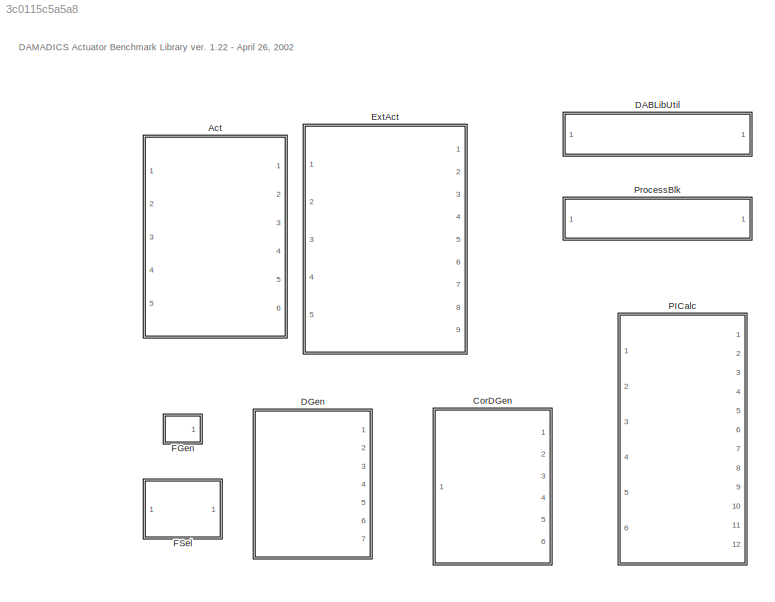
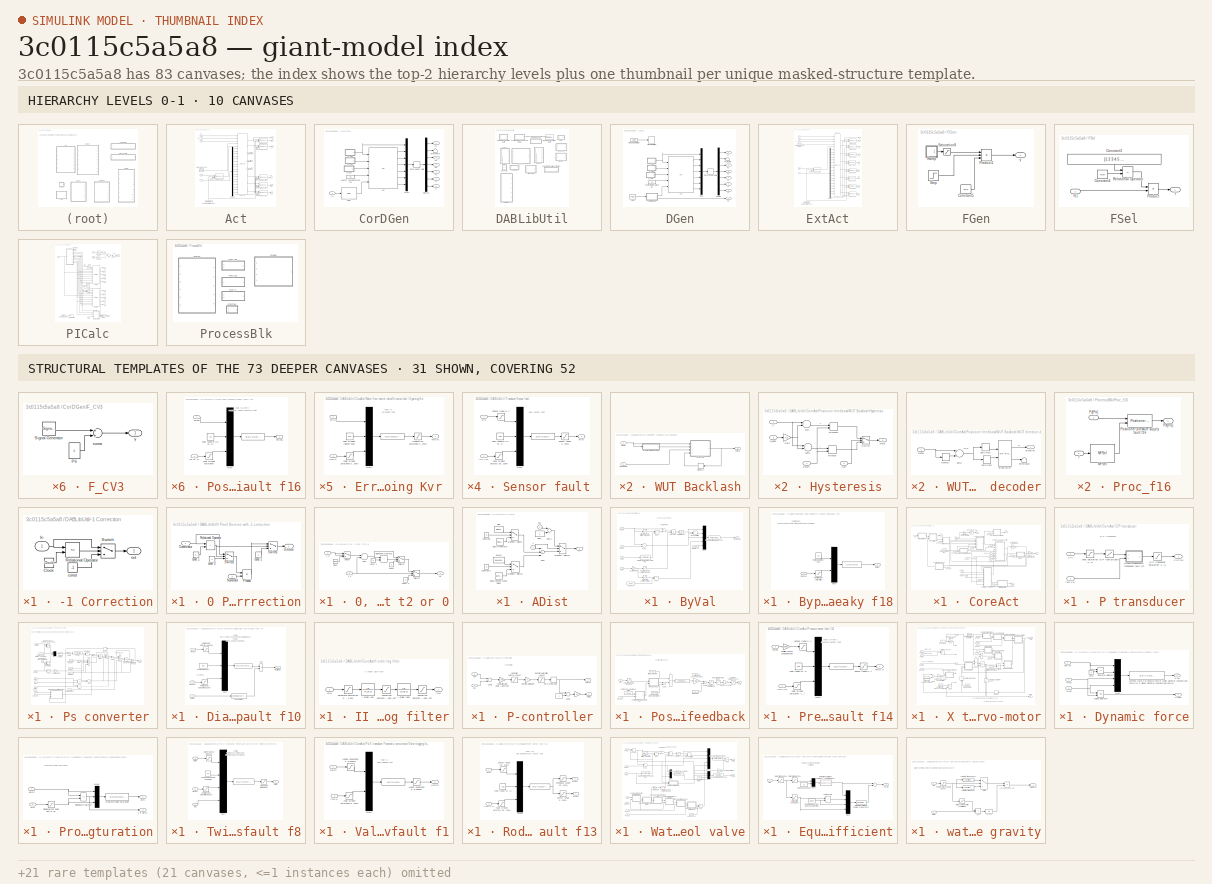
[diagram: thumbnail index - top-2 hierarchy levels (10 canvases) + 31 structural-template representatives of the remaining 73 canvases]
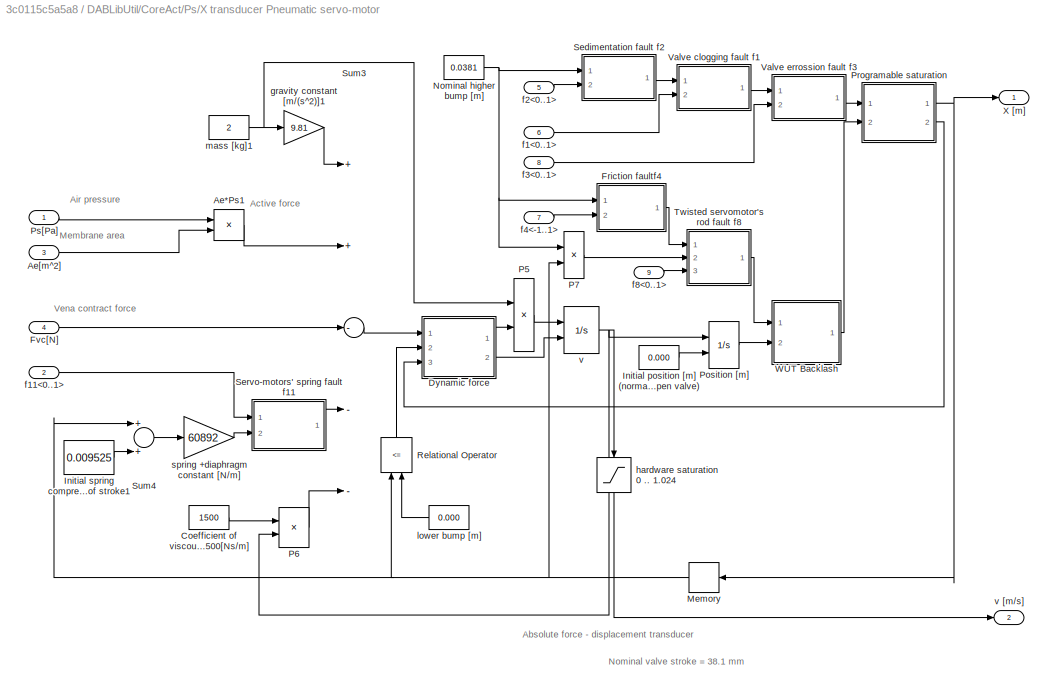
MODEL slx_3c0115c5a5a8
KIND library
CONFIG AbsTol = auto
CONFIG EnableMultiTasking = off
CONFIG FixedStep = auto
CONFIG MaxStep = auto
CONFIG MinStep = auto
CONFIG RelTol = 1e-3
CONFIG SampleTimeConstraint = Unconstrained
CONFIG Solver = VariableStepAuto
CONFIG SolverName = VariableStepAuto
CONFIG StartTime = 0.0
CONFIG StopTime = 10.0
BLOCK [SubSystem] Act
  Ports = [5, 6]
  RequestExecContextInheritance = off
  Variant = off
BLOCK [Constant] Act/Air supply pressure Pz in [Pa]
  Value = 600000
BLOCK [Inport] Act/CV
  IconDisplay = Port number
BLOCK [Reference] Act/CoreAct+  REF=DABLib/DABLibUtil/CoreAct+
  Ports = [23, 8]
  SourceBlock = DABLib/DABLibUtil/CoreAct+
  SourceType = Actuator
BLOCK [Demux] Act/Demux
  Outputs = 19
  Ports = [1, 19]
BLOCK [Constant] Act/Enable disturbances
  Value = abs(Dist-1)
BLOCK [Outport] Act/F
  IconDisplay = Port number
  InitialOutput = 0
BLOCK [Outport] Act/F'
  IconDisplay = Port number
  InitialOutput = 0
  Port = 6
BLOCK [Ground] Act/Ground
BLOCK [Ground] Act/Ground1
BLOCK [Ground] Act/Ground2
BLOCK [Ground] Act/Ground3
BLOCK [Ground] Act/Ground4
BLOCK [Inport] Act/P1
  IconDisplay = Port number
  Port = 2
BLOCK [Outport] Act/P1'
  IconDisplay = Port number
  InitialOutput = 0
  Port = 2
BLOCK [Inport] Act/P2
  IconDisplay = Port number
  Port = 3
BLOCK [Outport] Act/P2'
  IconDisplay = Port number
  InitialOutput = 0
  Port = 3
BLOCK [Inport] Act/T1
  IconDisplay = Port number
  Port = 4
BLOCK [Outport] Act/T1'
  IconDisplay = Port number
  InitialOutput = 0
  Port = 4
BLOCK [Terminator] Act/Terminator
BLOCK [Terminator] Act/Terminator1
BLOCK [Terminator] Act/Terminator2
BLOCK [Reference] Act/Tranducer CV  REF=DABLib/DABLibUtil/Tranducer
  Ports = [3, 1]
  SourceBlock = DABLib/DABLibUtil/Tranducer
  SourceType = Sensor
BLOCK [Reference] Act/Tranducer F  REF=DABLib/DABLibUtil/Tranducer
  Ports = [3, 1]
  SourceBlock = DABLib/DABLibUtil/Tranducer
  SourceType = Sensor
BLOCK [Reference] Act/Tranducer P1  REF=DABLib/DABLibUtil/Tranducer
  Ports = [3, 1]
  SourceBlock = DABLib/DABLibUtil/Tranducer
  SourceType = Sensor
BLOCK [Reference] Act/Tranducer P2  REF=DABLib/DABLibUtil/Tranducer
  Ports = [3, 1]
  SourceBlock = DABLib/DABLibUtil/Tranducer
  SourceType = Sensor
BLOCK [Reference] Act/Tranducer T1  REF=DABLib/DABLibUtil/Tranducer
  Ports = [3, 1]
  SourceBlock = DABLib/DABLibUtil/Tranducer
  SourceType = Sensor
BLOCK [Reference] Act/Tranducer X  REF=DABLib/DABLibUtil/Tranducer
  Ports = [3, 1]
  SourceBlock = DABLib/DABLibUtil/Tranducer
  SourceType = Sensor
BLOCK [Outport] Act/X'
  IconDisplay = Port number
  InitialOutput = 0
  Port = 5
BLOCK [Inport] Act/f
  IconDisplay = Port number
  Port = 5
BLOCK [SubSystem] CorDGen
  Ports = [1, 6]
  RequestExecContextInheritance = off
  Variant = off
BLOCK [Reference] CorDGen/Act  REF=DABLib/Act
  Ports = [5, 6]
  SourceBlock = DABLib/Act
  SourceType = Actuator
BLOCK [Outport] CorDGen/CV
  IconDisplay = Port number
  InitialOutput = 0
BLOCK [Demux] CorDGen/Demux
  Outputs = 7
  Ports = [1, 7]
BLOCK [Outport] CorDGen/F'
  IconDisplay = Port number
  InitialOutput = 0
  Port = 5
BLOCK [Reference] CorDGen/FSel  REF=DABLib/FSel
  Ports = [1, 1]
  SourceBlock = DABLib/FSel
  SourceType = Fault vector element attribution
BLOCK [SubSystem] CorDGen/F_CV3
  Ports = [0, 1]
  RequestExecContextInheritance = off
  Variant = off
BLOCK [Constant] CorDGen/F_CV3/P6
  Value = c
BLOCK [SignalGenerator] CorDGen/F_CV3/Signal Generator
  Amplitude = A
  Frequency = f
  Ports = [0, 1]
BLOCK [Sum] CorDGen/F_CV3/suma
  Ports = [2, 1]
BLOCK [Outport] CorDGen/F_CV3/y
  IconDisplay = Port number
  InitialOutput = 0
BLOCK [SubSystem] CorDGen/F_CV4
  Ports = [0, 1]
  RequestExecContextInheritance = off
  Variant = off
BLOCK [Constant] CorDGen/F_CV4/P6
  Value = c
BLOCK [SignalGenerator] CorDGen/F_CV4/Signal Generator
  Amplitude = A
  Frequency = f
  Ports = [0, 1]
BLOCK [Sum] CorDGen/F_CV4/suma
  Ports = [2, 1]
BLOCK [Outport] CorDGen/F_CV4/y
  IconDisplay = Port number
  InitialOutput = 0
BLOCK [SubSystem] CorDGen/F_CV5
  Ports = [0, 1]
  RequestExecContextInheritance = off
  Variant = off
BLOCK [Constant] CorDGen/F_CV5/P6
  Value = c
BLOCK [SignalGenerator] CorDGen/F_CV5/Signal Generator
  Amplitude = A
  Frequency = f
  Ports = [0, 1]
BLOCK [Sum] CorDGen/F_CV5/suma
  Ports = [2, 1]
BLOCK [Outport] CorDGen/F_CV5/y
  IconDisplay = Port number
  InitialOutput = 0
BLOCK [Mux] CorDGen/Mux1
  Inputs = 7
  Ports = [7, 1]
BLOCK [Outport] CorDGen/P1'
  IconDisplay = Port number
  InitialOutput = 0
  Port = 2
BLOCK [Outport] CorDGen/P2'
  IconDisplay = Port number
  InitialOutput = 0
  Port = 3
BLOCK [Outport] CorDGen/T1'
  IconDisplay = Port number
  InitialOutput = 0
  Port = 6
BLOCK [Terminator] CorDGen/Terminator
BLOCK [Constant] CorDGen/Water temperature [C] 
  Value = 43
BLOCK [Outport] CorDGen/X'
  IconDisplay = Port number
  InitialOutput = 0
  Port = 4
BLOCK [ZeroOrderHold] CorDGen/Zero-Order Hold
BLOCK [Inport] CorDGen/f(i)
  IconDisplay = Port number
BLOCK [SubSystem] DABLibUtil
  Ports = []
  RequestExecContextInheritance = off
  Variant = off
BLOCK [SubSystem] DABLibUtil/-1 Correction
  Ports = [1, 1]
  RequestExecContextInheritance = off
  Variant = off
BLOCK [Clock] DABLibUtil/-1 Correction/Clock
BLOCK [Inport] DABLibUtil/-1 Correction/In
  IconDisplay = Port number
BLOCK [RelationalOperator] DABLibUtil/-1 Correction/Relational Operator
  Operator = <=
  Ports = [2, 1]
BLOCK [Switch] DABLibUtil/-1 Correction/Switch
  Threshold = 0.5
BLOCK [Constant] DABLibUtil/-1 Correction/const  
  Value = -1
BLOCK [Outport] DABLibUtil/-1 Correction/out
  IconDisplay = Port number
  InitialOutput = 0
BLOCK [SubSystem] DABLibUtil/0 Proof Division with -1 correction
  Ports = [2, 1]
  RequestExecContextInheritance = off
  Variant = off
BLOCK [Inport] DABLibUtil/0 Proof Division with -1 correction/Denominator
  IconDisplay = Port number
BLOCK [Outport] DABLibUtil/0 Proof Division with -1 correction/Division
  IconDisplay = Port number
  InitialOutput = 0
BLOCK [Inport] DABLibUtil/0 Proof Division with -1 correction/Numerator
  IconDisplay = Port number
  Port = 2
BLOCK [Product] DABLibUtil/0 Proof Division with -1 correction/Product
  Inputs = /*
  Ports = [2, 1]
BLOCK [RelationalOperator] DABLibUtil/0 Proof Division with -1 correction/Relational Operator
  Operator = >
  Ports = [2, 1]
BLOCK [Switch] DABLibUtil/0 Proof Division with -1 correction/Switch1
  Threshold = 1
BLOCK [Switch] DABLibUtil/0 Proof Division with -1 correction/Switch2
  Threshold = 1
BLOCK [Constant] DABLibUtil/0 Proof Division with -1 correction/const  1
  Value = 0
BLOCK [Constant] DABLibUtil/0 Proof Division with -1 correction/const  2
  Value = -1
BLOCK [Constant] DABLibUtil/0 Proof Division with -1 correction/const  3
  Value = -1
BLOCK [SubSystem] DABLibUtil/0, t-t1>0, t2 or 0
  Ports = [2, 1]
  RequestExecContextInheritance = off
  Variant = off
BLOCK [Clock] DABLibUtil/0, t-t1>0, t2 or 0/Clock
BLOCK [RelationalOperator] DABLibUtil/0, t-t1>0, t2 or 0/Relational Operator
  Operator = >
  Ports = [2, 1]
BLOCK [Sum] DABLibUtil/0, t-t1>0, t2 or 0/Sum
  Inputs = +-
  Ports = [2, 1]
BLOCK [Switch] DABLibUtil/0, t-t1>0, t2 or 0/Switch
  Threshold = -0.5
BLOCK [Switch] DABLibUtil/0, t-t1>0, t2 or 0/Switch1
  Threshold = 1
BLOCK [Switch] DABLibUtil/0, t-t1>0, t2 or 0/Switch2
  Threshold = -0.5
BLOCK [Constant] DABLibUtil/0, t-t1>0, t2 or 0/const  
  Value = 0
BLOCK [Constant] DABLibUtil/0, t-t1>0, t2 or 0/const  1
  Value = 0
BLOCK [Constant] DABLibUtil/0, t-t1>0, t2 or 0/const  2
  Value = 0
BLOCK [Outport] DABLibUtil/0, t-t1>0, t2 or 0/dt
  IconDisplay = Port number
  InitialOutput = 0
BLOCK [Inport] DABLibUtil/0, t-t1>0, t2 or 0/t_1
  IconDisplay = Port number
  Port = 2
BLOCK [Inport] DABLibUtil/0, t-t1>0, t2 or 0/t_2
  IconDisplay = Port number
BLOCK [SubSystem] DABLibUtil/ADist
  Ports = [2, 1]
  RequestExecContextInheritance = off
  Variant = off
BLOCK [Constant] DABLibUtil/ADist/BLWN
  Value = BLWN+1
BLOCK [Reference] DABLibUtil/ADist/Band-Limited White Noise  REF=simulink/Sources/Band-Limited
White Noise
  Ports = [0, 1]
  SourceBlock = simulink/Sources/Band-Limited\nWhite Noise
  SourceType = Continuous White Noise.
BLOCK [Constant] DABLibUtil/ADist/Constant
  Value = 0
BLOCK [Constant] DABLibUtil/ADist/Constant1
  Value = 0
BLOCK [Inport] DABLibUtil/ADist/EN
  IconDisplay = Port number
  Port = 2
BLOCK [MultiPortSwitch] DABLibUtil/ADist/Multiport Switch
  Inputs = 2
  Ports = [3, 1]
BLOCK [MultiPortSwitch] DABLibUtil/ADist/Multiport Switch1
  Inputs = 2
  Ports = [3, 1]
BLOCK [MultiPortSwitch] DABLibUtil/ADist/Multiport Switch2
  Inputs = 2
  Ports = [3, 1]
BLOCK [Constant] DABLibUtil/ADist/Sine
  Value = Sine+1
BLOCK [Constant] DABLibUtil/ADist/Sine1
BLOCK [SignalGenerator] DABLibUtil/ADist/Sinus Generator
  Amplitude = 0.0025
  Frequency = 50
  Ports = [0, 1]
BLOCK [Sum] DABLibUtil/ADist/Sum
  Inputs = +++
  Ports = [3, 1]
BLOCK [Sum] DABLibUtil/ADist/Sum1
  Ports = [2, 1]
BLOCK [Inport] DABLibUtil/ADist/x
  IconDisplay = Port number
BLOCK [Outport] DABLibUtil/ADist/y
  IconDisplay = Port number
  InitialOutput = 0
BLOCK [SubSystem] DABLibUtil/ByVal
  Ports = [4, 1]
  RequestExecContextInheritance = off
  Variant = off
BLOCK [Lookup] DABLibUtil/ByVal/Critical pressure ratio for the water rc=f(pv[Pa]) 
  InputValues = [0  1723763 3447527 6895055 13790111 17237639 20685166]
  Table = [0.94 0.87 0.84 0.79 0.75 0.725 0.685]
BLOCK [Outport] DABLibUtil/ByVal/Fv3[m^3//h]
  IconDisplay = Port number
BLOCK [Product] DABLibUtil/ByVal/Km(P1-rc*pv)
  Ports = [2, 1]
BLOCK [Product] DABLibUtil/ByVal/Kv(X)
  Ports = [2, 1]
BLOCK [Mux] DABLibUtil/ByVal/Mux3
  Inputs = 5
  Ports = [5, 1]
BLOCK [Sum] DABLibUtil/ByVal/P1-P2
  Inputs = +-
  Ports = [2, 1]
BLOCK [Sum] DABLibUtil/ByVal/P1-rc*pv [Pa]
  Inputs = +-
  Ports = [2, 1]
BLOCK [Inport] DABLibUtil/ByVal/P1[Pa]
  IconDisplay = Port number
  Port = 2
BLOCK [Inport] DABLibUtil/ByVal/P2[Pa]
  IconDisplay = Port number
  Port = 3
BLOCK [RelationalOperator] DABLibUtil/ByVal/Pressure limiter
  Operator = >
  Ports = [2, 1]
BLOCK [Lookup] DABLibUtil/ByVal/Rated flow coefficient Kv[%]=f(X[%])
  InputValues = [0 10 20 30 40 50 60 70 80 90 100]
  Table = [1.0 0.9 0.8 0.7 0.6 0.5 0.4 0.3 0.2 0.1 0.0]
BLOCK [Saturate] DABLibUtil/ByVal/Saturation >0
  InputPortMap = u0
  LowerLimit = 0
  Ports = [1, 1]
  UpperLimit = inf
BLOCK [Gain] DABLibUtil/ByVal/Scalling factor
  Gain = 100
BLOCK [Fcn] DABLibUtil/ByVal/Square root flow law Qv[m^3//h]
  Expr = u(4)*100*sqrt(abs((u(2)*u(3)+!u(2)*u(1))*0.000001/(u(5))))
BLOCK [Inport] DABLibUtil/ByVal/T1[C]
  IconDisplay = Port number
  Port = 4
BLOCK [Constant] DABLibUtil/ByVal/Valve Kv
  Value = 19.75
BLOCK [Lookup] DABLibUtil/ByVal/Valve recovery coefficient Km=f(X)
  InputValues = [0 10 20 30 40 50 60 70 80 90 100]
  Table = [0.45  0.5 0.555 0.61 0.67 0.725 0.785 0.85 0.90 0.95 1.00]
BLOCK [Fcn] DABLibUtil/ByVal/Water vapor pv pressure in [Pa]
  Expr = exp(ln(10)*((-2141/(u+273.15)+10.7167)))
BLOCK [Inport] DABLibUtil/ByVal/Xb[%]
  IconDisplay = Port number
BLOCK [Product] DABLibUtil/ByVal/rc*pv
  Ports = [2, 1]
BLOCK [Constant] DABLibUtil/ByVal/ro [kg//m^3]
  Value = 1000
BLOCK [SubSystem] DABLibUtil/Bypass valve opened or bypass valve leaky f18
  Ports = [1, 1]
  RequestExecContextInheritance = off
  Variant = off
BLOCK [Fcn] DABLibUtil/Bypass valve opened or bypass valve leaky f18/ 
  Expr = (1-u(1)*u(2))
BLOCK [Constant] DABLibUtil/Bypass valve opened or bypass valve leaky f18/Fault range in [%] <0..1>
  Value = 1.0
BLOCK [Saturate] DABLibUtil/Bypass valve opened or bypass valve leaky f18/Fault streght saturation 
  InputPortMap = u0
  LowerLimit = 0
  Ports = [1, 1]
  UpperLimit = 1.0
BLOCK [Mux] DABLibUtil/Bypass valve opened or bypass valve leaky f18/Mux4
  Inputs = 2
  Ports = [2, 1]
BLOCK [Outport] DABLibUtil/Bypass valve opened or bypass valve leaky f18/Xb[%]
  IconDisplay = Port number
BLOCK [Inport] DABLibUtil/Bypass valve opened or bypass valve leaky f18/f18<0,1>
  IconDisplay = Port number
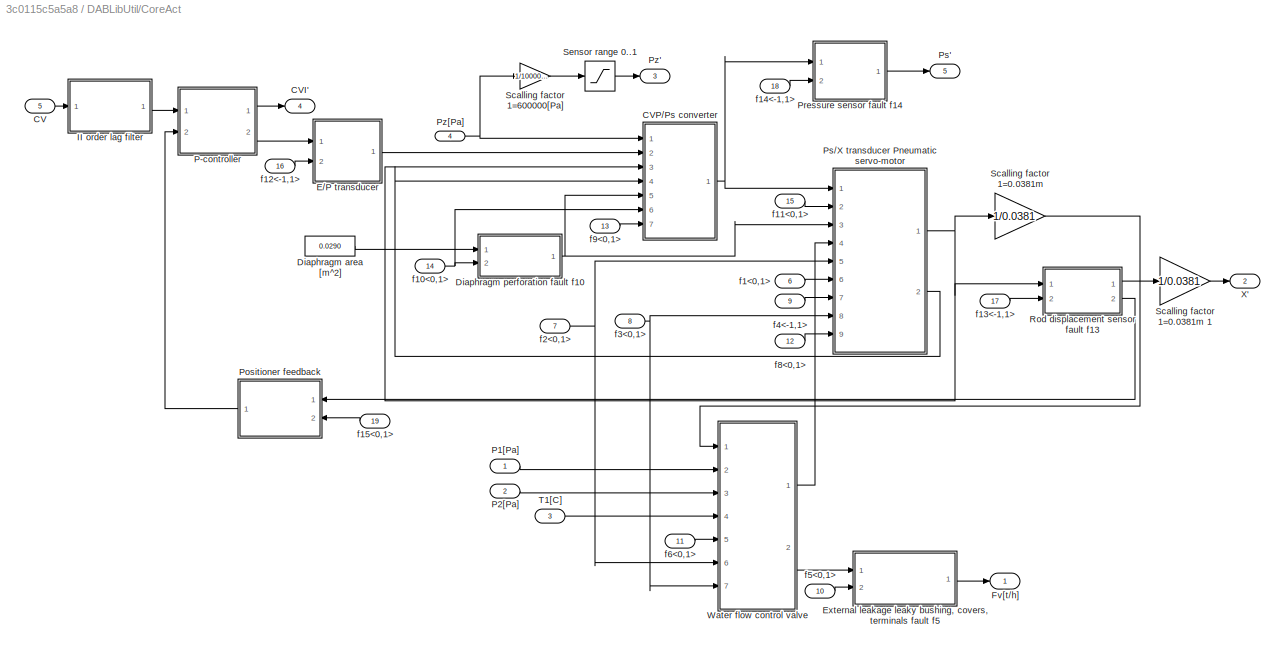
BLOCK [SubSystem] DABLibUtil/CoreAct
  Ports = [19, 5]
  RequestExecContextInheritance = off
  Variant = off
BLOCK [SubSystem] DABLibUtil/CoreAct+
  Ports = [23, 8]
  RequestExecContextInheritance = off
  Variant = off
BLOCK [Reference] DABLibUtil/CoreAct+/ByVal  REF=DABLib/DABLibUtil/ByVal
  Ports = [4, 1]
  SourceBlock = DABLib/DABLibUtil/ByVal
  SourceType = Valve
BLOCK [Reference] DABLibUtil/CoreAct+/Bypass valve opened or bypass valve leaky f18  REF=DABLib/DABLibUtil/Bypass valve opened 
or bypass valve leaky
 f18
  Ports = [1, 1]
  SourceBlock = DABLib/DABLibUtil/Bypass valve opened \nor bypass valve leaky\n f18
  SourceType = SubSystem
BLOCK [Inport] DABLibUtil/CoreAct+/CV
  IconDisplay = Port number
  Port = 5
BLOCK [Outport] DABLibUtil/CoreAct+/CVI'
  IconDisplay = Port number
  InitialOutput = 0
  Port = 4
BLOCK [Reference] DABLibUtil/CoreAct+/CoreAct  REF=DABLib/DABLibUtil/CoreAct
  Ports = [19, 5]
  SourceBlock = DABLib/DABLibUtil/CoreAct
  SourceType = Actuator
BLOCK [Outport] DABLibUtil/CoreAct+/F[t//h]
  IconDisplay = Port number
  InitialOutput = 0
BLOCK [Reference] DABLibUtil/CoreAct+/Medium evaporation fault f7   REF=DABLib/DABLibUtil/Medium evaporation
fault f7
  Ports = [2, 1]
  SourceBlock = DABLib/DABLibUtil/Medium evaporation\nfault f7
  SourceType = SubSystem
BLOCK [Inport] DABLibUtil/CoreAct+/P1[Pa]
  IconDisplay = Port number
BLOCK [Outport] DABLibUtil/CoreAct+/P1f
  IconDisplay = Port number
  InitialOutput = 0
  Port = 6
BLOCK [Inport] DABLibUtil/CoreAct+/P2[Pa]
  IconDisplay = Port number
  Port = 2
BLOCK [Outport] DABLibUtil/CoreAct+/P2f
  IconDisplay = Port number
  InitialOutput = 0
  Port = 7
BLOCK [Reference] DABLibUtil/CoreAct+/Positioner pressure supply fault f16  REF=DABLib/DABLibUtil/Positioner pressure
 supply fault f16
  Ports = [2, 1]
  SourceBlock = DABLib/DABLibUtil/Positioner pressure\n supply fault f16
  SourceType = SubSystem
BLOCK [Outport] DABLibUtil/CoreAct+/Ps'
  IconDisplay = Port number
  InitialOutput = 0
  Port = 5
BLOCK [Outport] DABLibUtil/CoreAct+/Pz'
  IconDisplay = Port number
  InitialOutput = 0
  Port = 3
BLOCK [Inport] DABLibUtil/CoreAct+/Pz[Pa]
  IconDisplay = Port number
  Port = 4
BLOCK [Sum] DABLibUtil/CoreAct+/Sum2
  Ports = [2, 1]
BLOCK [Inport] DABLibUtil/CoreAct+/T1[C]
  IconDisplay = Port number
  Port = 3
BLOCK [Outport] DABLibUtil/CoreAct+/T1f
  IconDisplay = Port number
  InitialOutput = 0
  Port = 8
BLOCK [SubSystem] DABLibUtil/CoreAct+/Unexpected pressure change across the valve f17
  Ports = [3, 2]
  RequestExecContextInheritance = off
  Variant = off
BLOCK [Fcn] DABLibUtil/CoreAct+/Unexpected pressure change across the valve f17/ 
  Expr = u(4)*(1-u(3)*abs(u(2)))
BLOCK [Fcn] DABLibUtil/CoreAct+/Unexpected pressure change across the valve f17/ 1
  Expr = u(1)*(1-!u(3)*abs(u(2)))
BLOCK [Saturate] DABLibUtil/CoreAct+/Unexpected pressure change across the valve f17/0..4MPa 
  InputPortMap = u0
  LowerLimit = 0
  Ports = [1, 1]
  UpperLimit = 4000000
BLOCK [Saturate] DABLibUtil/CoreAct+/Unexpected pressure change across the valve f17/0..4MPa 1
  InputPortMap = u0
  LowerLimit = 0
  Ports = [1, 1]
  UpperLimit = 4000000
BLOCK [Constant] DABLibUtil/CoreAct+/Unexpected pressure change across the valve f17/Environment pressure [kPa]3
  Value = 0
BLOCK [Saturate] DABLibUtil/CoreAct+/Unexpected pressure change across the valve f17/Fault streght saturation 
  InputPortMap = u0
  LowerLimit = -1.0
  Ports = [1, 1]
  UpperLimit = 1.0
BLOCK [Mux] DABLibUtil/CoreAct+/Unexpected pressure change across the valve f17/Mux4
  Ports = [4, 1]
BLOCK [Inport] DABLibUtil/CoreAct+/Unexpected pressure change across the valve f17/P1[Pa]
  IconDisplay = Port number
BLOCK [Outport] DABLibUtil/CoreAct+/Unexpected pressure change across the valve f17/P1f[Pa]
  IconDisplay = Port number
BLOCK [Inport] DABLibUtil/CoreAct+/Unexpected pressure change across the valve f17/P2[Pa]
  IconDisplay = Port number
  Port = 2
BLOCK [Outport] DABLibUtil/CoreAct+/Unexpected pressure change across the valve f17/P2f[Pa]
  IconDisplay = Port number
  Port = 2
BLOCK [RelationalOperator] DABLibUtil/CoreAct+/Unexpected pressure change across the valve f17/Relational Operator1
  Operator = >
  Ports = [2, 1]
BLOCK [Inport] DABLibUtil/CoreAct+/Unexpected pressure change across the valve f17/f17<-1,1>
  IconDisplay = Port number
  Port = 3
BLOCK [Outport] DABLibUtil/CoreAct+/X'
  IconDisplay = Port number
  InitialOutput = 0
  Port = 2
BLOCK [Inport] DABLibUtil/CoreAct+/f10<0,1>
  IconDisplay = Port number
  Port = 15
BLOCK [Inport] DABLibUtil/CoreAct+/f11<0,1>
  IconDisplay = Port number
  Port = 16
BLOCK [Inport] DABLibUtil/CoreAct+/f12<-1,1>
  IconDisplay = Port number
  Port = 17
BLOCK [Inport] DABLibUtil/CoreAct+/f13<-1,1>
  IconDisplay = Port number
  Port = 18
BLOCK [Inport] DABLibUtil/CoreAct+/f14<-1,1>
  IconDisplay = Port number
  Port = 19
BLOCK [Inport] DABLibUtil/CoreAct+/f15<0,1>
  IconDisplay = Port number
  Port = 20
BLOCK [Inport] DABLibUtil/CoreAct+/f16<0,1>
  IconDisplay = Port number
  Port = 21
BLOCK [Inport] DABLibUtil/CoreAct+/f17<-1,1>
  IconDisplay = Port number
  Port = 22
BLOCK [Inport] DABLibUtil/CoreAct+/f18<0,1>
  IconDisplay = Port number
  Port = 23
BLOCK [Inport] DABLibUtil/CoreAct+/f1<0,1>
  IconDisplay = Port number
  Port = 6
BLOCK [Inport] DABLibUtil/CoreAct+/f2<0,1>
  IconDisplay = Port number
  Port = 7
BLOCK [Inport] DABLibUtil/CoreAct+/f3<0,1>
  IconDisplay = Port number
  Port = 8
BLOCK [Inport] DABLibUtil/CoreAct+/f4<-1,1>
  IconDisplay = Port number
  Port = 9
BLOCK [Inport] DABLibUtil/CoreAct+/f5<0,1>
  IconDisplay = Port number
  Port = 10
BLOCK [Inport] DABLibUtil/CoreAct+/f6<0,1>
  IconDisplay = Port number
  Port = 11
BLOCK [Inport] DABLibUtil/CoreAct+/f7<0,1>
  IconDisplay = Port number
  Port = 12
BLOCK [Inport] DABLibUtil/CoreAct+/f8<0,1>
  IconDisplay = Port number
  Port = 13
BLOCK [Inport] DABLibUtil/CoreAct+/f9<0,1>
  IconDisplay = Port number
  Port = 14
BLOCK [SubSystem] DABLibUtil/CoreAct/  E//P transducer
  Ports = [2, 1]
  RequestExecContextInheritance = off
  Variant = off
BLOCK [Inport] DABLibUtil/CoreAct/  E//P transducer/CVI
  IconDisplay = Port number
BLOCK [Outport] DABLibUtil/CoreAct/  E//P transducer/CVP[%]
  IconDisplay = Port number
BLOCK [Lookup] DABLibUtil/CoreAct/  E//P transducer/E//P look-up table
  InputValues = [-1.00, -0.94, -0.54, 0.46, 0.86, 1.00]
  Table = [-0.55 -0.55 -0.02, 0.02, 1.00 1.00]
BLOCK [Saturate] DABLibUtil/CoreAct/  E//P transducer/E//P transducer saturation -1..+1
  InputPortMap = u0
  LowerLimit = -1.0
  Ports = [1, 1]
  UpperLimit = 1.0
BLOCK [SubSystem] DABLibUtil/CoreAct/  E//P transducer/Electro-pneumatic transducer  fault f12
  Ports = [2, 1]
  RequestExecContextInheritance = off
  Variant = off
BLOCK [Fcn] DABLibUtil/CoreAct/  E//P transducer/Electro-pneumatic transducer  fault f12/ 
  Expr = u(1)*(1-u(2)*u(3))
BLOCK [Constant] DABLibUtil/CoreAct/  E//P transducer/Electro-pneumatic transducer  fault f12/Fault range <0..1>
  Value = 1.0
BLOCK [Saturate] DABLibUtil/CoreAct/  E//P transducer/Electro-pneumatic transducer  fault f12/Fault streght saturation -100..100% 
  InputPortMap = u0
  LowerLimit = -1.0
  Ports = [1, 1]
  UpperLimit = 1.0
BLOCK [Inport] DABLibUtil/CoreAct/  E//P transducer/Electro-pneumatic transducer  fault f12/I[%]
  IconDisplay = Port number
BLOCK [Saturate] DABLibUtil/CoreAct/  E//P transducer/Electro-pneumatic transducer  fault f12/If saturation -100..100% 
  InputPortMap = u0
  LowerLimit = -1.0
  Ports = [1, 1]
  UpperLimit = 1.0
BLOCK [Outport] DABLibUtil/CoreAct/  E//P transducer/Electro-pneumatic transducer  fault f12/If[%]
  IconDisplay = Port number
BLOCK [Mux] DABLibUtil/CoreAct/  E//P transducer/Electro-pneumatic transducer  fault f12/Mux4
  Inputs = 3
  Ports = [3, 1]
BLOCK [Inport] DABLibUtil/CoreAct/  E//P transducer/Electro-pneumatic transducer  fault f12/f12<-1,1>]
  IconDisplay = Port number
  Port = 2
BLOCK [Saturate] DABLibUtil/CoreAct/  E//P transducer/Input saturation -1..+1
  InputPortMap = u0
  LowerLimit = -1.0
  Ports = [1, 1]
  UpperLimit = 1.0
BLOCK [Inport] DABLibUtil/CoreAct/  E//P transducer/f12<-1,1>
  IconDisplay = Port number
  Port = 2
BLOCK [Inport] DABLibUtil/CoreAct/CV
  IconDisplay = Port number
  Port = 5
BLOCK [Outport] DABLibUtil/CoreAct/CVI'
  IconDisplay = Port number
  InitialOutput = 0
  Port = 4
BLOCK [SubSystem] DABLibUtil/CoreAct/CVP//Ps converter
  Ports = [7, 1]
  RequestExecContextInheritance = off
  Variant = off
BLOCK [Integrator] DABLibUtil/CoreAct/CVP//Ps converter/Absolute Air pressure
  InitialConditionSource = external
  LimitOutput = on
  LowerSaturationLimit = 0
  Ports = [2, 1]
  UpperSaturationLimit = 700000
BLOCK [Inport] DABLibUtil/CoreAct/CVP//Ps converter/Ae [m^2]
  IconDisplay = Port number
  Port = 5
BLOCK [Constant] DABLibUtil/CoreAct/CVP//Ps converter/Air constant [J//kg//K]
  Value = 287
BLOCK [Inport] DABLibUtil/CoreAct/CVP//Ps converter/CVP[%]
  IconDisplay = Port number
  Port = 2
BLOCK [SubSystem] DABLibUtil/CoreAct/CVP//Ps converter/Diaphragm perforation fault f10
  Ports = [3, 1]
  RequestExecContextInheritance = off
  Variant = off
BLOCK [Fcn] DABLibUtil/CoreAct/CVP//Ps converter/Diaphragm perforation fault f10/ 
  Expr = u(1)*u(2)+u(2)*u(3)
BLOCK [Constant] DABLibUtil/CoreAct/CVP//Ps converter/Diaphragm perforation fault f10/Fault range <0..1>
  Value = 0.1
BLOCK [Saturate] DABLibUtil/CoreAct/CVP//Ps converter/Diaphragm perforation fault f10/Fault streght saturation 0..100% 
  InputPortMap = u0
  LowerLimit = 0
  Ports = [1, 1]
  UpperLimit = 1
BLOCK [Saturate] DABLibUtil/CoreAct/CVP//Ps converter/Diaphragm perforation fault f10/Fault streght saturation 0..100% 1
  InputPortMap = u0
  LowerLimit = 0
  Ports = [1, 1]
  UpperLimit = 1
BLOCK [Mux] DABLibUtil/CoreAct/CVP//Ps converter/Diaphragm perforation fault f10/Mux4
  Inputs = 3
  Ports = [3, 1]
BLOCK [Product] DABLibUtil/CoreAct/CVP//Ps converter/Diaphragm perforation fault f10/P13
  Ports = [2, 1]
BLOCK [Inport] DABLibUtil/CoreAct/CVP//Ps converter/Diaphragm perforation fault f10/Ps[Pa]
  IconDisplay = Port number
  Port = 3
BLOCK [Inport] DABLibUtil/CoreAct/CVP//Ps converter/Diaphragm perforation fault f10/f10<0,1>
  IconDisplay = Port number
  Port = 2
BLOCK [Inport] DABLibUtil/CoreAct/CVP//Ps converter/Diaphragm perforation fault f10/f9<0,1>
  IconDisplay = Port number
BLOCK [Fcn] DABLibUtil/CoreAct/CVP//Ps converter/Diaphragm perforation fault f10/leakage flow
  Expr = sqrt(abs(u))*2e-6
BLOCK [Outport] DABLibUtil/CoreAct/CVP//Ps converter/Diaphragm perforation fault f10/mdotl[kg//s]
  IconDisplay = Port number
BLOCK [Constant] DABLibUtil/CoreAct/CVP//Ps converter/Environment pressure [kPa]3
  Value = 0
BLOCK [Constant] DABLibUtil/CoreAct/CVP//Ps converter/Environment relative pressure [Pa]
  Value = 0
BLOCK [Fcn] DABLibUtil/CoreAct/CVP//Ps converter/Fcn2
  Expr = abs(u)
BLOCK [Memory] DABLibUtil/CoreAct/CVP//Ps converter/Memory
BLOCK [Switch] DABLibUtil/CoreAct/CVP//Ps converter/Minimal positioner supply pressure =120000Pa
  Threshold = 120000
BLOCK [Mux] DABLibUtil/CoreAct/CVP//Ps converter/Mux2
  Inputs = 3
  Ports = [3, 1]
BLOCK [Product] DABLibUtil/CoreAct/CVP//Ps converter/P11
  Inputs = //**
  Ports = [4, 1]
BLOCK [Product] DABLibUtil/CoreAct/CVP//Ps converter/P12
  Inputs = */*
  Ports = [3, 1]
BLOCK [Product] DABLibUtil/CoreAct/CVP//Ps converter/P6
  Ports = [2, 1]
BLOCK [Product] DABLibUtil/CoreAct/CVP//Ps converter/P7
  Inputs = ***/
  Ports = [4, 1]
BLOCK [Product] DABLibUtil/CoreAct/CVP//Ps converter/P8
  Ports = [2, 1]
BLOCK [Constant] DABLibUtil/CoreAct/CVP//Ps converter/Polytropic index
  Value = 1.0
BLOCK [Outport] DABLibUtil/CoreAct/CVP//Ps converter/Ps[Pa]
  IconDisplay = Port number
BLOCK [Inport] DABLibUtil/CoreAct/CVP//Ps converter/Pzf[Pa]
  IconDisplay = Port number
BLOCK [RelationalOperator] DABLibUtil/CoreAct/CVP//Ps converter/Relational Operator1
  Operator = <
  Ports = [2, 1]
BLOCK [Sum] DABLibUtil/CoreAct/CVP//Ps converter/Relative Air pressure
  Inputs = +-
  Ports = [2, 1]
BLOCK [Gain] DABLibUtil/CoreAct/CVP//Ps converter/Scalling factor
  Gain = 2.5e-6
BLOCK [Sum] DABLibUtil/CoreAct/CVP//Ps converter/Sum
  Ports = [2, 1]
BLOCK [Sum] DABLibUtil/CoreAct/CVP//Ps converter/Sum1
  Inputs = +-
  Ports = [2, 1]
BLOCK [Constant] DABLibUtil/CoreAct/CVP//Ps converter/To [K]
  Value = 293
BLOCK [Inport] DABLibUtil/CoreAct/CVP//Ps converter/V[m//s]
  IconDisplay = Port number
  Port = 4
BLOCK [Constant] DABLibUtil/CoreAct/CVP//Ps converter/Vo [m^3]
  Value = 0.0055
BLOCK [Inport] DABLibUtil/CoreAct/CVP//Ps converter/X [m]
  IconDisplay = Port number
  Port = 3
BLOCK [Sum] DABLibUtil/CoreAct/CVP//Ps converter/delta p 
  Inputs = -+
  Ports = [2, 1]
BLOCK [Inport] DABLibUtil/CoreAct/CVP//Ps converter/f10<0,1>
  IconDisplay = Port number
  Port = 6
BLOCK [Inport] DABLibUtil/CoreAct/CVP//Ps converter/f9<0,1>
  IconDisplay = Port number
  Port = 7
BLOCK [Fcn] DABLibUtil/CoreAct/CVP//Ps converter/flow law
  Expr = sgn(u)*sqrt(abs(u))
BLOCK [Integrator] DABLibUtil/CoreAct/CVP//Ps converter/m[kg] 
  InitialCondition = 2.41e-3
  InitialConditionSource = external
  LimitOutput = on
  LowerSaturationLimit = 0
  Ports = [2, 1]
  UpperSaturationLimit = 0.1
BLOCK [Product] DABLibUtil/CoreAct/CVP//Ps converter/mdot [kg//s]
  Ports = [2, 1]
BLOCK [Constant] DABLibUtil/CoreAct/CVP//Ps converter/patm [Pa]
  Value = 101325
BLOCK [Fcn] DABLibUtil/CoreAct/CVP//Ps converter/u(3)*u(1)+ !u(3)*u(2)
  Expr = u(3)*u(1)+!u(3)*u(2)
BLOCK [Sum] DABLibUtil/CoreAct/CVP//Ps converter/xxx
  Inputs = +-
  Ports = [2, 1]
BLOCK [Constant] DABLibUtil/CoreAct/Diaphragm area [m^2]
  Value = 0.0290
BLOCK [SubSystem] DABLibUtil/CoreAct/Diaphragm perforation fault f10
  Ports = [2, 1]
  RequestExecContextInheritance = off
  Variant = off
BLOCK [Fcn] DABLibUtil/CoreAct/Diaphragm perforation fault f10/ 
  Expr = u(1)*(1-u(2)*u(3))
BLOCK [Inport] DABLibUtil/CoreAct/Diaphragm perforation fault f10/Ae[m^2]
  IconDisplay = Port number
BLOCK [Outport] DABLibUtil/CoreAct/Diaphragm perforation fault f10/Aef[m^2]
  IconDisplay = Port number
BLOCK [Constant] DABLibUtil/CoreAct/Diaphragm perforation fault f10/Fault range in [%] <0..1>
  Value = 1.0
BLOCK [Saturate] DABLibUtil/CoreAct/Diaphragm perforation fault f10/Fault streght saturation 
  InputPortMap = u0
  LowerLimit = 0
  Ports = [1, 1]
  UpperLimit = 1.0
BLOCK [Mux] DABLibUtil/CoreAct/Diaphragm perforation fault f10/Mux4
  Inputs = 3
  Ports = [3, 1]
BLOCK [Inport] DABLibUtil/CoreAct/Diaphragm perforation fault f10/f10 <0..1>
  IconDisplay = Port number
  Port = 2
BLOCK [SubSystem] DABLibUtil/CoreAct/External leakage leaky bushing, covers, terminals fault  f5
  Ports = [2, 1]
  RequestExecContextInheritance = off
  Variant = off
BLOCK [Fcn] DABLibUtil/CoreAct/External leakage leaky bushing, covers, terminals fault  f5/ 
  Expr = u(1)*(1-u(2)*u(3))
BLOCK [Constant] DABLibUtil/CoreAct/External leakage leaky bushing, covers, terminals fault  f5/Fault range in [%] <0..1>
  Value = 0.05
BLOCK [Saturate] DABLibUtil/CoreAct/External leakage leaky bushing, covers, terminals fault  f5/Fault streght saturation 0..100% 
  InputPortMap = u0
  LowerLimit = 0.0
  Ports = [1, 1]
  UpperLimit = 1.0
BLOCK [Outport] DABLibUtil/CoreAct/External leakage leaky bushing, covers, terminals fault  f5/Fv(f5)[t//h]
  IconDisplay = Port number
BLOCK [Inport] DABLibUtil/CoreAct/External leakage leaky bushing, covers, terminals fault  f5/Fv[t//h]
  IconDisplay = Port number
BLOCK [Mux] DABLibUtil/CoreAct/External leakage leaky bushing, covers, terminals fault  f5/Mux4
  Inputs = 3
  Ports = [3, 1]
BLOCK [Inport] DABLibUtil/CoreAct/External leakage leaky bushing, covers, terminals fault  f5/f5<0,1>]
  IconDisplay = Port number
  Port = 2
BLOCK [Outport] DABLibUtil/CoreAct/Fv[t//h]
  IconDisplay = Port number
  InitialOutput = 0
BLOCK [SubSystem] DABLibUtil/CoreAct/II order lag filter
  Ports = [1, 1]
  RequestExecContextInheritance = off
  Variant = off
BLOCK [TransferFcn] DABLibUtil/CoreAct/II order lag filter/I order lag
  Denominator = [0.30 1]
BLOCK [TransferFcn] DABLibUtil/CoreAct/II order lag filter/I order lag1
  Denominator = [0.30 1]
BLOCK [Saturate] DABLibUtil/CoreAct/II order lag filter/hardware saturation 0 .. 1.024
  InputPortMap = u0
  LowerLimit = 0
  Ports = [1, 1]
  UpperLimit = 1.024
BLOCK [Saturate] DABLibUtil/CoreAct/II order lag filter/numerical saturation -128..127 
  InputPortMap = u0
  LowerLimit = -128
  Ports = [1, 1]
  UpperLimit = 127
BLOCK [Inport] DABLibUtil/CoreAct/II order lag filter/u[%]
  IconDisplay = Port number
BLOCK [Outport] DABLibUtil/CoreAct/II order lag filter/y[%]
  IconDisplay = Port number
BLOCK [SubSystem] DABLibUtil/CoreAct/P-controller
  Ports = [2, 2]
  RequestExecContextInheritance = off
  Variant = off
BLOCK [Constant] DABLibUtil/CoreAct/P-controller/ 
BLOCK [Gain] DABLibUtil/CoreAct/P-controller/  
  Gain = 0.5
BLOCK [Gain] DABLibUtil/CoreAct/P-controller/Booster Gain factor
BLOCK [Saturate] DABLibUtil/CoreAct/P-controller/Booster saturation -128 .. 127 
  InputPortMap = u0
  LowerLimit = -1.0
  Ports = [1, 1]
  UpperLimit = 1.0
BLOCK [Outport] DABLibUtil/CoreAct/P-controller/CVI[-1,1]
  IconDisplay = Port number
  Port = 2
BLOCK [Outport] DABLibUtil/CoreAct/P-controller/CVI[0,1]
  IconDisplay = Port number
BLOCK [Gain] DABLibUtil/CoreAct/P-controller/Controller Gain factor nominal kp =100
  Gain = 100
BLOCK [Saturate] DABLibUtil/CoreAct/P-controller/Controller saturation -128 .. 127 
  InputPortMap = u0
  LowerLimit = -128
  Ports = [1, 1]
  UpperLimit = 127
BLOCK [Inport] DABLibUtil/CoreAct/P-controller/PV-
  IconDisplay = Port number
  Port = 2
BLOCK [Inport] DABLibUtil/CoreAct/P-controller/SP+
  IconDisplay = Port number
BLOCK [Sum] DABLibUtil/CoreAct/P-controller/Sum2
  Inputs = +-
  Ports = [2, 1]
BLOCK [Sum] DABLibUtil/CoreAct/P-controller/Sum3
  Ports = [2, 1]
BLOCK [ZeroOrderHold] DABLibUtil/CoreAct/P-controller/Zero-Order Hold
  SampleTime = 0.035
BLOCK [Inport] DABLibUtil/CoreAct/P1[Pa]
  IconDisplay = Port number
BLOCK [Inport] DABLibUtil/CoreAct/P2[Pa]
  IconDisplay = Port number
  Port = 2
BLOCK [SubSystem] DABLibUtil/CoreAct/Positioner feedback
  Ports = [2, 1]
  RequestExecContextInheritance = off
  Variant = off
BLOCK [Fcn] DABLibUtil/CoreAct/Positioner feedback/ 
  Description = Potentiometer angle
  Expr = asin(u)*180/3.1415926
BLOCK [Product] DABLibUtil/CoreAct/Positioner feedback/ 2
  Inputs = /*
  Ports = [2, 1]
BLOCK [Gain] DABLibUtil/CoreAct/Positioner feedback/Gain PV 1=100[%]
BLOCK [Constant] DABLibUtil/CoreAct/Positioner feedback/Nominal valve plug travel in [m]
  Value = 0.0381
BLOCK [Constant] DABLibUtil/CoreAct/Positioner feedback/Offset 50[%]
  Value = 0.5
BLOCK [Outport] DABLibUtil/CoreAct/Positioner feedback/PV[%]
  IconDisplay = Port number
BLOCK [SubSystem] DABLibUtil/CoreAct/Positioner feedback/Positioner feedback fault f15
  Ports = [2, 1]
  RequestExecContextInheritance = off
  Variant = off
BLOCK [Fcn] DABLibUtil/CoreAct/Positioner feedback/Positioner feedback fault f15/ 
  Expr = u(1)*u(2)*u(3)
BLOCK [Outport] DABLibUtil/CoreAct/Positioner feedback/Positioner feedback fault f15/Df[m]
  IconDisplay = Port number
BLOCK [Constant] DABLibUtil/CoreAct/Positioner feedback/Positioner feedback fault f15/Fault range in [%] <0..1>
  Value = 1.0
BLOCK [Saturate] DABLibUtil/CoreAct/Positioner feedback/Positioner feedback fault f15/Fault streght saturation 
  InputPortMap = u0
  LowerLimit = 0
  Ports = [1, 1]
  UpperLimit = 1.0
BLOCK [Mux] DABLibUtil/CoreAct/Positioner feedback/Positioner feedback fault f15/Mux4
  Inputs = 3
  Ports = [3, 1]
BLOCK [Inport] DABLibUtil/CoreAct/Positioner feedback/Positioner feedback fault f15/Xn[m]
  IconDisplay = Port number
BLOCK [Inport] DABLibUtil/CoreAct/Positioner feedback/Positioner feedback fault f15/f15<0,1>
  IconDisplay = Port number
  Port = 2
BLOCK [Gain] DABLibUtil/CoreAct/Positioner feedback/Scalling factor 100%=60.00deg 
  Gain = 1/60
BLOCK [Sum] DABLibUtil/CoreAct/Positioner feedback/Sum2
  Ports = [2, 1]
BLOCK [Sum] DABLibUtil/CoreAct/Positioner feedback/Sum3
  Inputs = +-
  Ports = [2, 1]
BLOCK [SubSystem] DABLibUtil/CoreAct/Positioner feedback/WUT Backlash
  Ports = [2, 1]
  RequestExecContextInheritance = off
  Variant = off
BLOCK [SubSystem] DABLibUtil/CoreAct/Positioner feedback/WUT Backlash/Hysteresis
  Ports = [4, 1]
  RequestExecContextInheritance = off
  Variant = off
BLOCK [Gain] DABLibUtil/CoreAct/Positioner feedback/WUT Backlash/Hysteresis/Gain
  Gain = 0.5
BLOCK [MinMax] DABLibUtil/CoreAct/Positioner feedback/WUT Backlash/Hysteresis/MinMax
  Inputs = 2
  Ports = [2, 1]
BLOCK [MinMax] DABLibUtil/CoreAct/Positioner feedback/WUT Backlash/Hysteresis/MinMax1
  Function = max
  Inputs = 2
  Ports = [2, 1]
BLOCK [Switch] DABLibUtil/CoreAct/Positioner feedback/WUT Backlash/Hysteresis/Switch
  Threshold = 0.5
BLOCK [Inport] DABLibUtil/CoreAct/Positioner feedback/WUT Backlash/Hysteresis/h_band
  IconDisplay = Port number
  Port = 3
BLOCK [Inport] DABLibUtil/CoreAct/Positioner feedback/WUT Backlash/Hysteresis/history
  IconDisplay = Port number
  Port = 4
BLOCK [Outport] DABLibUtil/CoreAct/Positioner feedback/WUT Backlash/Hysteresis/hysta
  IconDisplay = Port number
  InitialOutput = 0
BLOCK [Sum] DABLibUtil/CoreAct/Positioner feedback/WUT Backlash/Hysteresis/sum
  Inputs = +-
  Ports = [2, 1]
BLOCK [Sum] DABLibUtil/CoreAct/Positioner feedback/WUT Backlash/Hysteresis/sum1
  Ports = [2, 1]
BLOCK [Inport] DABLibUtil/CoreAct/Positioner feedback/WUT Backlash/Hysteresis/x
  IconDisplay = Port number
BLOCK [Inport] DABLibUtil/CoreAct/Positioner feedback/WUT Backlash/Hysteresis/x_dir
  IconDisplay = Port number
  Port = 2
BLOCK [Memory] DABLibUtil/CoreAct/Positioner feedback/WUT Backlash/Memory1
BLOCK [SubSystem] DABLibUtil/CoreAct/Positioner feedback/WUT Backlash/WUT direction decoder
  Ports = [1, 1]
  RequestExecContextInheritance = off
  Variant = off
BLOCK [Memory] DABLibUtil/CoreAct/Positioner feedback/WUT Backlash/WUT direction decoder/Memory
BLOCK [Sum] DABLibUtil/CoreAct/Positioner feedback/WUT Backlash/WUT direction decoder/Sum2
  Inputs = +-
  Ports = [2, 1]
BLOCK [Terminator] DABLibUtil/CoreAct/Positioner feedback/WUT Backlash/WUT direction decoder/Terminator
BLOCK [HitCross] DABLibUtil/CoreAct/Positioner feedback/WUT Backlash/WUT direction decoder/Zero cross
  HitCrossingDirection = falling
  Ports = [1, 1]
BLOCK [HitCross] DABLibUtil/CoreAct/Positioner feedback/WUT Backlash/WUT direction decoder/Zero cross 
  HitCrossingDirection = rising
  Ports = [1, 1]
BLOCK [Outport] DABLibUtil/CoreAct/Positioner feedback/WUT Backlash/WUT direction decoder/direction
  IconDisplay = Port number
BLOCK [Reference] DABLibUtil/CoreAct/Positioner feedback/WUT Backlash/WUT direction decoder/direction FF  REF=simulink_extras/Flip Flops/S-R
Flip-Flop
  Ports = [2, 2]
  SourceBlock = simulink_extras/Flip Flops/S-R\nFlip-Flop
  SourceType = SRFlipFlop
BLOCK [Inport] DABLibUtil/CoreAct/Positioner feedback/WUT Backlash/WUT direction decoder/signal 
  IconDisplay = Port number
BLOCK [Inport] DABLibUtil/CoreAct/Positioner feedback/WUT Backlash/dead band
  IconDisplay = Port number
  Port = 2
BLOCK [Outport] DABLibUtil/CoreAct/Positioner feedback/WUT Backlash/output
  IconDisplay = Port number
BLOCK [Inport] DABLibUtil/CoreAct/Positioner feedback/WUT Backlash/signal
  IconDisplay = Port number
BLOCK [Inport] DABLibUtil/CoreAct/Positioner feedback/X[m]
  IconDisplay = Port number
BLOCK [Constant] DABLibUtil/CoreAct/Positioner feedback/Xo//2[m] Nominal stroke//2 Initlial positioner adjustment
  Value = 0.01905
BLOCK [Inport] DABLibUtil/CoreAct/Positioner feedback/f15<0,1>
  IconDisplay = Port number
  Port = 2
BLOCK [Saturate] DABLibUtil/CoreAct/Positioner feedback/hardware bumps -0.02 .. 0.05
  InputPortMap = u0
  LowerLimit = -0.01
  Ports = [1, 1]
  UpperLimit = 0.05
BLOCK [Constant] DABLibUtil/CoreAct/Positioner feedback/l[m] Lever length
  Value = 0.0381
BLOCK [Lookup] DABLibUtil/CoreAct/Positioner feedback/look-up table Set as linear
  InputValues = [-2.00, 2.00]
  Table = [-2.00, 2.00]
BLOCK [Saturate] DABLibUtil/CoreAct/Positioner feedback/numerical saturation -1..2
  InputPortMap = u0
  LowerLimit = -2
  Ports = [1, 1]
  UpperLimit = 2
BLOCK [Saturate] DABLibUtil/CoreAct/Positioner feedback/numerical saturation -128..127 
  InputPortMap = u0
  LowerLimit = -128
  Ports = [1, 1]
  UpperLimit = 127
BLOCK [SubSystem] DABLibUtil/CoreAct/Pressure sensor fault f14
  Ports = [2, 1]
  RequestExecContextInheritance = off
  Variant = off
BLOCK [Fcn] DABLibUtil/CoreAct/Pressure sensor fault f14/ 
  Expr = u(1)*(1-u(2)*u(3))
BLOCK [Constant] DABLibUtil/CoreAct/Pressure sensor fault f14/Fault range <0..1>
  Value = 1.00
BLOCK [Saturate] DABLibUtil/CoreAct/Pressure sensor fault f14/Fault streght saturation -1..1 
  InputPortMap = u0
  LowerLimit = -1.0
  Ports = [1, 1]
  UpperLimit = 1.0
BLOCK [Mux] DABLibUtil/CoreAct/Pressure sensor fault f14/Mux4
  Inputs = 3
  Ports = [3, 1]
BLOCK [Inport] DABLibUtil/CoreAct/Pressure sensor fault f14/Ps[Pa]
  IconDisplay = Port number
BLOCK [Outport] DABLibUtil/CoreAct/Pressure sensor fault f14/Psf[0..1]
  IconDisplay = Port number
BLOCK [Gain] DABLibUtil/CoreAct/Pressure sensor fault f14/Scalling factor 1=600000[Pa]
  Gain = 1/1000000
BLOCK [Saturate] DABLibUtil/CoreAct/Pressure sensor fault f14/Sensor range 0..1
  InputPortMap = u0
  LowerLimit = 0
  Ports = [1, 1]
  UpperLimit = 1.00
BLOCK [Saturate] DABLibUtil/CoreAct/Pressure sensor fault f14/Sensor range 0..1 
  InputPortMap = u0
  LowerLimit = 0
  Ports = [1, 1]
  UpperLimit = 1
BLOCK [Inport] DABLibUtil/CoreAct/Pressure sensor fault f14/f14<-1,1>]
  IconDisplay = Port number
  Port = 2
BLOCK [Outport] DABLibUtil/CoreAct/Ps'
  IconDisplay = Port number
  InitialOutput = 0
  Port = 5
BLOCK [SubSystem] DABLibUtil/CoreAct/Ps//X transducer Pneumatic servo-motor
  Ports = [9, 2]
  RequestExecContextInheritance = off
  Variant = off
BLOCK [Product] DABLibUtil/CoreAct/Ps//X transducer Pneumatic servo-motor/Ae*Ps1
  Ports = [2, 1]
BLOCK [Inport] DABLibUtil/CoreAct/Ps//X transducer Pneumatic servo-motor/Ae[m^2]
  IconDisplay = Port number
  Port = 3
BLOCK [Constant] DABLibUtil/CoreAct/Ps//X transducer Pneumatic servo-motor/Coefficient of viscous friction 20.500[Ns//m]
  Value = 1500
BLOCK [SubSystem] DABLibUtil/CoreAct/Ps//X transducer Pneumatic servo-motor/Dynamic force
  Ports = [3, 2]
  RequestExecContextInheritance = off
  Variant = off
BLOCK [Fcn] DABLibUtil/CoreAct/Ps//X transducer Pneumatic servo-motor/Dynamic force/Dynamic force F is equal to zero if Lower Bound is reached and  Fd'A<=0 or if Higher Bound is reached and Fd'A>=0    
  Expr = u[1]*((1-u[2]*u[3])*(1-(1-u[2])*u[4]))
BLOCK [Outport] DABLibUtil/CoreAct/Ps//X transducer Pneumatic servo-motor/Dynamic force/F [N]
  IconDisplay = Port number
BLOCK [Inport] DABLibUtil/CoreAct/Ps//X transducer Pneumatic servo-motor/Dynamic force/Fd'A [N]
  IconDisplay = Port number
BLOCK [Logic] DABLibUtil/CoreAct/Ps//X transducer Pneumatic servo-motor/Dynamic force/Logical Operator
  Operator = OR
  Ports = [2, 1]
BLOCK [Mux] DABLibUtil/CoreAct/Ps//X transducer Pneumatic servo-motor/Dynamic force/Mux1
  Ports = [4, 1]
BLOCK [RelationalOperator] DABLibUtil/CoreAct/Ps//X transducer Pneumatic servo-motor/Dynamic force/Operator logiczny3
  Operator = <=
  Ports = [2, 1]
BLOCK [Outport] DABLibUtil/CoreAct/Ps//X transducer Pneumatic servo-motor/Dynamic force/V reset
  IconDisplay = Port number
  Port = 2
BLOCK [Inport] DABLibUtil/CoreAct/Ps//X transducer Pneumatic servo-motor/Dynamic force/X<=Lb
  IconDisplay = Port number
  Port = 2
BLOCK [Inport] DABLibUtil/CoreAct/Ps//X transducer Pneumatic servo-motor/Dynamic force/X>=Hb
  IconDisplay = Port number
  Port = 3
BLOCK [Constant] DABLibUtil/CoreAct/Ps//X transducer Pneumatic servo-motor/Dynamic force/zero
  Value = 0
BLOCK [SubSystem] DABLibUtil/CoreAct/Ps//X transducer Pneumatic servo-motor/Friction faultf4
  Ports = [2, 1]
  RequestExecContextInheritance = off
  Variant = off
BLOCK [Fcn] DABLibUtil/CoreAct/Ps//X transducer Pneumatic servo-motor/Friction faultf4/ 
  Expr = u(1)*(u(2)+u(3))
BLOCK [Outport] DABLibUtil/CoreAct/Ps//X transducer Pneumatic servo-motor/Friction faultf4/Dbf[m]
  IconDisplay = Port number
BLOCK [Saturate] DABLibUtil/CoreAct/Ps//X transducer Pneumatic servo-motor/Friction faultf4/Deadband 0..0.0381m 
  InputPortMap = u0
  LowerLimit = 0
  Ports = [1, 1]
  UpperLimit = 0.0381
BLOCK [Saturate] DABLibUtil/CoreAct/Ps//X transducer Pneumatic servo-motor/Friction faultf4/Fault streght saturation -100..100% 
  InputPortMap = u0
  LowerLimit = -1.0
  Ports = [1, 1]
  UpperLimit = 1.0
BLOCK [Inport] DABLibUtil/CoreAct/Ps//X transducer Pneumatic servo-motor/Friction faultf4/Hb[m]
  IconDisplay = Port number
BLOCK [Saturate] DABLibUtil/CoreAct/Ps//X transducer Pneumatic servo-motor/Friction faultf4/Higher bound 0..0.0381
  InputPortMap = u0
  LowerLimit = 0
  Ports = [1, 1]
  UpperLimit = 0.0381
BLOCK [Mux] DABLibUtil/CoreAct/Ps//X transducer Pneumatic servo-motor/Friction faultf4/Mux4
  Inputs = 3
  Ports = [3, 1]
BLOCK [Constant] DABLibUtil/CoreAct/Ps//X transducer Pneumatic servo-motor/Friction faultf4/Nominal hysteresis [%]
  Value = 0.01
BLOCK [Inport] DABLibUtil/CoreAct/Ps//X transducer Pneumatic servo-motor/Friction faultf4/f4<-1,1>
  IconDisplay = Port number
  Port = 2
BLOCK [Inport] DABLibUtil/CoreAct/Ps//X transducer Pneumatic servo-motor/Fvc[N]
  IconDisplay = Port number
  Port = 4
BLOCK [Constant] DABLibUtil/CoreAct/Ps//X transducer Pneumatic servo-motor/Initial position [m] (normally open valve)
  Value = 0.000
BLOCK [Constant] DABLibUtil/CoreAct/Ps//X transducer Pneumatic servo-motor/Initial spring compression [m] 25%of stroke1
  Value = 0.009525
BLOCK [Memory] DABLibUtil/CoreAct/Ps//X transducer Pneumatic servo-motor/Memory
BLOCK [Constant] DABLibUtil/CoreAct/Ps//X transducer Pneumatic servo-motor/Nominal higher bump [m] 
  Value = 0.0381
BLOCK [Product] DABLibUtil/CoreAct/Ps//X transducer Pneumatic servo-motor/P5
  Inputs = /*
  Ports = [2, 1]
BLOCK [Product] DABLibUtil/CoreAct/Ps//X transducer Pneumatic servo-motor/P6
  Inputs = **
  Ports = [2, 1]
BLOCK [Product] DABLibUtil/CoreAct/Ps//X transducer Pneumatic servo-motor/P7
  Inputs = /*
  Ports = [2, 1]
BLOCK [Integrator] DABLibUtil/CoreAct/Ps//X transducer Pneumatic servo-motor/Position [m]
  InitialConditionSource = external
  LimitOutput = on
  LowerSaturationLimit = -0.05*0.0381
  Ports = [2, 1]
  UpperSaturationLimit = 0.0381*1.25
BLOCK [SubSystem] DABLibUtil/CoreAct/Ps//X transducer Pneumatic servo-motor/Programable saturation
  Ports = [2, 2]
  RequestExecContextInheritance = off
  Variant = off
BLOCK [Outport] DABLibUtil/CoreAct/Ps//X transducer Pneumatic servo-motor/Programable saturation/1 if Hb<=X
  IconDisplay = Port number
  Port = 2
BLOCK [Saturate] DABLibUtil/CoreAct/Ps//X transducer Pneumatic servo-motor/Programable saturation/Displacement lower limit 0..inf 
  InputPortMap = u0
  LowerLimit = 0
  Ports = [1, 1]
  UpperLimit = inf
BLOCK [Inport] DABLibUtil/CoreAct/Ps//X transducer Pneumatic servo-motor/Programable saturation/Hb[m]
  IconDisplay = Port number
BLOCK [Mux] DABLibUtil/CoreAct/Ps//X transducer Pneumatic servo-motor/Programable saturation/Mux8
  Inputs = 3
  Ports = [3, 1]
BLOCK [Fcn] DABLibUtil/CoreAct/Ps//X transducer Pneumatic servo-motor/Programable saturation/Programmable saturation
  Expr = u(1)*u(2)+u(3)*!u(2)
BLOCK [RelationalOperator] DABLibUtil/CoreAct/Ps//X transducer Pneumatic servo-motor/Programable saturation/Relational Operator
  Operator = <=
  Ports = [2, 1]
BLOCK [Inport] DABLibUtil/CoreAct/Ps//X transducer Pneumatic servo-motor/Programable saturation/X[m]
  IconDisplay = Port number
  Port = 2
BLOCK [Outport] DABLibUtil/CoreAct/Ps//X transducer Pneumatic servo-motor/Programable saturation/Xl[m]
  IconDisplay = Port number
BLOCK [Inport] DABLibUtil/CoreAct/Ps//X transducer Pneumatic servo-motor/Ps[Pa]
  IconDisplay = Port number
BLOCK [RelationalOperator] DABLibUtil/CoreAct/Ps//X transducer Pneumatic servo-motor/Relational Operator
  Operator = <=
  Ports = [2, 1]
BLOCK [SubSystem] DABLibUtil/CoreAct/Ps//X transducer Pneumatic servo-motor/Sedimentation fault f2
  Ports = [2, 1]
  RequestExecContextInheritance = off
  Variant = off
BLOCK [Fcn] DABLibUtil/CoreAct/Ps//X transducer Pneumatic servo-motor/Sedimentation fault f2/ 
  Expr = u(1)*(1-u(2)*u(3))
BLOCK [Saturate] DABLibUtil/CoreAct/Ps//X transducer Pneumatic servo-motor/Sedimentation fault f2/Fault streght saturation 0..100% 
  InputPortMap = u0
  LowerLimit = -1.0
  Ports = [1, 1]
  UpperLimit = 1.0
BLOCK [Inport] DABLibUtil/CoreAct/Ps//X transducer Pneumatic servo-motor/Sedimentation fault f2/Hb[m]
  IconDisplay = Port number
BLOCK [Outport] DABLibUtil/CoreAct/Ps//X transducer Pneumatic servo-motor/Sedimentation fault f2/Hbf[m]
  IconDisplay = Port number
BLOCK [Saturate] DABLibUtil/CoreAct/Ps//X transducer Pneumatic servo-motor/Sedimentation fault f2/Higher bound limit 0..0.0381m
  InputPortMap = u0
  LowerLimit = 0
  Ports = [1, 1]
  UpperLimit = 0.0381
BLOCK [Saturate] DABLibUtil/CoreAct/Ps//X transducer Pneumatic servo-motor/Sedimentation fault f2/Higher bound limit 0..0.0381m 
  InputPortMap = u0
  LowerLimit = 0
  Ports = [1, 1]
  UpperLimit = 0.0381
BLOCK [Mux] DABLibUtil/CoreAct/Ps//X transducer Pneumatic servo-motor/Sedimentation fault f2/Mux4
  Inputs = 3
  Ports = [3, 1]
BLOCK [Constant] DABLibUtil/CoreAct/Ps//X transducer Pneumatic servo-motor/Sedimentation fault f2/Relative sedimentation span
  Value = 0.2
BLOCK [Inport] DABLibUtil/CoreAct/Ps//X transducer Pneumatic servo-motor/Sedimentation fault f2/f2<0,1>
  IconDisplay = Port number
  Port = 2
BLOCK [SubSystem] DABLibUtil/CoreAct/Ps//X transducer Pneumatic servo-motor/Servo-motors' spring fault f11
  Ports = [2, 1]
  RequestExecContextInheritance = off
  Variant = off
BLOCK [Fcn] DABLibUtil/CoreAct/Ps//X transducer Pneumatic servo-motor/Servo-motors' spring fault f11/ 
  Expr = u(1)*(1-u(2)*u(3))
BLOCK [Constant] DABLibUtil/CoreAct/Ps//X transducer Pneumatic servo-motor/Servo-motors' spring fault f11/Fault range in [%] <0..1>
  Value = 1.0
BLOCK [Saturate] DABLibUtil/CoreAct/Ps//X transducer Pneumatic servo-motor/Servo-motors' spring fault f11/Fault streght saturation 
  InputPortMap = u0
  LowerLimit = 0
  Ports = [1, 1]
  UpperLimit = 1.0
BLOCK [Inport] DABLibUtil/CoreAct/Ps//X transducer Pneumatic servo-motor/Servo-motors' spring fault f11/Fs[N]
  IconDisplay = Port number
  Port = 2
BLOCK [Outport] DABLibUtil/CoreAct/Ps//X transducer Pneumatic servo-motor/Servo-motors' spring fault f11/Fsf[N]
  IconDisplay = Port number
BLOCK [Mux] DABLibUtil/CoreAct/Ps//X transducer Pneumatic servo-motor/Servo-motors' spring fault f11/Mux4
  Inputs = 3
  Ports = [3, 1]
BLOCK [Inport] DABLibUtil/CoreAct/Ps//X transducer Pneumatic servo-motor/Servo-motors' spring fault f11/f11<0,1>
  IconDisplay = Port number
BLOCK [Sum] DABLibUtil/CoreAct/Ps//X transducer Pneumatic servo-motor/Sum3
  Inputs = ++---
  Ports = [5, 1]
BLOCK [Sum] DABLibUtil/CoreAct/Ps//X transducer Pneumatic servo-motor/Sum4
  Ports = [2, 1]
BLOCK [SubSystem] DABLibUtil/CoreAct/Ps//X transducer Pneumatic servo-motor/Twisted servomotor's rod fault f8
  Ports = [3, 1]
  RequestExecContextInheritance = off
  Variant = off
BLOCK [Fcn] DABLibUtil/CoreAct/Ps//X transducer Pneumatic servo-motor/Twisted servomotor's rod fault f8/ 
  Expr = u(1)*(1+u(2)*u(3)*(1-u(4)))
BLOCK [Inport] DABLibUtil/CoreAct/Ps//X transducer Pneumatic servo-motor/Twisted servomotor's rod fault f8/Db[m]
  IconDisplay = Port number
BLOCK [Outport] DABLibUtil/CoreAct/Ps//X transducer Pneumatic servo-motor/Twisted servomotor's rod fault f8/Dbf[m]
  IconDisplay = Port number
BLOCK [Saturate] DABLibUtil/CoreAct/Ps//X transducer Pneumatic servo-motor/Twisted servomotor's rod fault f8/Deadband 0..0.0381m 
  InputPortMap = u0
  LowerLimit = 0
  Ports = [1, 1]
  UpperLimit = 0.0381
BLOCK [Saturate] DABLibUtil/CoreAct/Ps//X transducer Pneumatic servo-motor/Twisted servomotor's rod fault f8/Fault streght saturation 0..100% 
  InputPortMap = u0
  LowerLimit = 0
  Ports = [1, 1]
  UpperLimit = 1.0
BLOCK [Saturate] DABLibUtil/CoreAct/Ps//X transducer Pneumatic servo-motor/Twisted servomotor's rod fault f8/Higher bound 0..0.0381
  InputPortMap = u0
  LowerLimit = 0
  Ports = [1, 1]
  UpperLimit = 0.0381
BLOCK [Constant] DABLibUtil/CoreAct/Ps//X transducer Pneumatic servo-motor/Twisted servomotor's rod fault f8/Hysteresis change range in [%]
  Value = 0.5
BLOCK [Mux] DABLibUtil/CoreAct/Ps//X transducer Pneumatic servo-motor/Twisted servomotor's rod fault f8/Mux4
  Ports = [4, 1]
BLOCK [Inport] DABLibUtil/CoreAct/Ps//X transducer Pneumatic servo-motor/Twisted servomotor's rod fault f8/X[%]
  IconDisplay = Port number
  Port = 2
BLOCK [Inport] DABLibUtil/CoreAct/Ps//X transducer Pneumatic servo-motor/Twisted servomotor's rod fault f8/f8<0,1>
  IconDisplay = Port number
  Port = 3
BLOCK [SubSystem] DABLibUtil/CoreAct/Ps//X transducer Pneumatic servo-motor/Valve clogging fault f1
  Ports = [2, 1]
  RequestExecContextInheritance = off
  Variant = off
BLOCK [Fcn] DABLibUtil/CoreAct/Ps//X transducer Pneumatic servo-motor/Valve clogging fault f1/ 
  Expr = u(1)*(1-u(2))
BLOCK [Saturate] DABLibUtil/CoreAct/Ps//X transducer Pneumatic servo-motor/Valve clogging fault f1/Fault streght saturation 0..100% 
  InputPortMap = u0
  LowerLimit = 0
  Ports = [1, 1]
  UpperLimit = 1.0
BLOCK [Inport] DABLibUtil/CoreAct/Ps//X transducer Pneumatic servo-motor/Valve clogging fault f1/Hb[m]
  IconDisplay = Port number
BLOCK [Outport] DABLibUtil/CoreAct/Ps//X transducer Pneumatic servo-motor/Valve clogging fault f1/Hbf[m]
  IconDisplay = Port number
BLOCK [Saturate] DABLibUtil/CoreAct/Ps//X transducer Pneumatic servo-motor/Valve clogging fault f1/Higher bound limit 0..0.0381m
  InputPortMap = u0
  LowerLimit = 0
  Ports = [1, 1]
  UpperLimit = 0.0381
BLOCK [Saturate] DABLibUtil/CoreAct/Ps//X transducer Pneumatic servo-motor/Valve clogging fault f1/Higher bound limit 0..0.0381m 
  InputPortMap = u0
  LowerLimit = 0
  Ports = [1, 1]
  UpperLimit = 0.0381
BLOCK [Mux] DABLibUtil/CoreAct/Ps//X transducer Pneumatic servo-motor/Valve clogging fault f1/Mux4
  Inputs = 2
  Ports = [2, 1]
BLOCK [Inport] DABLibUtil/CoreAct/Ps//X transducer Pneumatic servo-motor/Valve clogging fault f1/f1<0,1>
  IconDisplay = Port number
  Port = 2
BLOCK [SubSystem] DABLibUtil/CoreAct/Ps//X transducer Pneumatic servo-motor/Valve errossion fault f3
  Ports = [2, 1]
  RequestExecContextInheritance = off
  Variant = off
BLOCK [Fcn] DABLibUtil/CoreAct/Ps//X transducer Pneumatic servo-motor/Valve errossion fault f3/ 
  Expr = u(1)*(1+u(2)*u(3))
BLOCK [Constant] DABLibUtil/CoreAct/Ps//X transducer Pneumatic servo-motor/Valve errossion fault f3/Errossion relative span
  Value = 0.1
BLOCK [Saturate] DABLibUtil/CoreAct/Ps//X transducer Pneumatic servo-motor/Valve errossion fault f3/Fault streght saturation 0..100% 
  InputPortMap = u0
  LowerLimit = -1.0
  Ports = [1, 1]
  UpperLimit = 1.0
BLOCK [Inport] DABLibUtil/CoreAct/Ps//X transducer Pneumatic servo-motor/Valve errossion fault f3/Hb[m]
  IconDisplay = Port number
BLOCK [Outport] DABLibUtil/CoreAct/Ps//X transducer Pneumatic servo-motor/Valve errossion fault f3/Hbf[m]
  IconDisplay = Port number
BLOCK [Saturate] DABLibUtil/CoreAct/Ps//X transducer Pneumatic servo-motor/Valve errossion fault f3/Higher bound limit 0..0.0381m
  InputPortMap = u0
  LowerLimit = 0
  Ports = [1, 1]
  UpperLimit = 0.0381
BLOCK [Saturate] DABLibUtil/CoreAct/Ps//X transducer Pneumatic servo-motor/Valve errossion fault f3/Higher bound limit 0..inf 
  InputPortMap = u0
  LowerLimit = 0
  Ports = [1, 1]
  UpperLimit = inf
BLOCK [Mux] DABLibUtil/CoreAct/Ps//X transducer Pneumatic servo-motor/Valve errossion fault f3/Mux4
  Inputs = 3
  Ports = [3, 1]
BLOCK [Inport] DABLibUtil/CoreAct/Ps//X transducer Pneumatic servo-motor/Valve errossion fault f3/f3<0,1>
  IconDisplay = Port number
  Port = 2
BLOCK [SubSystem] DABLibUtil/CoreAct/Ps//X transducer Pneumatic servo-motor/WUT Backlash
  Ports = [2, 1]
  RequestExecContextInheritance = off
  Variant = off
BLOCK [SubSystem] DABLibUtil/CoreAct/Ps//X transducer Pneumatic servo-motor/WUT Backlash/Hysteresis
  Ports = [4, 1]
  RequestExecContextInheritance = off
  Variant = off
BLOCK [Gain] DABLibUtil/CoreAct/Ps//X transducer Pneumatic servo-motor/WUT Backlash/Hysteresis/Gain
  Gain = 0.5
BLOCK [MinMax] DABLibUtil/CoreAct/Ps//X transducer Pneumatic servo-motor/WUT Backlash/Hysteresis/MinMax
  Inputs = 2
  Ports = [2, 1]
BLOCK [MinMax] DABLibUtil/CoreAct/Ps//X transducer Pneumatic servo-motor/WUT Backlash/Hysteresis/MinMax1
  Function = max
  Inputs = 2
  Ports = [2, 1]
BLOCK [Switch] DABLibUtil/CoreAct/Ps//X transducer Pneumatic servo-motor/WUT Backlash/Hysteresis/Switch
  Threshold = 0.5
BLOCK [Inport] DABLibUtil/CoreAct/Ps//X transducer Pneumatic servo-motor/WUT Backlash/Hysteresis/h_band
  IconDisplay = Port number
  Port = 3
BLOCK [Inport] DABLibUtil/CoreAct/Ps//X transducer Pneumatic servo-motor/WUT Backlash/Hysteresis/history
  IconDisplay = Port number
  Port = 4
BLOCK [Outport] DABLibUtil/CoreAct/Ps//X transducer Pneumatic servo-motor/WUT Backlash/Hysteresis/hysta
  IconDisplay = Port number
  InitialOutput = 0
BLOCK [Sum] DABLibUtil/CoreAct/Ps//X transducer Pneumatic servo-motor/WUT Backlash/Hysteresis/sum
  Inputs = +-
  Ports = [2, 1]
BLOCK [Sum] DABLibUtil/CoreAct/Ps//X transducer Pneumatic servo-motor/WUT Backlash/Hysteresis/sum1
  Ports = [2, 1]
BLOCK [Inport] DABLibUtil/CoreAct/Ps//X transducer Pneumatic servo-motor/WUT Backlash/Hysteresis/x
  IconDisplay = Port number
BLOCK [Inport] DABLibUtil/CoreAct/Ps//X transducer Pneumatic servo-motor/WUT Backlash/Hysteresis/x_dir
  IconDisplay = Port number
  Port = 2
BLOCK [Memory] DABLibUtil/CoreAct/Ps//X transducer Pneumatic servo-motor/WUT Backlash/Memory1
BLOCK [SubSystem] DABLibUtil/CoreAct/Ps//X transducer Pneumatic servo-motor/WUT Backlash/WUT direction decoder
  Ports = [1, 1]
  RequestExecContextInheritance = off
  Variant = off
BLOCK [Memory] DABLibUtil/CoreAct/Ps//X transducer Pneumatic servo-motor/WUT Backlash/WUT direction decoder/Memory
BLOCK [Sum] DABLibUtil/CoreAct/Ps//X transducer Pneumatic servo-motor/WUT Backlash/WUT direction decoder/Sum2
  Inputs = +-
  Ports = [2, 1]
BLOCK [Terminator] DABLibUtil/CoreAct/Ps//X transducer Pneumatic servo-motor/WUT Backlash/WUT direction decoder/Terminator
BLOCK [HitCross] DABLibUtil/CoreAct/Ps//X transducer Pneumatic servo-motor/WUT Backlash/WUT direction decoder/Zero cross
  HitCrossingDirection = falling
  Ports = [1, 1]
BLOCK [HitCross] DABLibUtil/CoreAct/Ps//X transducer Pneumatic servo-motor/WUT Backlash/WUT direction decoder/Zero cross 
  HitCrossingDirection = rising
  Ports = [1, 1]
BLOCK [Outport] DABLibUtil/CoreAct/Ps//X transducer Pneumatic servo-motor/WUT Backlash/WUT direction decoder/direction
  IconDisplay = Port number
BLOCK [Reference] DABLibUtil/CoreAct/Ps//X transducer Pneumatic servo-motor/WUT Backlash/WUT direction decoder/direction FF  REF=simulink_extras/Flip Flops/S-R
Flip-Flop
  Ports = [2, 2]
  SourceBlock = simulink_extras/Flip Flops/S-R\nFlip-Flop
  SourceType = SRFlipFlop
BLOCK [Inport] DABLibUtil/CoreAct/Ps//X transducer Pneumatic servo-motor/WUT Backlash/WUT direction decoder/signal 
  IconDisplay = Port number
BLOCK [Inport] DABLibUtil/CoreAct/Ps//X transducer Pneumatic servo-motor/WUT Backlash/dead band
  IconDisplay = Port number
BLOCK [Outport] DABLibUtil/CoreAct/Ps//X transducer Pneumatic servo-motor/WUT Backlash/output
  IconDisplay = Port number
BLOCK [Inport] DABLibUtil/CoreAct/Ps//X transducer Pneumatic servo-motor/WUT Backlash/signal
  IconDisplay = Port number
  Port = 2
BLOCK [Outport] DABLibUtil/CoreAct/Ps//X transducer Pneumatic servo-motor/X [m]
  IconDisplay = Port number
  InitialOutput = 0
BLOCK [Inport] DABLibUtil/CoreAct/Ps//X transducer Pneumatic servo-motor/f11<0..1>
  IconDisplay = Port number
  Port = 2
BLOCK [Inport] DABLibUtil/CoreAct/Ps//X transducer Pneumatic servo-motor/f1<0..1>
  IconDisplay = Port number
  Port = 6
BLOCK [Inport] DABLibUtil/CoreAct/Ps//X transducer Pneumatic servo-motor/f2<0..1>
  IconDisplay = Port number
  Port = 5
BLOCK [Inport] DABLibUtil/CoreAct/Ps//X transducer Pneumatic servo-motor/f3<0..1>
  IconDisplay = Port number
  Port = 8
BLOCK [Inport] DABLibUtil/CoreAct/Ps//X transducer Pneumatic servo-motor/f4<-1..1>
  IconDisplay = Port number
  Port = 7
BLOCK [Inport] DABLibUtil/CoreAct/Ps//X transducer Pneumatic servo-motor/f8<0..1>
  IconDisplay = Port number
  Port = 9
BLOCK [Gain] DABLibUtil/CoreAct/Ps//X transducer Pneumatic servo-motor/gravity constant [m//(s^2)]1
  Gain = 9.81
BLOCK [Saturate] DABLibUtil/CoreAct/Ps//X transducer Pneumatic servo-motor/hardware saturation 0 .. 1.024
  InputPortMap = u0
  LowerLimit = -0.02
  Ports = [1, 1]
  UpperLimit = 0.02
BLOCK [Constant] DABLibUtil/CoreAct/Ps//X transducer Pneumatic servo-motor/lower bump [m] 
  Value = 0.000
BLOCK [Constant] DABLibUtil/CoreAct/Ps//X transducer Pneumatic servo-motor/mass [kg]1
  Value = 2
BLOCK [Gain] DABLibUtil/CoreAct/Ps//X transducer Pneumatic servo-motor/spring +diaphragm constant [N//m]
  Gain = 60892
BLOCK [Integrator] DABLibUtil/CoreAct/Ps//X transducer Pneumatic servo-motor/v
  ExternalReset = either
  LowerSaturationLimit = -0.002
  Ports = [2, 1]
BLOCK [Outport] DABLibUtil/CoreAct/Ps//X transducer Pneumatic servo-motor/v [m//s]
  IconDisplay = Port number
  InitialOutput = 0
  Port = 2
BLOCK [Outport] DABLibUtil/CoreAct/Pz'
  IconDisplay = Port number
  InitialOutput = 0
  Port = 3
BLOCK [Inport] DABLibUtil/CoreAct/Pz[Pa]
  IconDisplay = Port number
  Port = 4
BLOCK [SubSystem] DABLibUtil/CoreAct/Rod displacement sensor fault f13
  Ports = [2, 2]
  RequestExecContextInheritance = off
  Variant = off
BLOCK [Fcn] DABLibUtil/CoreAct/Rod displacement sensor fault f13/ 
  Expr = u(1)*(1+u(2)*u(3))
BLOCK [Constant] DABLibUtil/CoreAct/Rod displacement sensor fault f13/Fault range <0..1>
  Value = 1.25
BLOCK [Saturate] DABLibUtil/CoreAct/Rod displacement sensor fault f13/Fault streght saturation -100..100% 
  InputPortMap = u0
  LowerLimit = -1.0
  Ports = [1, 1]
  UpperLimit = 1.0
BLOCK [Saturate] DABLibUtil/CoreAct/Rod displacement sensor fault f13/Feedback range -25..125%
  InputPortMap = u0
  LowerLimit = -0.25*0.0381
  Ports = [1, 1]
  UpperLimit = 0.0381*1.25
BLOCK [Mux] DABLibUtil/CoreAct/Rod displacement sensor fault f13/Mux4
  Inputs = 3
  Ports = [3, 1]
BLOCK [Saturate] DABLibUtil/CoreAct/Rod displacement sensor fault f13/Sensor range -25..125% 
  InputPortMap = u0
  LowerLimit = -0.25*0.0381
  Ports = [1, 1]
  UpperLimit = 0.0381*1.25
BLOCK [Saturate] DABLibUtil/CoreAct/Rod displacement sensor fault f13/Sensor range 0..100%
  InputPortMap = u0
  LowerLimit = 0*0.00
  Ports = [1, 1]
  UpperLimit = 0.0381*1.00
BLOCK [Outport] DABLibUtil/CoreAct/Rod displacement sensor fault f13/X'f[m]
  IconDisplay = Port number
BLOCK [Inport] DABLibUtil/CoreAct/Rod displacement sensor fault f13/X[m]
  IconDisplay = Port number
BLOCK [Outport] DABLibUtil/CoreAct/Rod displacement sensor fault f13/Xf[m]
  IconDisplay = Port number
  Port = 2
BLOCK [Inport] DABLibUtil/CoreAct/Rod displacement sensor fault f13/f13<-1,1>
  IconDisplay = Port number
  Port = 2
BLOCK [Gain] DABLibUtil/CoreAct/Scalling factor 1=0.0381m 
  Gain = 1/0.0381
BLOCK [Gain] DABLibUtil/CoreAct/Scalling factor 1=0.0381m 1
  Gain = 1/0.0381
BLOCK [Gain] DABLibUtil/CoreAct/Scalling factor 1=600000[Pa]
  Gain = 1/1000000
BLOCK [Saturate] DABLibUtil/CoreAct/Sensor range 0..1
  InputPortMap = u0
  LowerLimit = 0
  Ports = [1, 1]
  UpperLimit = 1
BLOCK [Inport] DABLibUtil/CoreAct/T1[C]
  IconDisplay = Port number
  Port = 3
BLOCK [SubSystem] DABLibUtil/CoreAct/Water flow control valve
  Ports = [7, 2]
  RequestExecContextInheritance = off
  Variant = off
BLOCK [Constant] DABLibUtil/CoreAct/Water flow control valve/ Valve Kv n=5
  Value = 120
BLOCK [Lookup] DABLibUtil/CoreAct/Water flow control valve/Critical pressure ratio for the water rc=f(pv[Pa]) 
  InputValues = [0  1723763 3447527 6895055 13790111 17237639 20685166]
  Table = [0.94 0.87 0.84 0.79 0.75 0.725 0.685]
BLOCK [SubSystem] DABLibUtil/CoreAct/Water flow control valve/Equipercentage rated flow coefficient
  Ports = [1, 1]
  RequestExecContextInheritance = off
  Variant = off
BLOCK [Sum] DABLibUtil/CoreAct/Water flow control valve/Equipercentage rated flow coefficient/ 1
  Inputs = +-
  Ports = [2, 1]
BLOCK [Constant] DABLibUtil/CoreAct/Water flow control valve/Equipercentage rated flow coefficient/ Valve Kv exponent
  Value = 5
BLOCK [RelationalOperator] DABLibUtil/CoreAct/Water flow control valve/Equipercentage rated flow coefficient/Comparator
  Operator = >
  Ports = [2, 1]
BLOCK [Constant] DABLibUtil/CoreAct/Water flow control valve/Equipercentage rated flow coefficient/End of equipercentage characteristics
  Value = 0.975
BLOCK [Outport] DABLibUtil/CoreAct/Water flow control valve/Equipercentage rated flow coefficient/Kvr[%]
  IconDisplay = Port number
BLOCK [Mux] DABLibUtil/CoreAct/Water flow control valve/Equipercentage rated flow coefficient/Mux8
  Inputs = 2
  Ports = [2, 1]
BLOCK [Mux] DABLibUtil/CoreAct/Water flow control valve/Equipercentage rated flow coefficient/Mux9
  Ports = [4, 1]
BLOCK [Fcn] DABLibUtil/CoreAct/Water flow control valve/Equipercentage rated flow coefficient/Rated flow coefficient Kv[%]=f(X[%]) Equipercentage part
  Expr = exp(u(2)*(1-u(1)))/exp(u(2))
BLOCK [Fcn] DABLibUtil/CoreAct/Water flow control valve/Equipercentage rated flow coefficient/Rated flow coefficient Kv[%]=f[X[%]) Linear part
  Expr = u(2)*(u(4)-u(3))*(u(1)/(1-u(3)))
BLOCK [Saturate] DABLibUtil/CoreAct/Water flow control valve/Equipercentage rated flow coefficient/Saturation 0..100%
  InputPortMap = u0
  LowerLimit = 0
  Ports = [1, 1]
  UpperLimit = 1.00
BLOCK [Saturate] DABLibUtil/CoreAct/Water flow control valve/Equipercentage rated flow coefficient/Saturation 0..97.5%
  InputPortMap = u0
  LowerLimit = 0
  Ports = [1, 1]
  UpperLimit = 0.975
BLOCK [Saturate] DABLibUtil/CoreAct/Water flow control valve/Equipercentage rated flow coefficient/Saturation 97.5%..100%
  InputPortMap = u0
  LowerLimit = 0.975
  Ports = [1, 1]
  UpperLimit = 1.000
BLOCK [Inport] DABLibUtil/CoreAct/Water flow control valve/Equipercentage rated flow coefficient/X[%]
  IconDisplay = Port number
BLOCK [SubSystem] DABLibUtil/CoreAct/Water flow control valve/Errosion fault  f3 gaining Kvr 
  Ports = [2, 1]
  RequestExecContextInheritance = off
  Variant = off
BLOCK [Fcn] DABLibUtil/CoreAct/Water flow control valve/Errosion fault  f3 gaining Kvr / 
  Expr = u(1)*(1+u(2)*u(3))
BLOCK [Saturate] DABLibUtil/CoreAct/Water flow control valve/Errosion fault  f3 gaining Kvr /Fault streght saturation 0..100% 
  InputPortMap = u0
  LowerLimit = 0.0
  Ports = [1, 1]
  UpperLimit = 1.0
BLOCK [Inport] DABLibUtil/CoreAct/Water flow control valve/Errosion fault  f3 gaining Kvr /Kvr[%]
  IconDisplay = Port number
BLOCK [Outport] DABLibUtil/CoreAct/Water flow control valve/Errosion fault  f3 gaining Kvr /Kvrf[%]
  IconDisplay = Port number
BLOCK [Mux] DABLibUtil/CoreAct/Water flow control valve/Errosion fault  f3 gaining Kvr /Mux4
  Inputs = 3
  Ports = [3, 1]
BLOCK [Saturate] DABLibUtil/CoreAct/Water flow control valve/Errosion fault  f3 gaining Kvr /Relative Kvr saturation 0..100% 
  InputPortMap = u0
  LowerLimit = 0.0
  Ports = [1, 1]
  UpperLimit = 1.0
BLOCK [Constant] DABLibUtil/CoreAct/Water flow control valve/Errosion fault  f3 gaining Kvr /Seat errosion relative span 
  Value = 0.10
BLOCK [Inport] DABLibUtil/CoreAct/Water flow control valve/Errosion fault  f3 gaining Kvr /f3<0,1>
  IconDisplay = Port number
  Port = 2
BLOCK [SubSystem] DABLibUtil/CoreAct/Water flow control valve/Errossion fault  f3 X negative offset
  Ports = [2, 1]
  RequestExecContextInheritance = off
  Variant = off
BLOCK [Fcn] DABLibUtil/CoreAct/Water flow control valve/Errossion fault  f3 X negative offset/ 
  Expr = u(1)-u(2)*u(3)
BLOCK [Constant] DABLibUtil/CoreAct/Water flow control valve/Errossion fault  f3 X negative offset/Fault range 
  Value = 0.10
BLOCK [Saturate] DABLibUtil/CoreAct/Water flow control valve/Errossion fault  f3 X negative offset/Fault streght saturation 0..100% 
  InputPortMap = u0
  LowerLimit = 0.0
  Ports = [1, 1]
  UpperLimit = 1.0
BLOCK [Mux] DABLibUtil/CoreAct/Water flow control valve/Errossion fault  f3 X negative offset/Mux4
  Inputs = 3
  Ports = [3, 1]
BLOCK [Saturate] DABLibUtil/CoreAct/Water flow control valve/Errossion fault  f3 X negative offset/Relative Xf saturation 0..100% 
  InputPortMap = u0
  LowerLimit = 0.0
  Ports = [1, 1]
  UpperLimit = 1.0
BLOCK [Inport] DABLibUtil/CoreAct/Water flow control valve/Errossion fault  f3 X negative offset/X[%]
  IconDisplay = Port number
BLOCK [Outport] DABLibUtil/CoreAct/Water flow control valve/Errossion fault  f3 X negative offset/Xf[%]
  IconDisplay = Port number
BLOCK [Inport] DABLibUtil/CoreAct/Water flow control valve/Errossion fault  f3 X negative offset/f3<0,1>
  IconDisplay = Port number
  Port = 2
BLOCK [Outport] DABLibUtil/CoreAct/Water flow control valve/Fv[t//h]
  IconDisplay = Port number
  Port = 2
BLOCK [Outport] DABLibUtil/CoreAct/Water flow control valve/Fvc[N]
  IconDisplay = Port number
BLOCK [SubSystem] DABLibUtil/CoreAct/Water flow control valve/Internal leakage fault  f6 additive fault
  Ports = [2, 1]
  RequestExecContextInheritance = off
  Variant = off
BLOCK [Fcn] DABLibUtil/CoreAct/Water flow control valve/Internal leakage fault  f6 additive fault/ 
  Expr = u(1)+u(2)*u(3)
BLOCK [Constant] DABLibUtil/CoreAct/Water flow control valve/Internal leakage fault  f6 additive fault/Fault range in [%] <0..1>
  Value = 0.10
BLOCK [Saturate] DABLibUtil/CoreAct/Water flow control valve/Internal leakage fault  f6 additive fault/Fault streght saturation 0..100% 
  InputPortMap = u0
  LowerLimit = 0.0
  Ports = [1, 1]
  UpperLimit = 1.0
BLOCK [Inport] DABLibUtil/CoreAct/Water flow control valve/Internal leakage fault  f6 additive fault/Kvr[%]
  IconDisplay = Port number
BLOCK [Outport] DABLibUtil/CoreAct/Water flow control valve/Internal leakage fault  f6 additive fault/Kvrf[%]
  IconDisplay = Port number
BLOCK [Mux] DABLibUtil/CoreAct/Water flow control valve/Internal leakage fault  f6 additive fault/Mux4
  Inputs = 3
  Ports = [3, 1]
BLOCK [Inport] DABLibUtil/CoreAct/Water flow control valve/Internal leakage fault  f6 additive fault/f6<0,1>
  IconDisplay = Port number
  Port = 2
BLOCK [Product] DABLibUtil/CoreAct/Water flow control valve/Km(P1-rc*pv)
  Ports = [2, 1]
BLOCK [Product] DABLibUtil/CoreAct/Water flow control valve/Kv(X)
  Ports = [2, 1]
BLOCK [Mux] DABLibUtil/CoreAct/Water flow control valve/Mux3
  Inputs = 5
  Ports = [5, 1]
BLOCK [Mux] DABLibUtil/CoreAct/Water flow control valve/Mux6
  Inputs = 3
  Ports = [3, 1]
BLOCK [Mux] DABLibUtil/CoreAct/Water flow control valve/Mux7
  Inputs = 3
  Ports = [3, 1]
BLOCK [Sum] DABLibUtil/CoreAct/Water flow control valve/P1-P2
  Inputs = +-
  Ports = [2, 1]
BLOCK [Sum] DABLibUtil/CoreAct/Water flow control valve/P1-rc*pv [Pa]
  Inputs = +-
  Ports = [2, 1]
BLOCK [MinMax] DABLibUtil/CoreAct/Water flow control valve/P1>pv
  Function = max
  Inputs = 2
  Ports = [2, 1]
BLOCK [Inport] DABLibUtil/CoreAct/Water flow control valve/P1[Pa]
  IconDisplay = Port number
  Port = 2
BLOCK [Inport] DABLibUtil/CoreAct/Water flow control valve/P2[Pa]
  IconDisplay = Port number
  Port = 3
BLOCK [RelationalOperator] DABLibUtil/CoreAct/Water flow control valve/Pressure limiter
  Operator = >
  Ports = [2, 1]
BLOCK [Product] DABLibUtil/CoreAct/Water flow control valve/Qv*ro
  Ports = [2, 1]
BLOCK [Saturate] DABLibUtil/CoreAct/Water flow control valve/Saturation >0
  InputPortMap = u0
  LowerLimit = 0
  Ports = [1, 1]
  UpperLimit = inf
BLOCK [Gain] DABLibUtil/CoreAct/Water flow control valve/Scalling factor
  Gain = 100
BLOCK [Gain] DABLibUtil/CoreAct/Water flow control valve/Scalling factor [t//kg]
  Gain = 1/1000
BLOCK [SubSystem] DABLibUtil/CoreAct/Water flow control valve/Sedimentation fault  f2 Kvr lowering
  Ports = [2, 1]
  RequestExecContextInheritance = off
  Variant = off
BLOCK [Fcn] DABLibUtil/CoreAct/Water flow control valve/Sedimentation fault  f2 Kvr lowering/ 
  Expr = u(1)*(1-u(2)*u(3))
BLOCK [Saturate] DABLibUtil/CoreAct/Water flow control valve/Sedimentation fault  f2 Kvr lowering/Fault streght saturation 0..100% 
  InputPortMap = u0
  LowerLimit = 0.0
  Ports = [1, 1]
  UpperLimit = 1.0
BLOCK [Inport] DABLibUtil/CoreAct/Water flow control valve/Sedimentation fault  f2 Kvr lowering/Kvr[%]
  IconDisplay = Port number
BLOCK [Outport] DABLibUtil/CoreAct/Water flow control valve/Sedimentation fault  f2 Kvr lowering/Kvrf[%]
  IconDisplay = Port number
BLOCK [Mux] DABLibUtil/CoreAct/Water flow control valve/Sedimentation fault  f2 Kvr lowering/Mux4
  Inputs = 3
  Ports = [3, 1]
BLOCK [Saturate] DABLibUtil/CoreAct/Water flow control valve/Sedimentation fault  f2 Kvr lowering/Relative Kvr saturation 0..100% 
  InputPortMap = u0
  LowerLimit = 0.0
  Ports = [1, 1]
  UpperLimit = 1.0
BLOCK [Constant] DABLibUtil/CoreAct/Water flow control valve/Sedimentation fault  f2 Kvr lowering/Seat sedimentation relative span 
  Value = 0.20
BLOCK [Inport] DABLibUtil/CoreAct/Water flow control valve/Sedimentation fault  f2 Kvr lowering/f2<0,1>
  IconDisplay = Port number
  Port = 2
BLOCK [SubSystem] DABLibUtil/CoreAct/Water flow control valve/Sedimentation fault  f2 X positive offset
  Ports = [2, 1]
  RequestExecContextInheritance = off
  Variant = off
BLOCK [Fcn] DABLibUtil/CoreAct/Water flow control valve/Sedimentation fault  f2 X positive offset/ 
  Expr = u(1)+u(2)*u(3)
BLOCK [Constant] DABLibUtil/CoreAct/Water flow control valve/Sedimentation fault  f2 X positive offset/Fault range 
  Value = 0.20
BLOCK [Saturate] DABLibUtil/CoreAct/Water flow control valve/Sedimentation fault  f2 X positive offset/Fault streght saturation 0..100% 
  InputPortMap = u0
  LowerLimit = 0.0
  Ports = [1, 1]
  UpperLimit = 1.0
BLOCK [Mux] DABLibUtil/CoreAct/Water flow control valve/Sedimentation fault  f2 X positive offset/Mux4
  Inputs = 3
  Ports = [3, 1]
BLOCK [Saturate] DABLibUtil/CoreAct/Water flow control valve/Sedimentation fault  f2 X positive offset/Relative Xf saturation 0..100% 
  InputPortMap = u0
  LowerLimit = 0.0
  Ports = [1, 1]
  UpperLimit = 1.0
BLOCK [Inport] DABLibUtil/CoreAct/Water flow control valve/Sedimentation fault  f2 X positive offset/X[%]
  IconDisplay = Port number
BLOCK [Outport] DABLibUtil/CoreAct/Water flow control valve/Sedimentation fault  f2 X positive offset/Xf[%]
  IconDisplay = Port number
BLOCK [Inport] DABLibUtil/CoreAct/Water flow control valve/Sedimentation fault  f2 X positive offset/f2<0,1>
  IconDisplay = Port number
  Port = 2
BLOCK [Fcn] DABLibUtil/CoreAct/Water flow control valve/Square root flow law Qv[m^3//h]
  Expr = u(4)*100*sqrt(abs((u(2)*u(3)+!u(2)*u(1))*0.000001/(u(5))))
BLOCK [Inport] DABLibUtil/CoreAct/Water flow control valve/T1[C]
  IconDisplay = Port number
  Port = 4
BLOCK [Constant] DABLibUtil/CoreAct/Water flow control valve/Valve plug diameter in [mm]
  Value = 50
BLOCK [Lookup] DABLibUtil/CoreAct/Water flow control valve/Valve recovery coefficient Km=f(X)
  InputValues = [0 10 20 30 40 50 60 70 80 90 99 100]
  Table = [1.00 0.95 0.90 0.85 0.785 0.725 0.67 0.61 0.555 0.5 0.45 0.40]
BLOCK [Fcn] DABLibUtil/CoreAct/Water flow control valve/Vena contracta force Fvc [N]
  Expr = (u(1)-u(2))*pi*u(3)*u(3)/4000000
BLOCK [Fcn] DABLibUtil/CoreAct/Water flow control valve/Vena contracta pressure [Pa]
  Expr = u(3)-u(1)/u(2)
BLOCK [Fcn] DABLibUtil/CoreAct/Water flow control valve/Water vapor pv pressure in [Pa]
  Expr = exp(ln(10)*((-2141/(u+273.15)+10.7167)))
BLOCK [Inport] DABLibUtil/CoreAct/Water flow control valve/X[%]
  IconDisplay = Port number
BLOCK [Inport] DABLibUtil/CoreAct/Water flow control valve/f2<0,1>
  IconDisplay = Port number
  Port = 6
BLOCK [Inport] DABLibUtil/CoreAct/Water flow control valve/f3<0,1>
  IconDisplay = Port number
  Port = 7
BLOCK [Inport] DABLibUtil/CoreAct/Water flow control valve/f6<0,1>
  IconDisplay = Port number
  Port = 5
BLOCK [Product] DABLibUtil/CoreAct/Water flow control valve/rc*pv
  Ports = [2, 1]
BLOCK [SubSystem] DABLibUtil/CoreAct/Water flow control valve/water specific gravity
  Ports = [2, 1]
  RequestExecContextInheritance = off
  Variant = off
BLOCK [Fcn] DABLibUtil/CoreAct/Water flow control valve/water specific gravity/1-C*P
  Expr = 1-u
BLOCK [Product] DABLibUtil/CoreAct/Water flow control valve/water specific gravity/C*P
  Ports = [2, 1]
BLOCK [Inport] DABLibUtil/CoreAct/Water flow control valve/water specific gravity/P[Pa]
  IconDisplay = Port number
BLOCK [Switch] DABLibUtil/CoreAct/Water flow control valve/water specific gravity/Switch
  Threshold = 30
BLOCK [Inport] DABLibUtil/CoreAct/Water flow control valve/water specific gravity/T[C]
  IconDisplay = Port number
  Port = 2
BLOCK [Saturate] DABLibUtil/CoreAct/Water flow control valve/water specific gravity/Temperature range 0..110C
  InputPortMap = u0
  LowerLimit = 0
  Ports = [1, 1]
  UpperLimit = 110
BLOCK [Lookup] DABLibUtil/CoreAct/Water flow control valve/water specific gravity/Water compessibility coefficient
  InputValues = [0 10 20 50 110]
  Table = [5.26e-10 5.02e-10  4.81e-10 4.69e-10 4.42e-10]
BLOCK [Product] DABLibUtil/CoreAct/Water flow control valve/water specific gravity/ro(T)//(1-C(T)*P) 
  Inputs = */
  Ports = [2, 1]
BLOCK [Outport] DABLibUtil/CoreAct/Water flow control valve/water specific gravity/ro[kg//m^3]
  IconDisplay = Port number
BLOCK [Fcn] DABLibUtil/CoreAct/Water flow control valve/water specific gravity/ro[kg//m^3] t<0..40>C
  Expr = 1000-(((u-4)^2)/503570)*(u+283)*1000/(u+67.2)
BLOCK [Fcn] DABLibUtil/CoreAct/Water flow control valve/water specific gravity/ro[kg//m^3] t<25..100>C
  Expr = 1000-((((u-4)^2)/466700)*(u+273)*1000*(350-u))/((u+67)*(365-u))
BLOCK [Outport] DABLibUtil/CoreAct/X'
  IconDisplay = Port number
  InitialOutput = 0
  Port = 2
BLOCK [Inport] DABLibUtil/CoreAct/f10<0,1>
  IconDisplay = Port number
  Port = 14
BLOCK [Inport] DABLibUtil/CoreAct/f11<0,1>
  IconDisplay = Port number
  Port = 15
BLOCK [Inport] DABLibUtil/CoreAct/f12<-1,1>
  IconDisplay = Port number
  Port = 16
BLOCK [Inport] DABLibUtil/CoreAct/f13<-1,1>
  IconDisplay = Port number
  Port = 17
BLOCK [Inport] DABLibUtil/CoreAct/f14<-1,1>
  IconDisplay = Port number
  Port = 18
BLOCK [Inport] DABLibUtil/CoreAct/f15<0,1>
  IconDisplay = Port number
  Port = 19
BLOCK [Inport] DABLibUtil/CoreAct/f1<0,1>
  IconDisplay = Port number
  Port = 6
BLOCK [Inport] DABLibUtil/CoreAct/f2<0,1>
  IconDisplay = Port number
  Port = 7
BLOCK [Inport] DABLibUtil/CoreAct/f3<0,1>
  IconDisplay = Port number
  Port = 8
BLOCK [Inport] DABLibUtil/CoreAct/f4<-1,1>
  IconDisplay = Port number
  Port = 9
BLOCK [Inport] DABLibUtil/CoreAct/f5<0,1>
  IconDisplay = Port number
  Port = 10
BLOCK [Inport] DABLibUtil/CoreAct/f6<0,1>
  IconDisplay = Port number
  Port = 11
BLOCK [Inport] DABLibUtil/CoreAct/f8<0,1>
  IconDisplay = Port number
  Port = 12
BLOCK [Inport] DABLibUtil/CoreAct/f9<0,1>
  IconDisplay = Port number
  Port = 13
BLOCK [SubSystem] DABLibUtil/Det or Iso
  Ports = [9, 5]
  RequestExecContextInheritance = off
  Variant = off
BLOCK [Inport] DABLibUtil/Det or Iso/BZ
  IconDisplay = Port number
  Port = 2
BLOCK [Logic] DABLibUtil/Det or Iso/BZ-Fault Free 
  Inputs = 3
  Ports = [3, 1]
BLOCK [Logic] DABLibUtil/Det or Iso/BZ-Fault Free 1
  Ports = [2, 1]
BLOCK [Inport] DABLibUtil/Det or Iso/BZ_Fault
  IconDisplay = Port number
  Port = 8
BLOCK [Inport] DABLibUtil/Det or Iso/BZ_Fault Free
  IconDisplay = Port number
  Port = 9
BLOCK [Inport] DABLibUtil/Det or Iso/DD // PID
  IconDisplay = Port number
BLOCK [SubSystem] DABLibUtil/Det or Iso/Subsystem
  Ports = [2, 2, 1, 1]
  RequestExecContextInheritance = off
  Variant = off
BLOCK [DigitalClock] DABLibUtil/Det or Iso/Subsystem/Digital Clock
  SampleTime = -1
BLOCK [EnablePort] DABLibUtil/Det or Iso/Subsystem/Enable
  Ports = []
BLOCK [Sum] DABLibUtil/Det or Iso/Subsystem/Sum
  Inputs = +-
  Ports = [2, 1]
BLOCK [Switch] DABLibUtil/Det or Iso/Subsystem/Switch
BLOCK [Switch] DABLibUtil/Det or Iso/Subsystem/Switch1
BLOCK [TriggerPort] DABLibUtil/Det or Iso/Subsystem/Trigger
  Ports = []
  VariantControl = Variant
BLOCK [Inport] DABLibUtil/Det or Iso/Subsystem/fs
  IconDisplay = Port number
  Port = 2
BLOCK [Outport] DABLibUtil/Det or Iso/Subsystem/fs_d
  IconDisplay = Port number
  InitialOutput = -1
  Port = 2
BLOCK [Outport] DABLibUtil/Det or Iso/Subsystem/t_dt
  IconDisplay = Port number
  InitialOutput = -1
BLOCK [Inport] DABLibUtil/Det or Iso/Subsystem/t_from
  IconDisplay = Port number
BLOCK [SubSystem] DABLibUtil/Det or Iso/Subsystem1
  Ports = [1, 1, 1, 1]
  RequestExecContextInheritance = off
  Variant = off
BLOCK [DigitalClock] DABLibUtil/Det or Iso/Subsystem1/Digital Clock
  SampleTime = -1
BLOCK [EnablePort] DABLibUtil/Det or Iso/Subsystem1/Enable
  Ports = []
BLOCK [Sum] DABLibUtil/Det or Iso/Subsystem1/Sum1
  Inputs = -+
  Ports = [2, 1]
BLOCK [Switch] DABLibUtil/Det or Iso/Subsystem1/Switch2
BLOCK [TriggerPort] DABLibUtil/Det or Iso/Subsystem1/Trigger
  Ports = []
  TriggerType = falling
  VariantControl = Variant
BLOCK [Outport] DABLibUtil/Det or Iso/Subsystem1/t_drt
  IconDisplay = Port number
  InitialOutput = -1
BLOCK [Inport] DABLibUtil/Det or Iso/Subsystem1/t_to
  IconDisplay = Port number
BLOCK [Switch] DABLibUtil/Det or Iso/Switch
BLOCK [Switch] DABLibUtil/Det or Iso/Switch1
BLOCK [Switch] DABLibUtil/Det or Iso/Switch2
BLOCK [Switch] DABLibUtil/Det or Iso/Switch3
BLOCK [Reference] DABLibUtil/Det or Iso/Treshold2  REF=DABLib/DABLibUtil/Treshold2
  Ports = [1, 1]
  SourceBlock = DABLib/DABLibUtil/Treshold2
  SourceType = Decimal to Binary Conversion
BLOCK [Inport] DABLibUtil/Det or Iso/fs
  IconDisplay = Port number
  Port = 4
BLOCK [Outport] DABLibUtil/Det or Iso/fs_di
  IconDisplay = Port number
  InitialOutput = 0
  Port = 2
BLOCK [Outport] DABLibUtil/Det or Iso/r_fdi
  IconDisplay = Port number
  InitialOutput = 0
  Port = 4
BLOCK [Outport] DABLibUtil/Det or Iso/r_tdi
  IconDisplay = Port number
  InitialOutput = 0
  Port = 5
BLOCK [SubSystem] DABLibUtil/Det or Iso/subsystem
  Ports = [6, 2, 1]
  RequestExecContextInheritance = off
  Variant = off
BLOCK [Reference] DABLibUtil/Det or Iso/subsystem/0 Proof Division with -1 correction  REF=DABLib/DABLibUtil/0 Proof Division with -1 correction
  Ports = [2, 1]
  SourceBlock = DABLib/DABLibUtil/0 Proof Division with -1 correction
  SourceType = SubSystem
BLOCK [Reference] DABLibUtil/Det or Iso/subsystem/0 Proof Division with -1 correction   REF=DABLib/DABLibUtil/0 Proof Division with -1 correction
  Ports = [2, 1]
  SourceBlock = DABLib/DABLibUtil/0 Proof Division with -1 correction
  SourceType = SubSystem
BLOCK [Reference] DABLibUtil/Det or Iso/subsystem/0, t-t1>0, t2 or 0  REF=DABLib/DABLibUtil/0, t-t1>0, t2 or 0
  Ports = [2, 1]
  SourceBlock = DABLib/DABLibUtil/0, t-t1>0, t2 or 0
  SourceType = SubSystem
BLOCK [Reference] DABLibUtil/Det or Iso/subsystem/0, t-t1>0, t2 or 0   REF=DABLib/DABLibUtil/0, t-t1>0, t2 or 0
  Ports = [2, 1]
  SourceBlock = DABLib/DABLibUtil/0, t-t1>0, t2 or 0
  SourceType = SubSystem
BLOCK [Reference] DABLibUtil/Det or Iso/subsystem/0, t-t1>0, t2 or 0    REF=DABLib/DABLibUtil/0, t-t1>0, t2 or 0
  Ports = [2, 1]
  SourceBlock = DABLib/DABLibUtil/0, t-t1>0, t2 or 0
  SourceType = SubSystem
BLOCK [EnablePort] DABLibUtil/Det or Iso/subsystem/Enable
  Ports = []
BLOCK [Sum] DABLibUtil/Det or Iso/subsystem/Sum
  Inputs = 2
  Ports = [2, 1]
BLOCK [Inport] DABLibUtil/Det or Iso/subsystem/fd
  IconDisplay = Port number
  Port = 6
BLOCK [Outport] DABLibUtil/Det or Iso/subsystem/r_fd
  IconDisplay = Port number
  InitialOutput = -1
  Port = 2
BLOCK [Outport] DABLibUtil/Det or Iso/subsystem/r_td
  IconDisplay = Port number
  InitialOutput = -1
BLOCK [Inport] DABLibUtil/Det or Iso/subsystem/t_from
  IconDisplay = Port number
  Port = 2
BLOCK [Inport] DABLibUtil/Det or Iso/subsystem/t_hor
  IconDisplay = Port number
  Port = 4
BLOCK [Inport] DABLibUtil/Det or Iso/subsystem/t_on
  IconDisplay = Port number
BLOCK [Inport] DABLibUtil/Det or Iso/subsystem/t_to
  IconDisplay = Port number
  Port = 3
BLOCK [Inport] DABLibUtil/Det or Iso/subsystem/td
  IconDisplay = Port number
  Port = 5
BLOCK [Outport] DABLibUtil/Det or Iso/t_dirt
  IconDisplay = Port number
  InitialOutput = 0
  Port = 3
BLOCK [Outport] DABLibUtil/Det or Iso/t_dit
  IconDisplay = Port number
  InitialOutput = 0
BLOCK [Integrator] DABLibUtil/Det or Iso/t_fdi_DD//PID
  Ports = [1, 1]
BLOCK [Inport] DABLibUtil/Det or Iso/t_from
  IconDisplay = Port number
  Port = 3
BLOCK [Inport] DABLibUtil/Det or Iso/t_hor
  IconDisplay = Port number
  Port = 7
BLOCK [Inport] DABLibUtil/Det or Iso/t_on
  IconDisplay = Port number
  Port = 6
BLOCK [Integrator] DABLibUtil/Det or Iso/t_tdi_DD//PID
  Ports = [1, 1]
BLOCK [Inport] DABLibUtil/Det or Iso/t_to
  IconDisplay = Port number
  Port = 5
BLOCK [SubSystem] DABLibUtil/Medium evaporation fault f7
  Ports = [2, 1]
  RequestExecContextInheritance = off
  Variant = off
BLOCK [Reference] DABLibUtil/Medium evaporation fault f7   REF=DABLib/DABLibUtil/Medium evaporation
fault f7
  Ports = [2, 1]
  SourceBlock = DABLib/DABLibUtil/Medium evaporation\nfault f7
  SourceType = SubSystem
BLOCK [Fcn] DABLibUtil/Medium evaporation fault f7/ 
  Expr = u(1)+200*u(4)+u(2)*u(3)*100
BLOCK [Constant] DABLibUtil/Medium evaporation fault f7/Fault range <0..1>
  Value = 1.0
BLOCK [Saturate] DABLibUtil/Medium evaporation fault f7/Fault streght saturation 0..100% 
  InputPortMap = u0
  LowerLimit = 0
  Ports = [1, 1]
  UpperLimit = 1
BLOCK [Constant] DABLibUtil/Medium evaporation fault f7/Fault threshold 
  Value = 0
BLOCK [Mux] DABLibUtil/Medium evaporation fault f7/Mux4
  Ports = [4, 1]
BLOCK [RelationalOperator] DABLibUtil/Medium evaporation fault f7/Relational Operator1
  Operator = >
  Ports = [2, 1]
BLOCK [Inport] DABLibUtil/Medium evaporation fault f7/T[C]
  IconDisplay = Port number
BLOCK [Saturate] DABLibUtil/Medium evaporation fault f7/Temperature range 0..300C
  InputPortMap = u0
  LowerLimit = 0
  Ports = [1, 1]
  UpperLimit = 300
BLOCK [Saturate] DABLibUtil/Medium evaporation fault f7/Temperature range limiter 0..200C 
  InputPortMap = u0
  LowerLimit = 0
  Ports = [1, 1]
  UpperLimit = 200
BLOCK [Outport] DABLibUtil/Medium evaporation fault f7/Tf[C]
  IconDisplay = Port number
BLOCK [Inport] DABLibUtil/Medium evaporation fault f7/f7<0,1>
  IconDisplay = Port number
  Port = 2
BLOCK [SubSystem] DABLibUtil/NFSel
  Ports = [1, 1]
  RequestExecContextInheritance = off
  Variant = off
BLOCK [Constant] DABLibUtil/NFSel/Constant4
  Value = FSel
BLOCK [Constant] DABLibUtil/NFSel/Constant5
  Value = 0
BLOCK [Demux] DABLibUtil/NFSel/Demux
  Outputs = 19
  Ports = [1, 19]
BLOCK [MultiPortSwitch] DABLibUtil/NFSel/Multiport Switch
  Inputs = 20
  Ports = [21, 1]
BLOCK [Inport] DABLibUtil/NFSel/f
  IconDisplay = Port number
BLOCK [Outport] DABLibUtil/NFSel/f(i)
  IconDisplay = Port number
  InitialOutput = 0
BLOCK [SubSystem] DABLibUtil/Positioner pressure supply fault f16
  Ports = [2, 1]
  RequestExecContextInheritance = off
  Variant = off
BLOCK [Fcn] DABLibUtil/Positioner pressure supply fault f16/ 
  Expr = u(1)*(1-u(2)*u(3))
BLOCK [Constant] DABLibUtil/Positioner pressure supply fault f16/Fault range in [%] <0..1>
  Value = 1.0
BLOCK [Saturate] DABLibUtil/Positioner pressure supply fault f16/Fault streght saturation 
  InputPortMap = u0
  LowerLimit = 0
  Ports = [1, 1]
  UpperLimit = 1.0
BLOCK [Mux] DABLibUtil/Positioner pressure supply fault f16/Mux4
  Inputs = 3
  Ports = [3, 1]
BLOCK [Inport] DABLibUtil/Positioner pressure supply fault f16/Pz[Pa]
  IconDisplay = Port number
BLOCK [Outport] DABLibUtil/Positioner pressure supply fault f16/Pzf[Pa]
  IconDisplay = Port number
BLOCK [Inport] DABLibUtil/Positioner pressure supply fault f16/f16 <0..1>
  IconDisplay = Port number
  Port = 2
BLOCK [SubSystem] DABLibUtil/Tranducer
  Ports = [3, 1]
  RequestExecContextInheritance = off
  Variant = off
BLOCK [Reference] DABLibUtil/Tranducer/ADist  REF=DABLib/DABLibUtil/ADist
  Ports = [2, 1]
  SourceBlock = DABLib/DABLibUtil/ADist
  SourceType = Artificial Disturbances
BLOCK [Inport] DABLibUtil/Tranducer/EN
  IconDisplay = Port number
  Port = 2
BLOCK [Saturate] DABLibUtil/Tranducer/Saturation6
  InputPortMap = u0
  LowerLimit = 0
  Ports = [1, 1]
  UpperLimit = 1
BLOCK [Gain] DABLibUtil/Tranducer/Scalling factor ScFac=1
  Gain = 1/ScFact
BLOCK [SubSystem] DABLibUtil/Tranducer/Sensor fault 
  Ports = [2, 1]
  RequestExecContextInheritance = off
  Variant = off
BLOCK [Fcn] DABLibUtil/Tranducer/Sensor fault / 
  Expr = u(1)*(1-u(2)*u(3))
BLOCK [Constant] DABLibUtil/Tranducer/Sensor fault /Fault range in [%] <0..1>
  Value = 1.00
BLOCK [Saturate] DABLibUtil/Tranducer/Sensor fault /Fault streght saturation -100..100% 
  InputPortMap = u0
  LowerLimit = -1.0
  Ports = [1, 1]
  UpperLimit = 1.0
BLOCK [Mux] DABLibUtil/Tranducer/Sensor fault /Mux4
  Inputs = 3
  Ports = [3, 1]
BLOCK [Saturate] DABLibUtil/Tranducer/Sensor fault /Sensor range 0..1 
  InputPortMap = u0
  LowerLimit = 0
  Ports = [1, 1]
  UpperLimit = 1
BLOCK [Saturate] DABLibUtil/Tranducer/Sensor fault /Sensor range 0..100%
  InputPortMap = u0
  LowerLimit = 0
  Ports = [1, 1]
  UpperLimit = 1.00
BLOCK [Inport] DABLibUtil/Tranducer/Sensor fault /X[%]
  IconDisplay = Port number
BLOCK [Outport] DABLibUtil/Tranducer/Sensor fault /Xf[%]
  IconDisplay = Port number
BLOCK [Inport] DABLibUtil/Tranducer/Sensor fault /fs<-1,1>]
  IconDisplay = Port number
  Port = 2
BLOCK [Outport] DABLibUtil/Tranducer/X[0...1]
  IconDisplay = Port number
  InitialOutput = 0
BLOCK [Inport] DABLibUtil/Tranducer/X[PU]
  IconDisplay = Port number
BLOCK [Inport] DABLibUtil/Tranducer/fs<-1,1>
  IconDisplay = Port number
  Port = 3
BLOCK [SubSystem] DABLibUtil/Treshold2
  Ports = [1, 1]
  RequestExecContextInheritance = off
  Variant = off
BLOCK [Constant] DABLibUtil/Treshold2/Constant5
  Value = TH
BLOCK [Inport] DABLibUtil/Treshold2/In
  IconDisplay = Port number
BLOCK [Outport] DABLibUtil/Treshold2/Out
  IconDisplay = Port number
  InitialOutput = 0
BLOCK [RelationalOperator] DABLibUtil/Treshold2/Relational Operator1
  Ports = [2, 1]
BLOCK [SubSystem] DGen
  Ports = [0, 7]
  RequestExecContextInheritance = off
  Variant = off
BLOCK [Reference] DGen/Act  REF=DABLib/Act
  Ports = [5, 6]
  SourceBlock = DABLib/Act
  SourceType = Actuator
BLOCK [Outport] DGen/CV
  IconDisplay = Port number
  InitialOutput = 0
BLOCK [Demux] DGen/Demux
  Outputs = 7
  Ports = [1, 7]
BLOCK [Constant] DGen/Disable simulation
  Value = DSim
BLOCK [Outport] DGen/F'
  IconDisplay = Port number
  InitialOutput = 0
  Port = 5
BLOCK [Reference] DGen/FGen  REF=DABLib/FGen
  Ports = [0, 1]
  SourceBlock = DABLib/FGen
  SourceType = Fault generator
BLOCK [SubSystem] DGen/F_CV3
  Ports = [0, 1]
  RequestExecContextInheritance = off
  Variant = off
BLOCK [Constant] DGen/F_CV3/P6
  Value = c
BLOCK [SignalGenerator] DGen/F_CV3/Signal Generator
  Amplitude = A
  Frequency = f
  Ports = [0, 1]
BLOCK [Sum] DGen/F_CV3/suma
  Ports = [2, 1]
BLOCK [Outport] DGen/F_CV3/y
  IconDisplay = Port number
  InitialOutput = 0
BLOCK [SubSystem] DGen/F_CV4
  Ports = [0, 1]
  RequestExecContextInheritance = off
  Variant = off
BLOCK [Constant] DGen/F_CV4/P6
  Value = c
BLOCK [SignalGenerator] DGen/F_CV4/Signal Generator
  Amplitude = A
  Frequency = f
  Ports = [0, 1]
BLOCK [Sum] DGen/F_CV4/suma
  Ports = [2, 1]
BLOCK [Outport] DGen/F_CV4/y
  IconDisplay = Port number
  InitialOutput = 0
BLOCK [SubSystem] DGen/F_CV5
  Ports = [0, 1]
  RequestExecContextInheritance = off
  Variant = off
BLOCK [Constant] DGen/F_CV5/P6
  Value = c
BLOCK [SignalGenerator] DGen/F_CV5/Signal Generator
  Amplitude = A
  Frequency = f
  Ports = [0, 1]
BLOCK [Sum] DGen/F_CV5/suma
  Ports = [2, 1]
BLOCK [Outport] DGen/F_CV5/y
  IconDisplay = Port number
  InitialOutput = 0
BLOCK [SubSystem] DGen/Fault Selector
  Ports = [1, 2]
  RequestExecContextInheritance = off
  Variant = off
BLOCK [Constant] DGen/Fault Selector/Constant3
  Value = [1 2 3 4 5 6 7 8 9 10 11 12 13 14 15 16 17 18 19]
BLOCK [Constant] DGen/Fault Selector/Constant4
  Value = FSel
BLOCK [Constant] DGen/Fault Selector/Constant6
  Value = 0
BLOCK [Demux] DGen/Fault Selector/Demux
  Outputs = 19
  Ports = [1, 19]
BLOCK [MultiPortSwitch] DGen/Fault Selector/Multiport Switch
  Inputs = 20
  Ports = [21, 1]
BLOCK [Product] DGen/Fault Selector/Product
  Ports = [2, 1]
BLOCK [RelationalOperator] DGen/Fault Selector/Relational Operator
  Operator = ==
  Ports = [2, 1]
BLOCK [Inport] DGen/Fault Selector/f
  IconDisplay = Port number
BLOCK [Outport] DGen/Fault Selector/f(i)
  IconDisplay = Port number
  InitialOutput = 0
BLOCK [Outport] DGen/Fault Selector/max(f)
  IconDisplay = Port number
  InitialOutput = 0
  Port = 2
BLOCK [Mux] DGen/Mux1
  Inputs = 7
  Ports = [7, 1]
BLOCK [Outport] DGen/P1'
  IconDisplay = Port number
  InitialOutput = 0
  Port = 2
BLOCK [Outport] DGen/P2'
  IconDisplay = Port number
  InitialOutput = 0
  Port = 3
BLOCK [Stop] DGen/Stop Simulation
BLOCK [Outport] DGen/T1'
  IconDisplay = Port number
  InitialOutput = 0
  Port = 6
BLOCK [Terminator] DGen/Terminator
BLOCK [Constant] DGen/Water temperature [C] 
  Value = 43
BLOCK [Outport] DGen/X'
  IconDisplay = Port number
  InitialOutput = 0
  Port = 4
BLOCK [ZeroOrderHold] DGen/Zero-Order Hold
BLOCK [Outport] DGen/f(i)
  IconDisplay = Port number
  InitialOutput = 0
  Port = 7
BLOCK [SubSystem] ExtAct
  Ports = [5, 9]
  RequestExecContextInheritance = off
  Variant = off
BLOCK [Constant] ExtAct/Air supply pressure Pz in [Pa]
  Value = 600000
BLOCK [Inport] ExtAct/CV
  IconDisplay = Port number
BLOCK [Outport] ExtAct/CVI'
  IconDisplay = Port number
  InitialOutput = 0
  Port = 8
BLOCK [Reference] ExtAct/CoreAct+  REF=DABLib/DABLibUtil/CoreAct+
  Ports = [23, 8]
  SourceBlock = DABLib/DABLibUtil/CoreAct+
  SourceType = Actuator
BLOCK [Demux] ExtAct/Demux
  Outputs = 19
  Ports = [1, 19]
BLOCK [Constant] ExtAct/Enable disturbances
  Value = abs(Dist-1)
BLOCK [Outport] ExtAct/F
  IconDisplay = Port number
  InitialOutput = 0
BLOCK [Outport] ExtAct/F'
  IconDisplay = Port number
  InitialOutput = 0
  Port = 6
BLOCK [Ground] ExtAct/Ground3
BLOCK [Ground] ExtAct/Ground4
BLOCK [Inport] ExtAct/P1
  IconDisplay = Port number
  Port = 2
BLOCK [Outport] ExtAct/P1'
  IconDisplay = Port number
  InitialOutput = 0
  Port = 2
BLOCK [Inport] ExtAct/P2
  IconDisplay = Port number
  Port = 3
BLOCK [Outport] ExtAct/P2'
  IconDisplay = Port number
  InitialOutput = 0
  Port = 3
BLOCK [Outport] ExtAct/Ps'
  IconDisplay = Port number
  InitialOutput = 0
  Port = 9
BLOCK [Outport] ExtAct/Pz'
  IconDisplay = Port number
  InitialOutput = 0
  Port = 7
BLOCK [Inport] ExtAct/T1
  IconDisplay = Port number
  Port = 4
BLOCK [Outport] ExtAct/T1'
  IconDisplay = Port number
  InitialOutput = 0
  Port = 4
BLOCK [Reference] ExtAct/Tranducer CV  REF=DABLib/DABLibUtil/Tranducer
  Ports = [3, 1]
  SourceBlock = DABLib/DABLibUtil/Tranducer
  SourceType = Sensor
BLOCK [Reference] ExtAct/Tranducer CVI  REF=DABLib/DABLibUtil/Tranducer
  Ports = [3, 1]
  SourceBlock = DABLib/DABLibUtil/Tranducer
  SourceType = Sensor
BLOCK [Reference] ExtAct/Tranducer F  REF=DABLib/DABLibUtil/Tranducer
  Ports = [3, 1]
  SourceBlock = DABLib/DABLibUtil/Tranducer
  SourceType = Sensor
BLOCK [Reference] ExtAct/Tranducer P1  REF=DABLib/DABLibUtil/Tranducer
  Ports = [3, 1]
  SourceBlock = DABLib/DABLibUtil/Tranducer
  SourceType = Sensor
BLOCK [Reference] ExtAct/Tranducer P2  REF=DABLib/DABLibUtil/Tranducer
  Ports = [3, 1]
  SourceBlock = DABLib/DABLibUtil/Tranducer
  SourceType = Sensor
BLOCK [Reference] ExtAct/Tranducer Ps  REF=DABLib/DABLibUtil/Tranducer
  Ports = [3, 1]
  SourceBlock = DABLib/DABLibUtil/Tranducer
  SourceType = Sensor
BLOCK [Reference] ExtAct/Tranducer Pz  REF=DABLib/DABLibUtil/Tranducer
  Ports = [3, 1]
  SourceBlock = DABLib/DABLibUtil/Tranducer
  SourceType = Sensor
BLOCK [Reference] ExtAct/Tranducer T1  REF=DABLib/DABLibUtil/Tranducer
  Ports = [3, 1]
  SourceBlock = DABLib/DABLibUtil/Tranducer
  SourceType = Sensor
BLOCK [Reference] ExtAct/Tranducer X  REF=DABLib/DABLibUtil/Tranducer
  Ports = [3, 1]
  SourceBlock = DABLib/DABLibUtil/Tranducer
  SourceType = Sensor
BLOCK [Outport] ExtAct/X'
  IconDisplay = Port number
  InitialOutput = 0
  Port = 5
BLOCK [Inport] ExtAct/f
  IconDisplay = Port number
  Port = 5
BLOCK [SubSystem] FGen
  Ports = [0, 1]
  RequestExecContextInheritance = off
  Variant = off
BLOCK [Constant] FGen/Constant5
  Value = FSD
BLOCK [Product] FGen/Product1
  Inputs = 3
  Ports = [3, 1]
BLOCK [SubSystem] FGen/Ramp
  Ports = [0, 1]
  RequestExecContextInheritance = off
  Variant = off
BLOCK [Clock] FGen/Ramp/Clock
BLOCK [Constant] FGen/Ramp/Constant
  Value = start
BLOCK [Constant] FGen/Ramp/Constant1
  Value = X0
BLOCK [Product] FGen/Ramp/Product
  Ports = [2, 1]
BLOCK [Step] FGen/Ramp/Step
  After = slope
  Time = start
BLOCK [Sum] FGen/Ramp/Sum
  Inputs = +-
  Ports = [2, 1]
BLOCK [Sum] FGen/Ramp/Sum1
  Ports = [2, 1]
BLOCK [Outport] FGen/Ramp/out1
  IconDisplay = Port number
BLOCK [Saturate] FGen/Saturation8
  InputPortMap = u0
  LowerLimit = 0
  Ports = [1, 1]
  UpperLimit = MFS
BLOCK [Step] FGen/Step
  After = 0
  Before = 1
  Time = To
BLOCK [Outport] FGen/y
  IconDisplay = Port number
  InitialOutput = 0
BLOCK [SubSystem] FSel
  Ports = [1, 1]
  RequestExecContextInheritance = off
  Variant = off
BLOCK [Constant] FSel/Constant3
  Value = [1 2 3 4 5 6 7 8 9 10 11 12 13 14 15 16 17 18 19]
BLOCK [Constant] FSel/Constant4
  Value = FSel
BLOCK [Product] FSel/Product
  Ports = [2, 1]
BLOCK [RelationalOperator] FSel/Relational Operator
  Operator = ==
  Ports = [2, 1]
BLOCK [Outport] FSel/f
  IconDisplay = Port number
  InitialOutput = 0
BLOCK [Inport] FSel/f(i)
  IconDisplay = Port number
BLOCK [SubSystem] PICalc
  Ports = [6, 12]
  RequestExecContextInheritance = off
  Variant = off
BLOCK [Inport] PICalc/CID
  IconDisplay = Port number
  Port = 4
BLOCK [Inport] PICalc/DD
  IconDisplay = Port number
  Port = 2
BLOCK [Reference] PICalc/Det or Iso  REF=DABLib/DABLibUtil/Det or Iso
  Ports = [9, 5]
  SourceBlock = DABLib/DABLibUtil/Det or Iso
  SourceType = SubSystem
BLOCK [Reference] PICalc/Det or Iso   REF=DABLib/DABLibUtil/Det or Iso
  Ports = [9, 5]
  SourceBlock = DABLib/DABLibUtil/Det or Iso
  SourceType = SubSystem
BLOCK [Constant] PICalc/Disable simulation
  Value = DSim
BLOCK [Inport] PICalc/FFID
  IconDisplay = Port number
  Port = 5
BLOCK [Inport] PICalc/PID
  IconDisplay = Port number
  Port = 3
BLOCK [Product] PICalc/Product
  Inputs = /
  Ports = [1, 1]
BLOCK [Stop] PICalc/Stop Simulation
BLOCK [Sum] PICalc/Sum
  Inputs = 1
  Ports = [1, 1]
BLOCK [Sum] PICalc/Sum1
  Inputs = 2
  Ports = [2, 1]
BLOCK [Switch] PICalc/Switch
BLOCK [Switch] PICalc/Switch3
BLOCK [Terminator] PICalc/Terminator
BLOCK [Terminator] PICalc/Terminator1
BLOCK [Reference] PICalc/Treshold2  REF=DABLib/DABLibUtil/Treshold2
  Ports = [1, 1]
  SourceBlock = DABLib/DABLibUtil/Treshold2
  SourceType = Decimal to Binary Conversion
BLOCK [Reference] PICalc/Treshold3  REF=DABLib/DABLibUtil/Treshold2
  Ports = [1, 1]
  SourceBlock = DABLib/DABLibUtil/Treshold2
  SourceType = Decimal to Binary Conversion
BLOCK [Reference] PICalc/Treshold4  REF=DABLib/DABLibUtil/Treshold2
  Ports = [1, 1]
  SourceBlock = DABLib/DABLibUtil/Treshold2
  SourceType = Decimal to Binary Conversion
BLOCK [Reference] PICalc/Treshold5  REF=DABLib/DABLibUtil/Treshold2
  Ports = [1, 1]
  SourceBlock = DABLib/DABLibUtil/Treshold2
  SourceType = Decimal to Binary Conversion
BLOCK [SubSystem] PICalc/Zones Selection
  Ports = [1, 9]
  RequestExecContextInheritance = off
  Variant = off
BLOCK [Reference] PICalc/Zones Selection/-1 Correction  for t_on  REF=DABLib/DABLibUtil/-1 Correction
  Ports = [1, 1]
  SourceBlock = DABLib/DABLibUtil/-1 Correction
  SourceType = SubSystem
BLOCK [Reference] PICalc/Zones Selection/-1 Correction for t_hor  REF=DABLib/DABLibUtil/-1 Correction
  Ports = [1, 1]
  SourceBlock = DABLib/DABLibUtil/-1 Correction
  SourceType = SubSystem
BLOCK [Outport] PICalc/Zones Selection/BZ
  IconDisplay = Port number
  InitialOutput = 0
  Port = 2
BLOCK [Outport] PICalc/Zones Selection/BZ-Fault
  IconDisplay = Port number
  InitialOutput = 0
  Port = 4
BLOCK [Logic] PICalc/Zones Selection/BZ-Fault  
  Inputs = 3
  Ports = [3, 1]
BLOCK [Outport] PICalc/Zones Selection/BZ-Fault Free
  IconDisplay = Port number
  InitialOutput = 0
  Port = 3
BLOCK [Logic] PICalc/Zones Selection/BZ-Fault Free 
  Inputs = 3
  Ports = [3, 1]
BLOCK [Logic] PICalc/Zones Selection/BZ-Fault Free 1
  Ports = [2, 1]
BLOCK [Constant] PICalc/Zones Selection/Constant
  Value = 0
BLOCK [Logic] PICalc/Zones Selection/Logical Operator
  Inputs = 1
  Operator = NOT
  Ports = [1, 1]
BLOCK [Logic] PICalc/Zones Selection/Logical Operator1
  Inputs = 1
  Operator = NOT
  Ports = [1, 1]
BLOCK [Outport] PICalc/Zones Selection/OZ
  IconDisplay = Port number
  InitialOutput = 0
  Port = 5
BLOCK [Outport] PICalc/Zones Selection/SZ
  IconDisplay = Port number
  InitialOutput = 0
BLOCK [Logic] PICalc/Zones Selection/SZ 
  Inputs = 1
  Operator = NOT
  Ports = [1, 1]
BLOCK [SubSystem] PICalc/Zones Selection/Stop-watch 1st
  Ports = [1, 1, 1]
  RequestExecContextInheritance = off
  Variant = off
BLOCK [Logic] PICalc/Zones Selection/Stop-watch 1st/BZ-Fault Free 2
  Ports = [2, 1]
BLOCK [Logic] PICalc/Zones Selection/Stop-watch 1st/BZ-Fault Free 3
  Inputs = 1
  Operator = NOT
  Ports = [1, 1]
BLOCK [EnablePort] PICalc/Zones Selection/Stop-watch 1st/Enable
  Ports = []
BLOCK [Memory] PICalc/Zones Selection/Stop-watch 1st/Memory
BLOCK [SubSystem] PICalc/Zones Selection/Stop-watch 1st/Stop-watch
  Ports = [0, 2, 0, 1]
  RequestExecContextInheritance = off
  Variant = off
BLOCK [DigitalClock] PICalc/Zones Selection/Stop-watch 1st/Stop-watch/Digital Clock
  SampleTime = -1
BLOCK [Outport] PICalc/Zones Selection/Stop-watch 1st/Stop-watch/TR
  IconDisplay = Port number
  InitialOutput = 0
  Port = 2
BLOCK [TriggerPort] PICalc/Zones Selection/Stop-watch 1st/Stop-watch/Trigger
  Ports = [0, 1]
  ShowOutputPort = on
  VariantControl = Variant
BLOCK [Outport] PICalc/Zones Selection/Stop-watch 1st/Stop-watch/t(k)
  IconDisplay = Port number
  InitialOutput = -1
BLOCK [Inport] PICalc/Zones Selection/Stop-watch 1st/TR st
  IconDisplay = Port number
BLOCK [Outport] PICalc/Zones Selection/Stop-watch 1st/t(k)
  IconDisplay = Port number
BLOCK [SubSystem] PICalc/Zones Selection/Stop-watch last
  Ports = [0, 1, 1, 1]
  RequestExecContextInheritance = off
  Variant = off
BLOCK [DigitalClock] PICalc/Zones Selection/Stop-watch last/Digital Clock
  SampleTime = -1
BLOCK [EnablePort] PICalc/Zones Selection/Stop-watch last/Enable
  Ports = []
BLOCK [TriggerPort] PICalc/Zones Selection/Stop-watch last/Trigger
  Ports = []
  TriggerType = falling
  VariantControl = Variant
BLOCK [Outport] PICalc/Zones Selection/Stop-watch last/t(k)
  IconDisplay = Port number
  InitialOutput = -1
BLOCK [Inport] PICalc/Zones Selection/fs
  IconDisplay = Port number
BLOCK [Outport] PICalc/Zones Selection/t_from
  IconDisplay = Port number
  InitialOutput = 0
  Port = 7
BLOCK [RelationalOperator] PICalc/Zones Selection/t_from 
  Operator = ~=
  Ports = [2, 1]
BLOCK [Step] PICalc/Zones Selection/t_hor 
  Time = t_hor
BLOCK [Outport] PICalc/Zones Selection/t_hor  
  IconDisplay = Port number
  InitialOutput = 0
  Port = 9
BLOCK [Constant] PICalc/Zones Selection/t_hor   
  Value = t_hor
BLOCK [Outport] PICalc/Zones Selection/t_on
  IconDisplay = Port number
  InitialOutput = 0
  Port = 6
BLOCK [Step] PICalc/Zones Selection/t_on 
  Time = t_on
BLOCK [Constant] PICalc/Zones Selection/t_on  
  Value = t_on
BLOCK [Outport] PICalc/Zones Selection/t_to
  IconDisplay = Port number
  InitialOutput = 0
  Port = 8
BLOCK [Outport] PICalc/dacc
  IconDisplay = Port number
  InitialOutput = 0
  Port = 12
BLOCK [Inport] PICalc/f
  IconDisplay = Port number
  Port = 6
BLOCK [Inport] PICalc/fs
  IconDisplay = Port number
BLOCK [Outport] PICalc/fs_d
  IconDisplay = Port number
  InitialOutput = 0
  Port = 5
BLOCK [Outport] PICalc/fs_i
  IconDisplay = Port number
  InitialOutput = 0
  Port = 11
BLOCK [Outport] PICalc/r_fd
  IconDisplay = Port number
  InitialOutput = 0
  Port = 3
BLOCK [Outport] PICalc/r_fi
  IconDisplay = Port number
  InitialOutput = 0
  Port = 8
BLOCK [Outport] PICalc/r_mi
  IconDisplay = Port number
  InitialOutput = 0
  Port = 10
BLOCK [Outport] PICalc/r_td
  IconDisplay = Port number
  InitialOutput = 0
  Port = 4
BLOCK [Outport] PICalc/r_ti
  IconDisplay = Port number
  InitialOutput = 0
  Port = 9
BLOCK [SubSystem] PICalc/subsystem
  Ports = [3, 1, 1]
  RequestExecContextInheritance = off
  Variant = off
BLOCK [Reference] PICalc/subsystem/0 Proof Division with -1 correction  REF=DABLib/DABLibUtil/0 Proof Division with -1 correction
  Ports = [2, 1]
  SourceBlock = DABLib/DABLibUtil/0 Proof Division with -1 correction
  SourceType = SubSystem
BLOCK [Reference] PICalc/subsystem/0, t-t1>0, t2 or 0  REF=DABLib/DABLibUtil/0, t-t1>0, t2 or 0
  Ports = [2, 1]
  SourceBlock = DABLib/DABLibUtil/0, t-t1>0, t2 or 0
  SourceType = SubSystem
BLOCK [Inport] PICalc/subsystem/CID
  IconDisplay = Port number
  Port = 3
BLOCK [EnablePort] PICalc/subsystem/Enable
  Ports = []
BLOCK [Outport] PICalc/subsystem/r_mi
  IconDisplay = Port number
  InitialOutput = 0
BLOCK [Inport] PICalc/subsystem/t_hor
  IconDisplay = Port number
  Port = 2
BLOCK [Integrator] PICalc/subsystem/t_mi_CID
  Ports = [1, 1]
BLOCK [Inport] PICalc/subsystem/t_on
  IconDisplay = Port number
BLOCK [Outport] PICalc/t_drt
  IconDisplay = Port number
  InitialOutput = 0
  Port = 2
BLOCK [Outport] PICalc/t_dt
  IconDisplay = Port number
  InitialOutput = 0
BLOCK [Outport] PICalc/t_irt
  IconDisplay = Port number
  InitialOutput = 0
  Port = 7
BLOCK [Outport] PICalc/t_it
  IconDisplay = Port number
  InitialOutput = 0
  Port = 6
BLOCK [SubSystem] ProcessBlk
  Ports = []
  RequestExecContextInheritance = off
  Variant = off
BLOCK [SubSystem] ProcessBlk/ProcAct
  Ports = [6, 5]
  RequestExecContextInheritance = off
  Variant = off
BLOCK [Inport] ProcessBlk/ProcAct/CV
  IconDisplay = Port number
BLOCK [Outport] ProcessBlk/ProcAct/CVI'
  IconDisplay = Port number
  InitialOutput = 0
  Port = 3
BLOCK [Reference] ProcessBlk/ProcAct/CoreAct  REF=DABLib/DABLibUtil/CoreAct
  Ports = [19, 5]
  SourceBlock = DABLib/DABLibUtil/CoreAct
  SourceType = Actuator
BLOCK [Demux] ProcessBlk/ProcAct/Demux
  Outputs = 19
  Ports = [1, 19]
BLOCK [Outport] ProcessBlk/ProcAct/Fv[t//h]
  IconDisplay = Port number
  InitialOutput = 0
BLOCK [Inport] ProcessBlk/ProcAct/P1[Pa]
  IconDisplay = Port number
  Port = 2
BLOCK [Inport] ProcessBlk/ProcAct/P2[Pa]
  IconDisplay = Port number
  Port = 3
BLOCK [Outport] ProcessBlk/ProcAct/Ps'
  IconDisplay = Port number
  InitialOutput = 0
  Port = 4
BLOCK [Outport] ProcessBlk/ProcAct/Pz'
  IconDisplay = Port number
  InitialOutput = 0
  Port = 2
BLOCK [Inport] ProcessBlk/ProcAct/Pz[Pa]
  IconDisplay = Port number
  Port = 5
BLOCK [Inport] ProcessBlk/ProcAct/T1[C]
  IconDisplay = Port number
  Port = 4
BLOCK [Terminator] ProcessBlk/ProcAct/Terminator2
BLOCK [Terminator] ProcessBlk/ProcAct/Terminator3
BLOCK [Terminator] ProcessBlk/ProcAct/Terminator4
BLOCK [Terminator] ProcessBlk/ProcAct/Terminator5
BLOCK [Terminator] ProcessBlk/ProcAct/Terminator6
BLOCK [Outport] ProcessBlk/ProcAct/X'
  IconDisplay = Port number
  InitialOutput = 0
  Port = 5
BLOCK [Inport] ProcessBlk/ProcAct/f
  IconDisplay = Port number
  Port = 6
BLOCK [SubSystem] ProcessBlk/ProcBV
  Ports = [4, 1]
  RequestExecContextInheritance = off
  Variant = off
BLOCK [Reference] ProcessBlk/ProcBV/ByVal  REF=DABLib/DABLibUtil/ByVal
  Ports = [4, 1]
  SourceBlock = DABLib/DABLibUtil/ByVal
  SourceType = Valve
BLOCK [Outport] ProcessBlk/ProcBV/Fv3[m3//h]
  IconDisplay = Port number
  InitialOutput = 0
BLOCK [Inport] ProcessBlk/ProcBV/P1[Pa]
  IconDisplay = Port number
  Port = 2
BLOCK [Inport] ProcessBlk/ProcBV/P2[Pa]
  IconDisplay = Port number
  Port = 3
BLOCK [Inport] ProcessBlk/ProcBV/T1[C]
  IconDisplay = Port number
  Port = 4
BLOCK [Inport] ProcessBlk/ProcBV/Xb
  IconDisplay = Port number
BLOCK [SubSystem] ProcessBlk/ProcTran
  Ports = [2, 1]
  RequestExecContextInheritance = off
  Variant = off
BLOCK [Constant] ProcessBlk/ProcTran/Constant4
  Value = FSel
BLOCK [Constant] ProcessBlk/ProcTran/Constant5
  Value = 0
BLOCK [Demux] ProcessBlk/ProcTran/Demux
  Outputs = 19
  Ports = [1, 19]
BLOCK [MultiPortSwitch] ProcessBlk/ProcTran/Multiport Switch
  Inputs = 20
  Ports = [21, 1]
BLOCK [Constant] ProcessBlk/ProcTran/Sine1
  Value = EN
BLOCK [Reference] ProcessBlk/ProcTran/Tranducer  REF=DABLib/DABLibUtil/Tranducer
  Ports = [3, 1]
  SourceBlock = DABLib/DABLibUtil/Tranducer
  SourceType = Sensor
BLOCK [Inport] ProcessBlk/ProcTran/f
  IconDisplay = Port number
  Port = 2
BLOCK [Inport] ProcessBlk/ProcTran/in
  IconDisplay = Port number
BLOCK [Outport] ProcessBlk/ProcTran/out
  IconDisplay = Port number
  InitialOutput = 0
BLOCK [SubSystem] ProcessBlk/Proc_f16
  Ports = [2, 1]
  RequestExecContextInheritance = off
  Variant = off
BLOCK [Reference] ProcessBlk/Proc_f16/NFSel  REF=DABLib/DABLibUtil/NFSel
  Ports = [1, 1]
  SourceBlock = DABLib/DABLibUtil/NFSel
  SourceType = Fault vector element selection
BLOCK [Reference] ProcessBlk/Proc_f16/Positioner pressure supply fault f16  REF=DABLib/DABLibUtil/Positioner pressure
 supply fault f16
  Ports = [2, 1]
  SourceBlock = DABLib/DABLibUtil/Positioner pressure\n supply fault f16
  SourceType = SubSystem
BLOCK [Inport] ProcessBlk/Proc_f16/Pz[Pa]
  IconDisplay = Port number
BLOCK [Outport] ProcessBlk/Proc_f16/Pzf[Pa]
  IconDisplay = Port number
  InitialOutput = 0
BLOCK [Inport] ProcessBlk/Proc_f16/f
  IconDisplay = Port number
  Port = 2
BLOCK [SubSystem] ProcessBlk/Proc_f18
  Ports = [1, 1]
  RequestExecContextInheritance = off
  Variant = off
BLOCK [Reference] ProcessBlk/Proc_f18/Bypass valve opened or bypass valve leaky f18  REF=DABLib/DABLibUtil/Bypass valve opened 
or bypass valve leaky
 f18
  Ports = [1, 1]
  SourceBlock = DABLib/DABLibUtil/Bypass valve opened \nor bypass valve leaky\n f18
  SourceType = SubSystem
BLOCK [Reference] ProcessBlk/Proc_f18/NFSel  REF=DABLib/DABLibUtil/NFSel
  Ports = [1, 1]
  SourceBlock = DABLib/DABLibUtil/NFSel
  SourceType = Fault vector element selection
BLOCK [Outport] ProcessBlk/Proc_f18/Xb[%]
  IconDisplay = Port number
  InitialOutput = 0
BLOCK [Inport] ProcessBlk/Proc_f18/f
  IconDisplay = Port number
BLOCK [SubSystem] ProcessBlk/Proc_f7
  Ports = [2, 1]
  RequestExecContextInheritance = off
  Variant = off
BLOCK [Reference] ProcessBlk/Proc_f7/Medium evaporation fault f7   REF=DABLib/DABLibUtil/Medium evaporation
fault f7
  Ports = [2, 1]
  SourceBlock = DABLib/DABLibUtil/Medium evaporation\nfault f7
  SourceType = SubSystem
BLOCK [Reference] ProcessBlk/Proc_f7/NFSel  REF=DABLib/DABLibUtil/NFSel
  Ports = [1, 1]
  SourceBlock = DABLib/DABLibUtil/NFSel
  SourceType = Fault vector element selection
BLOCK [Inport] ProcessBlk/Proc_f7/T1[C]
  IconDisplay = Port number
BLOCK [Outport] ProcessBlk/Proc_f7/T1f[C]
  IconDisplay = Port number
  InitialOutput = 0
BLOCK [Inport] ProcessBlk/Proc_f7/f
  IconDisplay = Port number
  Port = 2
ANNOTATION (root): DAMADICS Actuator Benchmark Library ver. 1.22 - April 26, 2002
ANNOTATION DABLibUtil/ByVal: Bypass valve model
ANNOTATION DABLibUtil/Bypass valve opened or bypass valve leaky f18: Fault f18 entry Bypass open or external leakage or leaky valve fault
ANNOTATION DABLibUtil/CoreAct+/Unexpected pressure change across the valve f17: Fault f17 Unexpected pressure drop accross the valve
ANNOTATION DABLibUtil/CoreAct/  E//P transducer: E/P transducer
ANNOTATION DABLibUtil/CoreAct/  E//P transducer/Electro-pneumatic transducer  fault f12: Fault f12 Electro-pneumatic transducer fault
ANNOTATION DABLibUtil/CoreAct/CVP//Ps converter: Model of control pressure value - servo-motor chamber pressure transducer
ANNOTATION DABLibUtil/CoreAct/CVP//Ps converter: ro(mdot-pVdot)
ANNOTATION DABLibUtil/CoreAct/CVP//Ps converter/Diaphragm perforation fault f10: Fault 9 Servo-motor's housing or terminals tightness Fault 10 Diaphragm perforation fault
ANNOTATION DABLibUtil/CoreAct/CVP//Ps converter/Diaphragm perforation fault f10: try from 0.3
ANNOTATION DABLibUtil/CoreAct/Diaphragm perforation fault f10: Fault f10 Servomotor's diaphragm perforation fault
ANNOTATION DABLibUtil/CoreAct/External leakage leaky bushing, covers, terminals fault  f5: Fault f5 External leakage fault
ANNOTATION DABLibUtil/CoreAct/II order lag filter: II order lag filter
ANNOTATION DABLibUtil/CoreAct/P-controller: P controller
ANNOTATION DABLibUtil/CoreAct/Positioner feedback: -50..+50%
ANNOTATION DABLibUtil/CoreAct/Positioner feedback: Positioner feedback
ANNOTATION DABLibUtil/CoreAct/Positioner feedback/Positioner feedback fault f15: Fault f15 Positioner spring fault Positioner feedback fault
ANNOTATION DABLibUtil/CoreAct/Positioner feedback/Positioner feedback fault f15: dead band in [m]
ANNOTATION DABLibUtil/CoreAct/Positioner feedback/WUT Backlash/WUT direction decoder: du/dt
ANNOTATION DABLibUtil/CoreAct/Pressure sensor fault f14: Fault f14 entry Pressure sensor fault
ANNOTATION DABLibUtil/CoreAct/Ps//X transducer Pneumatic servo-motor: Absolute force - displacement transducer
ANNOTATION DABLibUtil/CoreAct/Ps//X transducer Pneumatic servo-motor: Active force
ANNOTATION DABLibUtil/CoreAct/Ps//X transducer Pneumatic servo-motor: Air pressure
ANNOTATION DABLibUtil/CoreAct/Ps//X transducer Pneumatic servo-motor: Membrane area
ANNOTATION DABLibUtil/CoreAct/Ps//X transducer Pneumatic servo-motor: Nominal valve stroke = 38.1 mm
ANNOTATION DABLibUtil/CoreAct/Ps//X transducer Pneumatic servo-motor: Vena contract force
ANNOTATION DABLibUtil/CoreAct/Ps//X transducer Pneumatic servo-motor/Friction faultf4: Fault f4 Increased friction fault
ANNOTATION DABLibUtil/CoreAct/Ps//X transducer Pneumatic servo-motor/Programable saturation: Programmable saturation
ANNOTATION DABLibUtil/CoreAct/Ps//X transducer Pneumatic servo-motor/Sedimentation fault f2: Fault f2 Valve plug or valve seat sedimentation fault
ANNOTATION DABLibUtil/CoreAct/Ps//X transducer Pneumatic servo-motor/Servo-motors' spring fault f11: Fault f11 Servo-motor's spring fault
ANNOTATION DABLibUtil/CoreAct/Ps//X transducer Pneumatic servo-motor/Twisted servomotor's rod fault f8: Fault f8 Twisted servomotor's fault simulated as linear function of X
ANNOTATION DABLibUtil/CoreAct/Ps//X transducer Pneumatic servo-motor/Valve clogging fault f1: Fault f1 Valve clogging fault
ANNOTATION DABLibUtil/CoreAct/Ps//X transducer Pneumatic servo-motor/Valve errossion fault f3: Fault f3 Valve plug or valve seat errosion fault
ANNOTATION DABLibUtil/CoreAct/Ps//X transducer Pneumatic servo-motor/WUT Backlash/WUT direction decoder: du/dt
ANNOTATION DABLibUtil/CoreAct/Rod displacement sensor fault f13: Fault f13 Rod displacement sensor fault
ANNOTATION DABLibUtil/CoreAct/Water flow control valve: Control valve model
ANNOTATION DABLibUtil/CoreAct/Water flow control valve/Equipercentage rated flow coefficient: Equipercentage rated flow coefficient
ANNOTATION DABLibUtil/CoreAct/Water flow control valve/Errosion fault  f3 gaining Kvr : Fault f3 Errossion fault
ANNOTATION DABLibUtil/CoreAct/Water flow control valve/Errossion fault  f3 X negative offset: Fault f3 Errossion fault
ANNOTATION DABLibUtil/CoreAct/Water flow control valve/Internal leakage fault  f6 additive fault: Fault f6 Internal leakage fault virtual Kv change
ANNOTATION DABLibUtil/CoreAct/Water flow control valve/Sedimentation fault  f2 Kvr lowering: Fault f2 Sedimentation fault
ANNOTATION DABLibUtil/CoreAct/Water flow control valve/Sedimentation fault  f2 X positive offset: Fault f2 Sedimentation fault
ANNOTATION DABLibUtil/CoreAct/Water flow control valve/water specific gravity: Water specific gravity versus temperature and pressure
ANNOTATION DABLibUtil/Medium evaporation fault f7: Fault 7 Medium evaporation or critical pressure fault
ANNOTATION DABLibUtil/Medium evaporation fault f7: try from 0.3
ANNOTATION DABLibUtil/Positioner pressure supply fault f16: Fault f16 entry Positioner supply pressure fault
ANNOTATION DABLibUtil/Tranducer/Sensor fault : Flow sensor fault
ANNOTATION PICalc/Zones Selection: t_from wrazliwe na pierwsze ruszenie fs
ANNOTATION PICalc/Zones Selection: t_to wrazliwe na ostatnie opadniecie fs
LINE Act/Air supply pressure Pz in [Pa]:1 -> Act/CoreAct+:4
LINE Act/CV:1 -> Act/Tranducer CV:1
NET Act/CoreAct+:1 -> Act/F:1, Act/Tranducer F:1
LINE Act/CoreAct+:2 -> Act/Tranducer X:1
LINE Act/CoreAct+:3 -> Act/Terminator2:1
LINE Act/CoreAct+:4 -> Act/Terminator:1
LINE Act/CoreAct+:5 -> Act/Terminator1:1
LINE Act/CoreAct+:6 -> Act/Tranducer P1:1
LINE Act/CoreAct+:7 -> Act/Tranducer P2:1
LINE Act/CoreAct+:8 -> Act/Tranducer T1:1
LINE Act/Demux:1 -> Act/CoreAct+:6
LINE Act/Demux:10 -> Act/CoreAct+:15
LINE Act/Demux:11 -> Act/CoreAct+:16
LINE Act/Demux:12 -> Act/CoreAct+:17
LINE Act/Demux:13 -> Act/CoreAct+:18
LINE Act/Demux:14 -> Act/CoreAct+:19
LINE Act/Demux:15 -> Act/CoreAct+:20
LINE Act/Demux:16 -> Act/CoreAct+:21
LINE Act/Demux:17 -> Act/CoreAct+:22
LINE Act/Demux:18 -> Act/CoreAct+:23
LINE Act/Demux:19 -> Act/Tranducer F:3
LINE Act/Demux:2 -> Act/CoreAct+:7
LINE Act/Demux:3 -> Act/CoreAct+:8
LINE Act/Demux:4 -> Act/CoreAct+:9
LINE Act/Demux:5 -> Act/CoreAct+:10
LINE Act/Demux:6 -> Act/CoreAct+:11
LINE Act/Demux:7 -> Act/CoreAct+:12
LINE Act/Demux:8 -> Act/CoreAct+:13
LINE Act/Demux:9 -> Act/CoreAct+:14
NET Act/Enable disturbances:1 -> Act/Tranducer CV:2, Act/Tranducer F:2, Act/Tranducer P1:2, Act/Tranducer P2:2, Act/Tranducer T1:2, Act/Tranducer X:2
LINE Act/Ground1:1 -> Act/Tranducer P1:3
LINE Act/Ground2:1 -> Act/Tranducer P2:3
LINE Act/Ground3:1 -> Act/Tranducer T1:3
LINE Act/Ground4:1 -> Act/Tranducer CV:3
LINE Act/Ground:1 -> Act/Tranducer X:3
LINE Act/P1:1 -> Act/CoreAct+:1
LINE Act/P2:1 -> Act/CoreAct+:2
LINE Act/T1:1 -> Act/CoreAct+:3
LINE Act/Tranducer CV:1 -> Act/CoreAct+:5
LINE Act/Tranducer F:1 -> Act/F':1
LINE Act/Tranducer P1:1 -> Act/P1':1
LINE Act/Tranducer P2:1 -> Act/P2':1
LINE Act/Tranducer T1:1 -> Act/T1':1
LINE Act/Tranducer X:1 -> Act/X':1
LINE Act/f:1 -> Act/Demux:1
LINE CorDGen/Act:1 -> CorDGen/Mux1:2
LINE CorDGen/Act:2 -> CorDGen/Mux1:3
LINE CorDGen/Act:3 -> CorDGen/Mux1:4
LINE CorDGen/Act:4 -> CorDGen/Mux1:5
LINE CorDGen/Act:5 -> CorDGen/Mux1:6
LINE CorDGen/Act:6 -> CorDGen/Mux1:7
LINE CorDGen/Demux:1 -> CorDGen/CV:1
LINE CorDGen/Demux:2 -> CorDGen/Terminator:1
LINE CorDGen/Demux:3 -> CorDGen/P1':1
LINE CorDGen/Demux:4 -> CorDGen/P2':1
LINE CorDGen/Demux:5 -> CorDGen/T1':1
LINE CorDGen/Demux:6 -> CorDGen/X':1
LINE CorDGen/Demux:7 -> CorDGen/F':1
LINE CorDGen/FSel:1 -> CorDGen/Act:5
LINE CorDGen/F_CV3/P6:1 -> CorDGen/F_CV3/suma:2
LINE CorDGen/F_CV3/Signal Generator:1 -> CorDGen/F_CV3/suma:1
LINE CorDGen/F_CV3/suma:1 -> CorDGen/F_CV3/y:1
NET CorDGen/F_CV3:1 -> CorDGen/Act:1, CorDGen/Mux1:1
LINE CorDGen/F_CV4/P6:1 -> CorDGen/F_CV4/suma:2
LINE CorDGen/F_CV4/Signal Generator:1 -> CorDGen/F_CV4/suma:1
LINE CorDGen/F_CV4/suma:1 -> CorDGen/F_CV4/y:1
LINE CorDGen/F_CV4:1 -> CorDGen/Act:2
LINE CorDGen/F_CV5/P6:1 -> CorDGen/F_CV5/suma:2
LINE CorDGen/F_CV5/Signal Generator:1 -> CorDGen/F_CV5/suma:1
LINE CorDGen/F_CV5/suma:1 -> CorDGen/F_CV5/y:1
LINE CorDGen/F_CV5:1 -> CorDGen/Act:3
LINE CorDGen/Mux1:1 -> CorDGen/Zero-Order Hold:1
LINE CorDGen/Water temperature [C] :1 -> CorDGen/Act:4
LINE CorDGen/Zero-Order Hold:1 -> CorDGen/Demux:1
LINE CorDGen/f(i):1 -> CorDGen/FSel:1
LINE DABLibUtil/-1 Correction/Clock:1 -> DABLibUtil/-1 Correction/Relational Operator:2
NET DABLibUtil/-1 Correction/In:1 -> DABLibUtil/-1 Correction/Relational Operator:1, DABLibUtil/-1 Correction/Switch:1
LINE DABLibUtil/-1 Correction/Relational Operator:1 -> DABLibUtil/-1 Correction/Switch:2
LINE DABLibUtil/-1 Correction/Switch:1 -> DABLibUtil/-1 Correction/out:1
LINE DABLibUtil/-1 Correction/const  :1 -> DABLibUtil/-1 Correction/Switch:3
NET DABLibUtil/0 Proof Division with -1 correction/Denominator:1 -> DABLibUtil/0 Proof Division with -1 correction/Relational Operator:1, DABLibUtil/0 Proof Division with -1 correction/Switch2:1
LINE DABLibUtil/0 Proof Division with -1 correction/Numerator:1 -> DABLibUtil/0 Proof Division with -1 correction/Product:2
LINE DABLibUtil/0 Proof Division with -1 correction/Product:1 -> DABLibUtil/0 Proof Division with -1 correction/Switch1:1
NET DABLibUtil/0 Proof Division with -1 correction/Relational Operator:1 -> DABLibUtil/0 Proof Division with -1 correction/Switch1:2, DABLibUtil/0 Proof Division with -1 correction/Switch2:2
LINE DABLibUtil/0 Proof Division with -1 correction/Switch1:1 -> DABLibUtil/0 Proof Division with -1 correction/Division:1
LINE DABLibUtil/0 Proof Division with -1 correction/Switch2:1 -> DABLibUtil/0 Proof Division with -1 correction/Product:1
LINE DABLibUtil/0 Proof Division with -1 correction/const  1:1 -> DABLibUtil/0 Proof Division with -1 correction/Relational Operator:2
LINE DABLibUtil/0 Proof Division with -1 correction/const  2:1 -> DABLibUtil/0 Proof Division with -1 correction/Switch1:3
LINE DABLibUtil/0 Proof Division with -1 correction/const  3:1 -> DABLibUtil/0 Proof Division with -1 correction/Switch2:3
LINE DABLibUtil/0, t-t1>0, t2 or 0/Clock:1 -> DABLibUtil/0, t-t1>0, t2 or 0/Switch:3
LINE DABLibUtil/0, t-t1>0, t2 or 0/Relational Operator:1 -> DABLibUtil/0, t-t1>0, t2 or 0/Switch1:2
NET DABLibUtil/0, t-t1>0, t2 or 0/Sum:1 -> DABLibUtil/0, t-t1>0, t2 or 0/Relational Operator:1, DABLibUtil/0, t-t1>0, t2 or 0/Switch1:1
LINE DABLibUtil/0, t-t1>0, t2 or 0/Switch1:1 -> DABLibUtil/0, t-t1>0, t2 or 0/Switch2:1
LINE DABLibUtil/0, t-t1>0, t2 or 0/Switch2:1 -> DABLibUtil/0, t-t1>0, t2 or 0/dt:1
LINE DABLibUtil/0, t-t1>0, t2 or 0/Switch:1 -> DABLibUtil/0, t-t1>0, t2 or 0/Sum:1
LINE DABLibUtil/0, t-t1>0, t2 or 0/const  1:1 -> DABLibUtil/0, t-t1>0, t2 or 0/Relational Operator:2
LINE DABLibUtil/0, t-t1>0, t2 or 0/const  2:1 -> DABLibUtil/0, t-t1>0, t2 or 0/Switch2:3
LINE DABLibUtil/0, t-t1>0, t2 or 0/const  :1 -> DABLibUtil/0, t-t1>0, t2 or 0/Switch1:3
NET DABLibUtil/0, t-t1>0, t2 or 0/t_1:1 -> DABLibUtil/0, t-t1>0, t2 or 0/Sum:2, DABLibUtil/0, t-t1>0, t2 or 0/Switch2:2
NET DABLibUtil/0, t-t1>0, t2 or 0/t_2:1 -> DABLibUtil/0, t-t1>0, t2 or 0/Switch:1, DABLibUtil/0, t-t1>0, t2 or 0/Switch:2
LINE DABLibUtil/ADist/BLWN:1 -> DABLibUtil/ADist/Multiport Switch1:1
LINE DABLibUtil/ADist/Band-Limited White Noise:1 -> DABLibUtil/ADist/Multiport Switch1:3
LINE DABLibUtil/ADist/Constant1:1 -> DABLibUtil/ADist/Multiport Switch1:2
LINE DABLibUtil/ADist/Constant:1 -> DABLibUtil/ADist/Multiport Switch:2
LINE DABLibUtil/ADist/EN:1 -> DABLibUtil/ADist/Sum1:1
LINE DABLibUtil/ADist/Multiport Switch1:1 -> DABLibUtil/ADist/Sum:3
LINE DABLibUtil/ADist/Multiport Switch2:1 -> DABLibUtil/ADist/y:1
LINE DABLibUtil/ADist/Multiport Switch:1 -> DABLibUtil/ADist/Sum:2
LINE DABLibUtil/ADist/Sine1:1 -> DABLibUtil/ADist/Sum1:2
LINE DABLibUtil/ADist/Sine:1 -> DABLibUtil/ADist/Multiport Switch:1
LINE DABLibUtil/ADist/Sinus Generator:1 -> DABLibUtil/ADist/Multiport Switch:3
LINE DABLibUtil/ADist/Sum1:1 -> DABLibUtil/ADist/Multiport Switch2:1
LINE DABLibUtil/ADist/Sum:1 -> DABLibUtil/ADist/Multiport Switch2:3
NET DABLibUtil/ADist/x:1 -> DABLibUtil/ADist/Multiport Switch2:2, DABLibUtil/ADist/Sum:1
LINE DABLibUtil/ByVal/Critical pressure ratio for the water rc=f(pv[Pa]) :1 -> DABLibUtil/ByVal/rc*pv:1
LINE DABLibUtil/ByVal/Km(P1-rc*pv):1 -> DABLibUtil/ByVal/Saturation >0:1
LINE DABLibUtil/ByVal/Kv(X):1 -> DABLibUtil/ByVal/Mux3:4
LINE DABLibUtil/ByVal/Mux3:1 -> DABLibUtil/ByVal/Square root flow law Qv[m^3//h]:1
NET DABLibUtil/ByVal/P1-P2:1 -> DABLibUtil/ByVal/Mux3:3, DABLibUtil/ByVal/Pressure limiter:2
LINE DABLibUtil/ByVal/P1-rc*pv [Pa]:1 -> DABLibUtil/ByVal/Km(P1-rc*pv):1
NET DABLibUtil/ByVal/P1[Pa]:1 -> DABLibUtil/ByVal/Critical pressure ratio for the water rc=f(pv[Pa]) :1, DABLibUtil/ByVal/P1-P2:1, DABLibUtil/ByVal/P1-rc*pv [Pa]:1
LINE DABLibUtil/ByVal/P2[Pa]:1 -> DABLibUtil/ByVal/P1-P2:2
LINE DABLibUtil/ByVal/Pressure limiter:1 -> DABLibUtil/ByVal/Mux3:2
LINE DABLibUtil/ByVal/Rated flow coefficient Kv[%]=f(X[%]):1 -> DABLibUtil/ByVal/Kv(X):1
NET DABLibUtil/ByVal/Saturation >0:1 -> DABLibUtil/ByVal/Mux3:1, DABLibUtil/ByVal/Pressure limiter:1
NET DABLibUtil/ByVal/Scalling factor:1 -> DABLibUtil/ByVal/Rated flow coefficient Kv[%]=f(X[%]):1, DABLibUtil/ByVal/Valve recovery coefficient Km=f(X):1
LINE DABLibUtil/ByVal/Square root flow law Qv[m^3//h]:1 -> DABLibUtil/ByVal/Fv3[m^3//h]:1
LINE DABLibUtil/ByVal/T1[C]:1 -> DABLibUtil/ByVal/Water vapor pv pressure in [Pa]:1
LINE DABLibUtil/ByVal/Valve Kv:1 -> DABLibUtil/ByVal/Kv(X):2
LINE DABLibUtil/ByVal/Valve recovery coefficient Km=f(X):1 -> DABLibUtil/ByVal/Km(P1-rc*pv):2
LINE DABLibUtil/ByVal/Water vapor pv pressure in [Pa]:1 -> DABLibUtil/ByVal/rc*pv:2
LINE DABLibUtil/ByVal/Xb[%]:1 -> DABLibUtil/ByVal/Scalling factor:1
LINE DABLibUtil/ByVal/rc*pv:1 -> DABLibUtil/ByVal/P1-rc*pv [Pa]:2
LINE DABLibUtil/ByVal/ro [kg//m^3]:1 -> DABLibUtil/ByVal/Mux3:5
LINE DABLibUtil/Bypass valve opened or bypass valve leaky f18/ :1 -> DABLibUtil/Bypass valve opened or bypass valve leaky f18/Xb[%]:1
LINE DABLibUtil/Bypass valve opened or bypass valve leaky f18/Fault range in [%] <0..1>:1 -> DABLibUtil/Bypass valve opened or bypass valve leaky f18/Mux4:1
LINE DABLibUtil/Bypass valve opened or bypass valve leaky f18/Fault streght saturation :1 -> DABLibUtil/Bypass valve opened or bypass valve leaky f18/Mux4:2
LINE DABLibUtil/Bypass valve opened or bypass valve leaky f18/Mux4:1 -> DABLibUtil/Bypass valve opened or bypass valve leaky f18/ :1
LINE DABLibUtil/Bypass valve opened or bypass valve leaky f18/f18<0,1>:1 -> DABLibUtil/Bypass valve opened or bypass valve leaky f18/Fault streght saturation :1
LINE DABLibUtil/CoreAct+/ByVal:1 -> DABLibUtil/CoreAct+/Sum2:2
LINE DABLibUtil/CoreAct+/Bypass valve opened or bypass valve leaky f18:1 -> DABLibUtil/CoreAct+/ByVal:1
LINE DABLibUtil/CoreAct+/CV:1 -> DABLibUtil/CoreAct+/CoreAct:5
LINE DABLibUtil/CoreAct+/CoreAct:1 -> DABLibUtil/CoreAct+/Sum2:1
LINE DABLibUtil/CoreAct+/CoreAct:2 -> DABLibUtil/CoreAct+/X':1
LINE DABLibUtil/CoreAct+/CoreAct:3 -> DABLibUtil/CoreAct+/Pz':1
LINE DABLibUtil/CoreAct+/CoreAct:4 -> DABLibUtil/CoreAct+/CVI':1
LINE DABLibUtil/CoreAct+/CoreAct:5 -> DABLibUtil/CoreAct+/Ps':1
NET DABLibUtil/CoreAct+/Medium evaporation fault f7 :1 -> DABLibUtil/CoreAct+/ByVal:4, DABLibUtil/CoreAct+/CoreAct:3, DABLibUtil/CoreAct+/T1f:1
LINE DABLibUtil/CoreAct+/P1[Pa]:1 -> DABLibUtil/CoreAct+/Unexpected pressure change across the valve f17:1
LINE DABLibUtil/CoreAct+/P2[Pa]:1 -> DABLibUtil/CoreAct+/Unexpected pressure change across the valve f17:2
LINE DABLibUtil/CoreAct+/Positioner pressure supply fault f16:1 -> DABLibUtil/CoreAct+/CoreAct:4
LINE DABLibUtil/CoreAct+/Pz[Pa]:1 -> DABLibUtil/CoreAct+/Positioner pressure supply fault f16:1
LINE DABLibUtil/CoreAct+/Sum2:1 -> DABLibUtil/CoreAct+/F[t//h]:1
LINE DABLibUtil/CoreAct+/T1[C]:1 -> DABLibUtil/CoreAct+/Medium evaporation fault f7 :1
LINE DABLibUtil/CoreAct+/Unexpected pressure change across the valve f17/ 1:1 -> DABLibUtil/CoreAct+/Unexpected pressure change across the valve f17/0..4MPa 1:1
LINE DABLibUtil/CoreAct+/Unexpected pressure change across the valve f17/ :1 -> DABLibUtil/CoreAct+/Unexpected pressure change across the valve f17/0..4MPa :1
LINE DABLibUtil/CoreAct+/Unexpected pressure change across the valve f17/0..4MPa 1:1 -> DABLibUtil/CoreAct+/Unexpected pressure change across the valve f17/P1f[Pa]:1
LINE DABLibUtil/CoreAct+/Unexpected pressure change across the valve f17/0..4MPa :1 -> DABLibUtil/CoreAct+/Unexpected pressure change across the valve f17/P2f[Pa]:1
LINE DABLibUtil/CoreAct+/Unexpected pressure change across the valve f17/Environment pressure [kPa]3:1 -> DABLibUtil/CoreAct+/Unexpected pressure change across the valve f17/Relational Operator1:2
NET DABLibUtil/CoreAct+/Unexpected pressure change across the valve f17/Fault streght saturation :1 -> DABLibUtil/CoreAct+/Unexpected pressure change across the valve f17/Mux4:2, DABLibUtil/CoreAct+/Unexpected pressure change across the valve f17/Relational Operator1:1
NET DABLibUtil/CoreAct+/Unexpected pressure change across the valve f17/Mux4:1 -> DABLibUtil/CoreAct+/Unexpected pressure change across the valve f17/ 1:1, DABLibUtil/CoreAct+/Unexpected pressure change across the valve f17/ :1
LINE DABLibUtil/CoreAct+/Unexpected pressure change across the valve f17/P1[Pa]:1 -> DABLibUtil/CoreAct+/Unexpected pressure change across the valve f17/Mux4:1
LINE DABLibUtil/CoreAct+/Unexpected pressure change across the valve f17/P2[Pa]:1 -> DABLibUtil/CoreAct+/Unexpected pressure change across the valve f17/Mux4:4
LINE DABLibUtil/CoreAct+/Unexpected pressure change across the valve f17/Relational Operator1:1 -> DABLibUtil/CoreAct+/Unexpected pressure change across the valve f17/Mux4:3
LINE DABLibUtil/CoreAct+/Unexpected pressure change across the valve f17/f17<-1,1>:1 -> DABLibUtil/CoreAct+/Unexpected pressure change across the valve f17/Fault streght saturation :1
NET DABLibUtil/CoreAct+/Unexpected pressure change across the valve f17:1 -> DABLibUtil/CoreAct+/ByVal:2, DABLibUtil/CoreAct+/CoreAct:1, DABLibUtil/CoreAct+/P1f:1
NET DABLibUtil/CoreAct+/Unexpected pressure change across the valve f17:2 -> DABLibUtil/CoreAct+/ByVal:3, DABLibUtil/CoreAct+/CoreAct:2, DABLibUtil/CoreAct+/P2f:1
LINE DABLibUtil/CoreAct+/f10<0,1>:1 -> DABLibUtil/CoreAct+/CoreAct:14
LINE DABLibUtil/CoreAct+/f11<0,1>:1 -> DABLibUtil/CoreAct+/CoreAct:15
LINE DABLibUtil/CoreAct+/f12<-1,1>:1 -> DABLibUtil/CoreAct+/CoreAct:16
LINE DABLibUtil/CoreAct+/f13<-1,1>:1 -> DABLibUtil/CoreAct+/CoreAct:17
LINE DABLibUtil/CoreAct+/f14<-1,1>:1 -> DABLibUtil/CoreAct+/CoreAct:18
LINE DABLibUtil/CoreAct+/f15<0,1>:1 -> DABLibUtil/CoreAct+/CoreAct:19
LINE DABLibUtil/CoreAct+/f16<0,1>:1 -> DABLibUtil/CoreAct+/Positioner pressure supply fault f16:2
LINE DABLibUtil/CoreAct+/f17<-1,1>:1 -> DABLibUtil/CoreAct+/Unexpected pressure change across the valve f17:3
LINE DABLibUtil/CoreAct+/f18<0,1>:1 -> DABLibUtil/CoreAct+/Bypass valve opened or bypass valve leaky f18:1
LINE DABLibUtil/CoreAct+/f1<0,1>:1 -> DABLibUtil/CoreAct+/CoreAct:6
LINE DABLibUtil/CoreAct+/f2<0,1>:1 -> DABLibUtil/CoreAct+/CoreAct:7
LINE DABLibUtil/CoreAct+/f3<0,1>:1 -> DABLibUtil/CoreAct+/CoreAct:8
LINE DABLibUtil/CoreAct+/f4<-1,1>:1 -> DABLibUtil/CoreAct+/CoreAct:9
LINE DABLibUtil/CoreAct+/f5<0,1>:1 -> DABLibUtil/CoreAct+/CoreAct:10
LINE DABLibUtil/CoreAct+/f6<0,1>:1 -> DABLibUtil/CoreAct+/CoreAct:11
LINE DABLibUtil/CoreAct+/f7<0,1>:1 -> DABLibUtil/CoreAct+/Medium evaporation fault f7 :2
LINE DABLibUtil/CoreAct+/f8<0,1>:1 -> DABLibUtil/CoreAct+/CoreAct:12
LINE DABLibUtil/CoreAct+/f9<0,1>:1 -> DABLibUtil/CoreAct+/CoreAct:13
LINE DABLibUtil/CoreAct/  E//P transducer/CVI:1 -> DABLibUtil/CoreAct/  E//P transducer/Input saturation -1..+1:1
LINE DABLibUtil/CoreAct/  E//P transducer/E//P look-up table:1 -> DABLibUtil/CoreAct/  E//P transducer/Electro-pneumatic transducer  fault f12:1
LINE DABLibUtil/CoreAct/  E//P transducer/E//P transducer saturation -1..+1:1 -> DABLibUtil/CoreAct/  E//P transducer/CVP[%]:1
LINE DABLibUtil/CoreAct/  E//P transducer/Electro-pneumatic transducer  fault f12/ :1 -> DABLibUtil/CoreAct/  E//P transducer/Electro-pneumatic transducer  fault f12/If saturation -100..100% :1
LINE DABLibUtil/CoreAct/  E//P transducer/Electro-pneumatic transducer  fault f12/Fault range <0..1>:1 -> DABLibUtil/CoreAct/  E//P transducer/Electro-pneumatic transducer  fault f12/Mux4:2
LINE DABLibUtil/CoreAct/  E//P transducer/Electro-pneumatic transducer  fault f12/Fault streght saturation -100..100% :1 -> DABLibUtil/CoreAct/  E//P transducer/Electro-pneumatic transducer  fault f12/Mux4:3
LINE DABLibUtil/CoreAct/  E//P transducer/Electro-pneumatic transducer  fault f12/I[%]:1 -> DABLibUtil/CoreAct/  E//P transducer/Electro-pneumatic transducer  fault f12/Mux4:1
LINE DABLibUtil/CoreAct/  E//P transducer/Electro-pneumatic transducer  fault f12/If saturation -100..100% :1 -> DABLibUtil/CoreAct/  E//P transducer/Electro-pneumatic transducer  fault f12/If[%]:1
LINE DABLibUtil/CoreAct/  E//P transducer/Electro-pneumatic transducer  fault f12/Mux4:1 -> DABLibUtil/CoreAct/  E//P transducer/Electro-pneumatic transducer  fault f12/ :1
LINE DABLibUtil/CoreAct/  E//P transducer/Electro-pneumatic transducer  fault f12/f12<-1,1>]:1 -> DABLibUtil/CoreAct/  E//P transducer/Electro-pneumatic transducer  fault f12/Fault streght saturation -100..100% :1
LINE DABLibUtil/CoreAct/  E//P transducer/Electro-pneumatic transducer  fault f12:1 -> DABLibUtil/CoreAct/  E//P transducer/E//P transducer saturation -1..+1:1
LINE DABLibUtil/CoreAct/  E//P transducer/Input saturation -1..+1:1 -> DABLibUtil/CoreAct/  E//P transducer/E//P look-up table:1
LINE DABLibUtil/CoreAct/  E//P transducer/f12<-1,1>:1 -> DABLibUtil/CoreAct/  E//P transducer/Electro-pneumatic transducer  fault f12:2
LINE DABLibUtil/CoreAct/  E//P transducer:1 -> DABLibUtil/CoreAct/CVP//Ps converter:2
LINE DABLibUtil/CoreAct/CV:1 -> DABLibUtil/CoreAct/II order lag filter:1
NET DABLibUtil/CoreAct/CVP//Ps converter/Absolute Air pressure:1 -> DABLibUtil/CoreAct/CVP//Ps converter/P7:1, DABLibUtil/CoreAct/CVP//Ps converter/Relative Air pressure:1
NET DABLibUtil/CoreAct/CVP//Ps converter/Ae [m^2]:1 -> DABLibUtil/CoreAct/CVP//Ps converter/P6:1, DABLibUtil/CoreAct/CVP//Ps converter/P8:1
LINE DABLibUtil/CoreAct/CVP//Ps converter/Air constant [J//kg//K]:1 -> DABLibUtil/CoreAct/CVP//Ps converter/P11:1
NET DABLibUtil/CoreAct/CVP//Ps converter/CVP[%]:1 -> DABLibUtil/CoreAct/CVP//Ps converter/Fcn2:1, DABLibUtil/CoreAct/CVP//Ps converter/Relational Operator1:2
LINE DABLibUtil/CoreAct/CVP//Ps converter/Diaphragm perforation fault f10/ :1 -> DABLibUtil/CoreAct/CVP//Ps converter/Diaphragm perforation fault f10/P13:1
LINE DABLibUtil/CoreAct/CVP//Ps converter/Diaphragm perforation fault f10/Fault range <0..1>:1 -> DABLibUtil/CoreAct/CVP//Ps converter/Diaphragm perforation fault f10/Mux4:2
LINE DABLibUtil/CoreAct/CVP//Ps converter/Diaphragm perforation fault f10/Fault streght saturation 0..100% 1:1 -> DABLibUtil/CoreAct/CVP//Ps converter/Diaphragm perforation fault f10/Mux4:1
LINE DABLibUtil/CoreAct/CVP//Ps converter/Diaphragm perforation fault f10/Fault streght saturation 0..100% :1 -> DABLibUtil/CoreAct/CVP//Ps converter/Diaphragm perforation fault f10/Mux4:3
LINE DABLibUtil/CoreAct/CVP//Ps converter/Diaphragm perforation fault f10/Mux4:1 -> DABLibUtil/CoreAct/CVP//Ps converter/Diaphragm perforation fault f10/ :1
LINE DABLibUtil/CoreAct/CVP//Ps converter/Diaphragm perforation fault f10/P13:1 -> DABLibUtil/CoreAct/CVP//Ps converter/Diaphragm perforation fault f10/mdotl[kg//s]:1
LINE DABLibUtil/CoreAct/CVP//Ps converter/Diaphragm perforation fault f10/Ps[Pa]:1 -> DABLibUtil/CoreAct/CVP//Ps converter/Diaphragm perforation fault f10/leakage flow:1
LINE DABLibUtil/CoreAct/CVP//Ps converter/Diaphragm perforation fault f10/f10<0,1>:1 -> DABLibUtil/CoreAct/CVP//Ps converter/Diaphragm perforation fault f10/Fault streght saturation 0..100% :1
LINE DABLibUtil/CoreAct/CVP//Ps converter/Diaphragm perforation fault f10/f9<0,1>:1 -> DABLibUtil/CoreAct/CVP//Ps converter/Diaphragm perforation fault f10/Fault streght saturation 0..100% 1:1
LINE DABLibUtil/CoreAct/CVP//Ps converter/Diaphragm perforation fault f10/leakage flow:1 -> DABLibUtil/CoreAct/CVP//Ps converter/Diaphragm perforation fault f10/P13:2
LINE DABLibUtil/CoreAct/CVP//Ps converter/Diaphragm perforation fault f10:1 -> DABLibUtil/CoreAct/CVP//Ps converter/xxx:2
LINE DABLibUtil/CoreAct/CVP//Ps converter/Environment pressure [kPa]3:1 -> DABLibUtil/CoreAct/CVP//Ps converter/Relational Operator1:1
NET DABLibUtil/CoreAct/CVP//Ps converter/Environment relative pressure [Pa]:1 -> DABLibUtil/CoreAct/CVP//Ps converter/Minimal positioner supply pressure =120000Pa:3, DABLibUtil/CoreAct/CVP//Ps converter/Mux2:2
LINE DABLibUtil/CoreAct/CVP//Ps converter/Fcn2:1 -> DABLibUtil/CoreAct/CVP//Ps converter/Scalling factor:1
NET DABLibUtil/CoreAct/CVP//Ps converter/Memory:1 -> DABLibUtil/CoreAct/CVP//Ps converter/Diaphragm perforation fault f10:3, DABLibUtil/CoreAct/CVP//Ps converter/delta p :1
LINE DABLibUtil/CoreAct/CVP//Ps converter/Minimal positioner supply pressure =120000Pa:1 -> DABLibUtil/CoreAct/CVP//Ps converter/Mux2:1
LINE DABLibUtil/CoreAct/CVP//Ps converter/Mux2:1 -> DABLibUtil/CoreAct/CVP//Ps converter/u(3)*u(1)+ !u(3)*u(2):1
LINE DABLibUtil/CoreAct/CVP//Ps converter/P11:1 -> DABLibUtil/CoreAct/CVP//Ps converter/m[kg] :2
LINE DABLibUtil/CoreAct/CVP//Ps converter/P12:1 -> DABLibUtil/CoreAct/CVP//Ps converter/Sum1:1
LINE DABLibUtil/CoreAct/CVP//Ps converter/P6:1 -> DABLibUtil/CoreAct/CVP//Ps converter/Sum:2
LINE DABLibUtil/CoreAct/CVP//Ps converter/P7:1 -> DABLibUtil/CoreAct/CVP//Ps converter/Absolute Air pressure:1
LINE DABLibUtil/CoreAct/CVP//Ps converter/P8:1 -> DABLibUtil/CoreAct/CVP//Ps converter/Sum1:2
LINE DABLibUtil/CoreAct/CVP//Ps converter/Polytropic index:1 -> DABLibUtil/CoreAct/CVP//Ps converter/P7:3
NET DABLibUtil/CoreAct/CVP//Ps converter/Pzf[Pa]:1 -> DABLibUtil/CoreAct/CVP//Ps converter/Minimal positioner supply pressure =120000Pa:1, DABLibUtil/CoreAct/CVP//Ps converter/Minimal positioner supply pressure =120000Pa:2
LINE DABLibUtil/CoreAct/CVP//Ps converter/Relational Operator1:1 -> DABLibUtil/CoreAct/CVP//Ps converter/Mux2:3
NET DABLibUtil/CoreAct/CVP//Ps converter/Relative Air pressure:1 -> DABLibUtil/CoreAct/CVP//Ps converter/Memory:1, DABLibUtil/CoreAct/CVP//Ps converter/Ps[Pa]:1
LINE DABLibUtil/CoreAct/CVP//Ps converter/Scalling factor:1 -> DABLibUtil/CoreAct/CVP//Ps converter/mdot [kg//s]:2
LINE DABLibUtil/CoreAct/CVP//Ps converter/Sum1:1 -> DABLibUtil/CoreAct/CVP//Ps converter/P7:2
NET DABLibUtil/CoreAct/CVP//Ps converter/Sum:1 -> DABLibUtil/CoreAct/CVP//Ps converter/P12:3, DABLibUtil/CoreAct/CVP//Ps converter/P7:4
LINE DABLibUtil/CoreAct/CVP//Ps converter/To [K]:1 -> DABLibUtil/CoreAct/CVP//Ps converter/P11:2
LINE DABLibUtil/CoreAct/CVP//Ps converter/V[m//s]:1 -> DABLibUtil/CoreAct/CVP//Ps converter/P8:2
NET DABLibUtil/CoreAct/CVP//Ps converter/Vo [m^3]:1 -> DABLibUtil/CoreAct/CVP//Ps converter/P11:3, DABLibUtil/CoreAct/CVP//Ps converter/Sum:1
LINE DABLibUtil/CoreAct/CVP//Ps converter/X [m]:1 -> DABLibUtil/CoreAct/CVP//Ps converter/P6:2
LINE DABLibUtil/CoreAct/CVP//Ps converter/delta p :1 -> DABLibUtil/CoreAct/CVP//Ps converter/flow law:1
LINE DABLibUtil/CoreAct/CVP//Ps converter/f10<0,1>:1 -> DABLibUtil/CoreAct/CVP//Ps converter/Diaphragm perforation fault f10:2
LINE DABLibUtil/CoreAct/CVP//Ps converter/f9<0,1>:1 -> DABLibUtil/CoreAct/CVP//Ps converter/Diaphragm perforation fault f10:1
LINE DABLibUtil/CoreAct/CVP//Ps converter/flow law:1 -> DABLibUtil/CoreAct/CVP//Ps converter/mdot [kg//s]:1
LINE DABLibUtil/CoreAct/CVP//Ps converter/m[kg] :1 -> DABLibUtil/CoreAct/CVP//Ps converter/P12:2
LINE DABLibUtil/CoreAct/CVP//Ps converter/mdot [kg//s]:1 -> DABLibUtil/CoreAct/CVP//Ps converter/xxx:1
NET DABLibUtil/CoreAct/CVP//Ps converter/patm [Pa]:1 -> DABLibUtil/CoreAct/CVP//Ps converter/Absolute Air pressure:2, DABLibUtil/CoreAct/CVP//Ps converter/P11:4, DABLibUtil/CoreAct/CVP//Ps converter/Relative Air pressure:2
LINE DABLibUtil/CoreAct/CVP//Ps converter/u(3)*u(1)+ !u(3)*u(2):1 -> DABLibUtil/CoreAct/CVP//Ps converter/delta p :2
NET DABLibUtil/CoreAct/CVP//Ps converter/xxx:1 -> DABLibUtil/CoreAct/CVP//Ps converter/P12:1, DABLibUtil/CoreAct/CVP//Ps converter/m[kg] :1
NET DABLibUtil/CoreAct/CVP//Ps converter:1 -> DABLibUtil/CoreAct/Pressure sensor fault f14:1, DABLibUtil/CoreAct/Ps//X transducer Pneumatic servo-motor:1
LINE DABLibUtil/CoreAct/Diaphragm area [m^2]:1 -> DABLibUtil/CoreAct/Diaphragm perforation fault f10:1
LINE DABLibUtil/CoreAct/Diaphragm perforation fault f10/ :1 -> DABLibUtil/CoreAct/Diaphragm perforation fault f10/Aef[m^2]:1
LINE DABLibUtil/CoreAct/Diaphragm perforation fault f10/Ae[m^2]:1 -> DABLibUtil/CoreAct/Diaphragm perforation fault f10/Mux4:1
LINE DABLibUtil/CoreAct/Diaphragm perforation fault f10/Fault range in [%] <0..1>:1 -> DABLibUtil/CoreAct/Diaphragm perforation fault f10/Mux4:2
LINE DABLibUtil/CoreAct/Diaphragm perforation fault f10/Fault streght saturation :1 -> DABLibUtil/CoreAct/Diaphragm perforation fault f10/Mux4:3
LINE DABLibUtil/CoreAct/Diaphragm perforation fault f10/Mux4:1 -> DABLibUtil/CoreAct/Diaphragm perforation fault f10/ :1
LINE DABLibUtil/CoreAct/Diaphragm perforation fault f10/f10 <0..1>:1 -> DABLibUtil/CoreAct/Diaphragm perforation fault f10/Fault streght saturation :1
NET DABLibUtil/CoreAct/Diaphragm perforation fault f10:1 -> DABLibUtil/CoreAct/CVP//Ps converter:5, DABLibUtil/CoreAct/Ps//X transducer Pneumatic servo-motor:3
LINE DABLibUtil/CoreAct/External leakage leaky bushing, covers, terminals fault  f5/ :1 -> DABLibUtil/CoreAct/External leakage leaky bushing, covers, terminals fault  f5/Fv(f5)[t//h]:1
LINE DABLibUtil/CoreAct/External leakage leaky bushing, covers, terminals fault  f5/Fault range in [%] <0..1>:1 -> DABLibUtil/CoreAct/External leakage leaky bushing, covers, terminals fault  f5/Mux4:2
LINE DABLibUtil/CoreAct/External leakage leaky bushing, covers, terminals fault  f5/Fault streght saturation 0..100% :1 -> DABLibUtil/CoreAct/External leakage leaky bushing, covers, terminals fault  f5/Mux4:3
LINE DABLibUtil/CoreAct/External leakage leaky bushing, covers, terminals fault  f5/Fv[t//h]:1 -> DABLibUtil/CoreAct/External leakage leaky bushing, covers, terminals fault  f5/Mux4:1
LINE DABLibUtil/CoreAct/External leakage leaky bushing, covers, terminals fault  f5/Mux4:1 -> DABLibUtil/CoreAct/External leakage leaky bushing, covers, terminals fault  f5/ :1
LINE DABLibUtil/CoreAct/External leakage leaky bushing, covers, terminals fault  f5/f5<0,1>]:1 -> DABLibUtil/CoreAct/External leakage leaky bushing, covers, terminals fault  f5/Fault streght saturation 0..100% :1
LINE DABLibUtil/CoreAct/External leakage leaky bushing, covers, terminals fault  f5:1 -> DABLibUtil/CoreAct/Fv[t//h]:1
LINE DABLibUtil/CoreAct/II order lag filter/I order lag1:1 -> DABLibUtil/CoreAct/II order lag filter/numerical saturation -128..127 :1
LINE DABLibUtil/CoreAct/II order lag filter/I order lag:1 -> DABLibUtil/CoreAct/II order lag filter/numerical saturation -128..127 :1
LINE DABLibUtil/CoreAct/II order lag filter/hardware saturation 0 .. 1.024:1 -> DABLibUtil/CoreAct/II order lag filter/I order lag:1
NET DABLibUtil/CoreAct/II order lag filter/numerical saturation -128..127 :1 -> DABLibUtil/CoreAct/II order lag filter/I order lag1:1, DABLibUtil/CoreAct/II order lag filter/y[%]:1
LINE DABLibUtil/CoreAct/II order lag filter/u[%]:1 -> DABLibUtil/CoreAct/II order lag filter/hardware saturation 0 .. 1.024:1
LINE DABLibUtil/CoreAct/II order lag filter:1 -> DABLibUtil/CoreAct/P-controller:1
LINE DABLibUtil/CoreAct/P-controller/  :1 -> DABLibUtil/CoreAct/P-controller/CVI[0,1]:1
LINE DABLibUtil/CoreAct/P-controller/ :1 -> DABLibUtil/CoreAct/P-controller/Sum3:2
LINE DABLibUtil/CoreAct/P-controller/Booster Gain factor:1 -> DABLibUtil/CoreAct/P-controller/Booster saturation -128 .. 127 :1
LINE DABLibUtil/CoreAct/P-controller/Booster saturation -128 .. 127 :1 -> DABLibUtil/CoreAct/P-controller/Zero-Order Hold:1
LINE DABLibUtil/CoreAct/P-controller/Controller Gain factor nominal kp =100:1 -> DABLibUtil/CoreAct/P-controller/Controller saturation -128 .. 127 :1
LINE DABLibUtil/CoreAct/P-controller/Controller saturation -128 .. 127 :1 -> DABLibUtil/CoreAct/P-controller/Booster Gain factor:1
LINE DABLibUtil/CoreAct/P-controller/PV-:1 -> DABLibUtil/CoreAct/P-controller/Sum2:2
LINE DABLibUtil/CoreAct/P-controller/SP+:1 -> DABLibUtil/CoreAct/P-controller/Sum2:1
LINE DABLibUtil/CoreAct/P-controller/Sum2:1 -> DABLibUtil/CoreAct/P-controller/Controller Gain factor nominal kp =100:1
LINE DABLibUtil/CoreAct/P-controller/Sum3:1 -> DABLibUtil/CoreAct/P-controller/  :1
NET DABLibUtil/CoreAct/P-controller/Zero-Order Hold:1 -> DABLibUtil/CoreAct/P-controller/CVI[-1,1]:1, DABLibUtil/CoreAct/P-controller/Sum3:1
LINE DABLibUtil/CoreAct/P-controller:1 -> DABLibUtil/CoreAct/CVI':1
LINE DABLibUtil/CoreAct/P-controller:2 -> DABLibUtil/CoreAct/  E//P transducer:1
LINE DABLibUtil/CoreAct/P1[Pa]:1 -> DABLibUtil/CoreAct/Water flow control valve:2
LINE DABLibUtil/CoreAct/P2[Pa]:1 -> DABLibUtil/CoreAct/Water flow control valve:3
LINE DABLibUtil/CoreAct/Positioner feedback/ 2:1 -> DABLibUtil/CoreAct/Positioner feedback/ :1
LINE DABLibUtil/CoreAct/Positioner feedback/ :1 -> DABLibUtil/CoreAct/Positioner feedback/Scalling factor 100%=60.00deg :1
LINE DABLibUtil/CoreAct/Positioner feedback/Gain PV 1=100[%]:1 -> DABLibUtil/CoreAct/Positioner feedback/numerical saturation -128..127 :1
LINE DABLibUtil/CoreAct/Positioner feedback/Nominal valve plug travel in [m]:1 -> DABLibUtil/CoreAct/Positioner feedback/Positioner feedback fault f15:1
LINE DABLibUtil/CoreAct/Positioner feedback/Offset 50[%]:1 -> DABLibUtil/CoreAct/Positioner feedback/Sum2:2
LINE DABLibUtil/CoreAct/Positioner feedback/Positioner feedback fault f15/ :1 -> DABLibUtil/CoreAct/Positioner feedback/Positioner feedback fault f15/Df[m]:1
LINE DABLibUtil/CoreAct/Positioner feedback/Positioner feedback fault f15/Fault range in [%] <0..1>:1 -> DABLibUtil/CoreAct/Positioner feedback/Positioner feedback fault f15/Mux4:2
LINE DABLibUtil/CoreAct/Positioner feedback/Positioner feedback fault f15/Fault streght saturation :1 -> DABLibUtil/CoreAct/Positioner feedback/Positioner feedback fault f15/Mux4:3
LINE DABLibUtil/CoreAct/Positioner feedback/Positioner feedback fault f15/Mux4:1 -> DABLibUtil/CoreAct/Positioner feedback/Positioner feedback fault f15/ :1
LINE DABLibUtil/CoreAct/Positioner feedback/Positioner feedback fault f15/Xn[m]:1 -> DABLibUtil/CoreAct/Positioner feedback/Positioner feedback fault f15/Mux4:1
LINE DABLibUtil/CoreAct/Positioner feedback/Positioner feedback fault f15/f15<0,1>:1 -> DABLibUtil/CoreAct/Positioner feedback/Positioner feedback fault f15/Fault streght saturation :1
LINE DABLibUtil/CoreAct/Positioner feedback/Positioner feedback fault f15:1 -> DABLibUtil/CoreAct/Positioner feedback/WUT Backlash:2
LINE DABLibUtil/CoreAct/Positioner feedback/Scalling factor 100%=60.00deg :1 -> DABLibUtil/CoreAct/Positioner feedback/Sum2:1
LINE DABLibUtil/CoreAct/Positioner feedback/Sum2:1 -> DABLibUtil/CoreAct/Positioner feedback/numerical saturation -1..2:1
LINE DABLibUtil/CoreAct/Positioner feedback/Sum3:1 -> DABLibUtil/CoreAct/Positioner feedback/ 2:2
NET DABLibUtil/CoreAct/Positioner feedback/WUT Backlash/Hysteresis/Gain:1 -> DABLibUtil/CoreAct/Positioner feedback/WUT Backlash/Hysteresis/sum1:2, DABLibUtil/CoreAct/Positioner feedback/WUT Backlash/Hysteresis/sum:2
LINE DABLibUtil/CoreAct/Positioner feedback/WUT Backlash/Hysteresis/MinMax1:1 -> DABLibUtil/CoreAct/Positioner feedback/WUT Backlash/Hysteresis/Switch:1
LINE DABLibUtil/CoreAct/Positioner feedback/WUT Backlash/Hysteresis/MinMax:1 -> DABLibUtil/CoreAct/Positioner feedback/WUT Backlash/Hysteresis/Switch:3
LINE DABLibUtil/CoreAct/Positioner feedback/WUT Backlash/Hysteresis/Switch:1 -> DABLibUtil/CoreAct/Positioner feedback/WUT Backlash/Hysteresis/hysta:1
LINE DABLibUtil/CoreAct/Positioner feedback/WUT Backlash/Hysteresis/h_band:1 -> DABLibUtil/CoreAct/Positioner feedback/WUT Backlash/Hysteresis/Gain:1
NET DABLibUtil/CoreAct/Positioner feedback/WUT Backlash/Hysteresis/history:1 -> DABLibUtil/CoreAct/Positioner feedback/WUT Backlash/Hysteresis/MinMax1:2, DABLibUtil/CoreAct/Positioner feedback/WUT Backlash/Hysteresis/MinMax:2
LINE DABLibUtil/CoreAct/Positioner feedback/WUT Backlash/Hysteresis/sum1:1 -> DABLibUtil/CoreAct/Positioner feedback/WUT Backlash/Hysteresis/MinMax:1
LINE DABLibUtil/CoreAct/Positioner feedback/WUT Backlash/Hysteresis/sum:1 -> DABLibUtil/CoreAct/Positioner feedback/WUT Backlash/Hysteresis/MinMax1:1
NET DABLibUtil/CoreAct/Positioner feedback/WUT Backlash/Hysteresis/x:1 -> DABLibUtil/CoreAct/Positioner feedback/WUT Backlash/Hysteresis/sum1:1, DABLibUtil/CoreAct/Positioner feedback/WUT Backlash/Hysteresis/sum:1
LINE DABLibUtil/CoreAct/Positioner feedback/WUT Backlash/Hysteresis/x_dir:1 -> DABLibUtil/CoreAct/Positioner feedback/WUT Backlash/Hysteresis/Switch:2
NET DABLibUtil/CoreAct/Positioner feedback/WUT Backlash/Hysteresis:1 -> DABLibUtil/CoreAct/Positioner feedback/WUT Backlash/Memory1:1, DABLibUtil/CoreAct/Positioner feedback/WUT Backlash/output:1
LINE DABLibUtil/CoreAct/Positioner feedback/WUT Backlash/Memory1:1 -> DABLibUtil/CoreAct/Positioner feedback/WUT Backlash/Hysteresis:4
LINE DABLibUtil/CoreAct/Positioner feedback/WUT Backlash/WUT direction decoder/Memory:1 -> DABLibUtil/CoreAct/Positioner feedback/WUT Backlash/WUT direction decoder/Sum2:2
NET DABLibUtil/CoreAct/Positioner feedback/WUT Backlash/WUT direction decoder/Sum2:1 -> DABLibUtil/CoreAct/Positioner feedback/WUT Backlash/WUT direction decoder/Zero cross :1, DABLibUtil/CoreAct/Positioner feedback/WUT Backlash/WUT direction decoder/Zero cross:1
LINE DABLibUtil/CoreAct/Positioner feedback/WUT Backlash/WUT direction decoder/Zero cross :1 -> DABLibUtil/CoreAct/Positioner feedback/WUT Backlash/WUT direction decoder/direction FF:1
LINE DABLibUtil/CoreAct/Positioner feedback/WUT Backlash/WUT direction decoder/Zero cross:1 -> DABLibUtil/CoreAct/Positioner feedback/WUT Backlash/WUT direction decoder/direction FF:2
LINE DABLibUtil/CoreAct/Positioner feedback/WUT Backlash/WUT direction decoder/direction FF:1 -> DABLibUtil/CoreAct/Positioner feedback/WUT Backlash/WUT direction decoder/direction:1
LINE DABLibUtil/CoreAct/Positioner feedback/WUT Backlash/WUT direction decoder/direction FF:2 -> DABLibUtil/CoreAct/Positioner feedback/WUT Backlash/WUT direction decoder/Terminator:1
NET DABLibUtil/CoreAct/Positioner feedback/WUT Backlash/WUT direction decoder/signal :1 -> DABLibUtil/CoreAct/Positioner feedback/WUT Backlash/WUT direction decoder/Memory:1, DABLibUtil/CoreAct/Positioner feedback/WUT Backlash/WUT direction decoder/Sum2:1
LINE DABLibUtil/CoreAct/Positioner feedback/WUT Backlash/WUT direction decoder:1 -> DABLibUtil/CoreAct/Positioner feedback/WUT Backlash/Hysteresis:2
LINE DABLibUtil/CoreAct/Positioner feedback/WUT Backlash/dead band:1 -> DABLibUtil/CoreAct/Positioner feedback/WUT Backlash/Hysteresis:3
NET DABLibUtil/CoreAct/Positioner feedback/WUT Backlash/signal:1 -> DABLibUtil/CoreAct/Positioner feedback/WUT Backlash/Hysteresis:1, DABLibUtil/CoreAct/Positioner feedback/WUT Backlash/WUT direction decoder:1
LINE DABLibUtil/CoreAct/Positioner feedback/WUT Backlash:1 -> DABLibUtil/CoreAct/Positioner feedback/Sum3:1
LINE DABLibUtil/CoreAct/Positioner feedback/X[m]:1 -> DABLibUtil/CoreAct/Positioner feedback/hardware bumps -0.02 .. 0.05:1
LINE DABLibUtil/CoreAct/Positioner feedback/Xo//2[m] Nominal stroke//2 Initlial positioner adjustment:1 -> DABLibUtil/CoreAct/Positioner feedback/Sum3:2
LINE DABLibUtil/CoreAct/Positioner feedback/f15<0,1>:1 -> DABLibUtil/CoreAct/Positioner feedback/Positioner feedback fault f15:2
LINE DABLibUtil/CoreAct/Positioner feedback/hardware bumps -0.02 .. 0.05:1 -> DABLibUtil/CoreAct/Positioner feedback/WUT Backlash:1
LINE DABLibUtil/CoreAct/Positioner feedback/l[m] Lever length:1 -> DABLibUtil/CoreAct/Positioner feedback/ 2:1
LINE DABLibUtil/CoreAct/Positioner feedback/look-up table Set as linear:1 -> DABLibUtil/CoreAct/Positioner feedback/Gain PV 1=100[%]:1
LINE DABLibUtil/CoreAct/Positioner feedback/numerical saturation -1..2:1 -> DABLibUtil/CoreAct/Positioner feedback/look-up table Set as linear:1
LINE DABLibUtil/CoreAct/Positioner feedback/numerical saturation -128..127 :1 -> DABLibUtil/CoreAct/Positioner feedback/PV[%]:1
LINE DABLibUtil/CoreAct/Positioner feedback:1 -> DABLibUtil/CoreAct/P-controller:2
LINE DABLibUtil/CoreAct/Pressure sensor fault f14/ :1 -> DABLibUtil/CoreAct/Pressure sensor fault f14/Sensor range 0..1:1
LINE DABLibUtil/CoreAct/Pressure sensor fault f14/Fault range <0..1>:1 -> DABLibUtil/CoreAct/Pressure sensor fault f14/Mux4:2
LINE DABLibUtil/CoreAct/Pressure sensor fault f14/Fault streght saturation -1..1 :1 -> DABLibUtil/CoreAct/Pressure sensor fault f14/Mux4:3
LINE DABLibUtil/CoreAct/Pressure sensor fault f14/Mux4:1 -> DABLibUtil/CoreAct/Pressure sensor fault f14/ :1
LINE DABLibUtil/CoreAct/Pressure sensor fault f14/Ps[Pa]:1 -> DABLibUtil/CoreAct/Pressure sensor fault f14/Scalling factor 1=600000[Pa]:1
LINE DABLibUtil/CoreAct/Pressure sensor fault f14/Scalling factor 1=600000[Pa]:1 -> DABLibUtil/CoreAct/Pressure sensor fault f14/Sensor range 0..1 :1
LINE DABLibUtil/CoreAct/Pressure sensor fault f14/Sensor range 0..1 :1 -> DABLibUtil/CoreAct/Pressure sensor fault f14/Mux4:1
LINE DABLibUtil/CoreAct/Pressure sensor fault f14/Sensor range 0..1:1 -> DABLibUtil/CoreAct/Pressure sensor fault f14/Psf[0..1]:1
LINE DABLibUtil/CoreAct/Pressure sensor fault f14/f14<-1,1>]:1 -> DABLibUtil/CoreAct/Pressure sensor fault f14/Fault streght saturation -1..1 :1
LINE DABLibUtil/CoreAct/Pressure sensor fault f14:1 -> DABLibUtil/CoreAct/Ps':1
LINE DABLibUtil/CoreAct/Ps//X transducer Pneumatic servo-motor/Ae*Ps1:1 -> DABLibUtil/CoreAct/Ps//X transducer Pneumatic servo-motor/Sum3:2
LINE DABLibUtil/CoreAct/Ps//X transducer Pneumatic servo-motor/Ae[m^2]:1 -> DABLibUtil/CoreAct/Ps//X transducer Pneumatic servo-motor/Ae*Ps1:2
LINE DABLibUtil/CoreAct/Ps//X transducer Pneumatic servo-motor/Coefficient of viscous friction 20.500[Ns//m]:1 -> DABLibUtil/CoreAct/Ps//X transducer Pneumatic servo-motor/P6:1
LINE DABLibUtil/CoreAct/Ps//X transducer Pneumatic servo-motor/Dynamic force/Dynamic force F is equal to zero if Lower Bound is reached and  Fd'A<=0 or if Higher Bound is reached and Fd'A>=0    :1 -> DABLibUtil/CoreAct/Ps//X transducer Pneumatic servo-motor/Dynamic force/F [N]:1
NET DABLibUtil/CoreAct/Ps//X transducer Pneumatic servo-motor/Dynamic force/Fd'A [N]:1 -> DABLibUtil/CoreAct/Ps//X transducer Pneumatic servo-motor/Dynamic force/Mux1:1, DABLibUtil/CoreAct/Ps//X transducer Pneumatic servo-motor/Dynamic force/Operator logiczny3:1
LINE DABLibUtil/CoreAct/Ps//X transducer Pneumatic servo-motor/Dynamic force/Logical Operator:1 -> DABLibUtil/CoreAct/Ps//X transducer Pneumatic servo-motor/Dynamic force/V reset:1
LINE DABLibUtil/CoreAct/Ps//X transducer Pneumatic servo-motor/Dynamic force/Mux1:1 -> DABLibUtil/CoreAct/Ps//X transducer Pneumatic servo-motor/Dynamic force/Dynamic force F is equal to zero if Lower Bound is reached and  Fd'A<=0 or if Higher Bound is reached and Fd'A>=0    :1
LINE DABLibUtil/CoreAct/Ps//X transducer Pneumatic servo-motor/Dynamic force/Operator logiczny3:1 -> DABLibUtil/CoreAct/Ps//X transducer Pneumatic servo-motor/Dynamic force/Mux1:2
NET DABLibUtil/CoreAct/Ps//X transducer Pneumatic servo-motor/Dynamic force/X<=Lb:1 -> DABLibUtil/CoreAct/Ps//X transducer Pneumatic servo-motor/Dynamic force/Logical Operator:2, DABLibUtil/CoreAct/Ps//X transducer Pneumatic servo-motor/Dynamic force/Mux1:3
NET DABLibUtil/CoreAct/Ps//X transducer Pneumatic servo-motor/Dynamic force/X>=Hb:1 -> DABLibUtil/CoreAct/Ps//X transducer Pneumatic servo-motor/Dynamic force/Logical Operator:1, DABLibUtil/CoreAct/Ps//X transducer Pneumatic servo-motor/Dynamic force/Mux1:4
LINE DABLibUtil/CoreAct/Ps//X transducer Pneumatic servo-motor/Dynamic force/zero:1 -> DABLibUtil/CoreAct/Ps//X transducer Pneumatic servo-motor/Dynamic force/Operator logiczny3:2
LINE DABLibUtil/CoreAct/Ps//X transducer Pneumatic servo-motor/Dynamic force:1 -> DABLibUtil/CoreAct/Ps//X transducer Pneumatic servo-motor/P5:2
LINE DABLibUtil/CoreAct/Ps//X transducer Pneumatic servo-motor/Dynamic force:2 -> DABLibUtil/CoreAct/Ps//X transducer Pneumatic servo-motor/v:2
LINE DABLibUtil/CoreAct/Ps//X transducer Pneumatic servo-motor/Friction faultf4/ :1 -> DABLibUtil/CoreAct/Ps//X transducer Pneumatic servo-motor/Friction faultf4/Deadband 0..0.0381m :1
LINE DABLibUtil/CoreAct/Ps//X transducer Pneumatic servo-motor/Friction faultf4/Deadband 0..0.0381m :1 -> DABLibUtil/CoreAct/Ps//X transducer Pneumatic servo-motor/Friction faultf4/Dbf[m]:1
LINE DABLibUtil/CoreAct/Ps//X transducer Pneumatic servo-motor/Friction faultf4/Fault streght saturation -100..100% :1 -> DABLibUtil/CoreAct/Ps//X transducer Pneumatic servo-motor/Friction faultf4/Mux4:3
LINE DABLibUtil/CoreAct/Ps//X transducer Pneumatic servo-motor/Friction faultf4/Hb[m]:1 -> DABLibUtil/CoreAct/Ps//X transducer Pneumatic servo-motor/Friction faultf4/Higher bound 0..0.0381:1
LINE DABLibUtil/CoreAct/Ps//X transducer Pneumatic servo-motor/Friction faultf4/Higher bound 0..0.0381:1 -> DABLibUtil/CoreAct/Ps//X transducer Pneumatic servo-motor/Friction faultf4/Mux4:1
LINE DABLibUtil/CoreAct/Ps//X transducer Pneumatic servo-motor/Friction faultf4/Mux4:1 -> DABLibUtil/CoreAct/Ps//X transducer Pneumatic servo-motor/Friction faultf4/ :1
LINE DABLibUtil/CoreAct/Ps//X transducer Pneumatic servo-motor/Friction faultf4/Nominal hysteresis [%]:1 -> DABLibUtil/CoreAct/Ps//X transducer Pneumatic servo-motor/Friction faultf4/Mux4:2
LINE DABLibUtil/CoreAct/Ps//X transducer Pneumatic servo-motor/Friction faultf4/f4<-1,1>:1 -> DABLibUtil/CoreAct/Ps//X transducer Pneumatic servo-motor/Friction faultf4/Fault streght saturation -100..100% :1
LINE DABLibUtil/CoreAct/Ps//X transducer Pneumatic servo-motor/Friction faultf4:1 -> DABLibUtil/CoreAct/Ps//X transducer Pneumatic servo-motor/Twisted servomotor's rod fault f8:1
LINE DABLibUtil/CoreAct/Ps//X transducer Pneumatic servo-motor/Fvc[N]:1 -> DABLibUtil/CoreAct/Ps//X transducer Pneumatic servo-motor/Sum3:3
LINE DABLibUtil/CoreAct/Ps//X transducer Pneumatic servo-motor/Initial position [m] (normally open valve):1 -> DABLibUtil/CoreAct/Ps//X transducer Pneumatic servo-motor/Position [m]:2
LINE DABLibUtil/CoreAct/Ps//X transducer Pneumatic servo-motor/Initial spring compression [m] 25%of stroke1:1 -> DABLibUtil/CoreAct/Ps//X transducer Pneumatic servo-motor/Sum4:2
NET DABLibUtil/CoreAct/Ps//X transducer Pneumatic servo-motor/Memory:1 -> DABLibUtil/CoreAct/Ps//X transducer Pneumatic servo-motor/P7:2, DABLibUtil/CoreAct/Ps//X transducer Pneumatic servo-motor/Relational Operator:1, DABLibUtil/CoreAct/Ps//X transducer Pneumatic servo-motor/Sum4:1
NET DABLibUtil/CoreAct/Ps//X transducer Pneumatic servo-motor/Nominal higher bump [m] :1 -> DABLibUtil/CoreAct/Ps//X transducer Pneumatic servo-motor/Friction faultf4:1, DABLibUtil/CoreAct/Ps//X transducer Pneumatic servo-motor/P7:1, DABLibUtil/CoreAct/Ps//X transducer Pneumatic servo-motor/Sedimentation fault f2:1
LINE DABLibUtil/CoreAct/Ps//X transducer Pneumatic servo-motor/P5:1 -> DABLibUtil/CoreAct/Ps//X transducer Pneumatic servo-motor/v:1
LINE DABLibUtil/CoreAct/Ps//X transducer Pneumatic servo-motor/P6:1 -> DABLibUtil/CoreAct/Ps//X transducer Pneumatic servo-motor/Sum3:5
LINE DABLibUtil/CoreAct/Ps//X transducer Pneumatic servo-motor/P7:1 -> DABLibUtil/CoreAct/Ps//X transducer Pneumatic servo-motor/Twisted servomotor's rod fault f8:2
LINE DABLibUtil/CoreAct/Ps//X transducer Pneumatic servo-motor/Position [m]:1 -> DABLibUtil/CoreAct/Ps//X transducer Pneumatic servo-motor/WUT Backlash:2
NET DABLibUtil/CoreAct/Ps//X transducer Pneumatic servo-motor/Programable saturation/Displacement lower limit 0..inf :1 -> DABLibUtil/CoreAct/Ps//X transducer Pneumatic servo-motor/Programable saturation/Mux8:3, DABLibUtil/CoreAct/Ps//X transducer Pneumatic servo-motor/Programable saturation/Relational Operator:2
NET DABLibUtil/CoreAct/Ps//X transducer Pneumatic servo-motor/Programable saturation/Hb[m]:1 -> DABLibUtil/CoreAct/Ps//X transducer Pneumatic servo-motor/Programable saturation/Mux8:1, DABLibUtil/CoreAct/Ps//X transducer Pneumatic servo-motor/Programable saturation/Relational Operator:1
LINE DABLibUtil/CoreAct/Ps//X transducer Pneumatic servo-motor/Programable saturation/Mux8:1 -> DABLibUtil/CoreAct/Ps//X transducer Pneumatic servo-motor/Programable saturation/Programmable saturation:1
LINE DABLibUtil/CoreAct/Ps//X transducer Pneumatic servo-motor/Programable saturation/Programmable saturation:1 -> DABLibUtil/CoreAct/Ps//X transducer Pneumatic servo-motor/Programable saturation/Xl[m]:1
NET DABLibUtil/CoreAct/Ps//X transducer Pneumatic servo-motor/Programable saturation/Relational Operator:1 -> DABLibUtil/CoreAct/Ps//X transducer Pneumatic servo-motor/Programable saturation/1 if Hb<=X:1, DABLibUtil/CoreAct/Ps//X transducer Pneumatic servo-motor/Programable saturation/Mux8:2
LINE DABLibUtil/CoreAct/Ps//X transducer Pneumatic servo-motor/Programable saturation/X[m]:1 -> DABLibUtil/CoreAct/Ps//X transducer Pneumatic servo-motor/Programable saturation/Displacement lower limit 0..inf :1
NET DABLibUtil/CoreAct/Ps//X transducer Pneumatic servo-motor/Programable saturation:1 -> DABLibUtil/CoreAct/Ps//X transducer Pneumatic servo-motor/Memory:1, DABLibUtil/CoreAct/Ps//X transducer Pneumatic servo-motor/X [m]:1
LINE DABLibUtil/CoreAct/Ps//X transducer Pneumatic servo-motor/Programable saturation:2 -> DABLibUtil/CoreAct/Ps//X transducer Pneumatic servo-motor/Dynamic force:3
LINE DABLibUtil/CoreAct/Ps//X transducer Pneumatic servo-motor/Ps[Pa]:1 -> DABLibUtil/CoreAct/Ps//X transducer Pneumatic servo-motor/Ae*Ps1:1
LINE DABLibUtil/CoreAct/Ps//X transducer Pneumatic servo-motor/Relational Operator:1 -> DABLibUtil/CoreAct/Ps//X transducer Pneumatic servo-motor/Dynamic force:2
LINE DABLibUtil/CoreAct/Ps//X transducer Pneumatic servo-motor/Sedimentation fault f2/ :1 -> DABLibUtil/CoreAct/Ps//X transducer Pneumatic servo-motor/Sedimentation fault f2/Higher bound limit 0..0.0381m :1
LINE DABLibUtil/CoreAct/Ps//X transducer Pneumatic servo-motor/Sedimentation fault f2/Fault streght saturation 0..100% :1 -> DABLibUtil/CoreAct/Ps//X transducer Pneumatic servo-motor/Sedimentation fault f2/Mux4:3
LINE DABLibUtil/CoreAct/Ps//X transducer Pneumatic servo-motor/Sedimentation fault f2/Hb[m]:1 -> DABLibUtil/CoreAct/Ps//X transducer Pneumatic servo-motor/Sedimentation fault f2/Higher bound limit 0..0.0381m:1
LINE DABLibUtil/CoreAct/Ps//X transducer Pneumatic servo-motor/Sedimentation fault f2/Higher bound limit 0..0.0381m :1 -> DABLibUtil/CoreAct/Ps//X transducer Pneumatic servo-motor/Sedimentation fault f2/Hbf[m]:1
LINE DABLibUtil/CoreAct/Ps//X transducer Pneumatic servo-motor/Sedimentation fault f2/Higher bound limit 0..0.0381m:1 -> DABLibUtil/CoreAct/Ps//X transducer Pneumatic servo-motor/Sedimentation fault f2/Mux4:1
LINE DABLibUtil/CoreAct/Ps//X transducer Pneumatic servo-motor/Sedimentation fault f2/Mux4:1 -> DABLibUtil/CoreAct/Ps//X transducer Pneumatic servo-motor/Sedimentation fault f2/ :1
LINE DABLibUtil/CoreAct/Ps//X transducer Pneumatic servo-motor/Sedimentation fault f2/Relative sedimentation span:1 -> DABLibUtil/CoreAct/Ps//X transducer Pneumatic servo-motor/Sedimentation fault f2/Mux4:2
LINE DABLibUtil/CoreAct/Ps//X transducer Pneumatic servo-motor/Sedimentation fault f2/f2<0,1>:1 -> DABLibUtil/CoreAct/Ps//X transducer Pneumatic servo-motor/Sedimentation fault f2/Fault streght saturation 0..100% :1
LINE DABLibUtil/CoreAct/Ps//X transducer Pneumatic servo-motor/Sedimentation fault f2:1 -> DABLibUtil/CoreAct/Ps//X transducer Pneumatic servo-motor/Valve clogging fault f1:1
LINE DABLibUtil/CoreAct/Ps//X transducer Pneumatic servo-motor/Servo-motors' spring fault f11/ :1 -> DABLibUtil/CoreAct/Ps//X transducer Pneumatic servo-motor/Servo-motors' spring fault f11/Fsf[N]:1
LINE DABLibUtil/CoreAct/Ps//X transducer Pneumatic servo-motor/Servo-motors' spring fault f11/Fault range in [%] <0..1>:1 -> DABLibUtil/CoreAct/Ps//X transducer Pneumatic servo-motor/Servo-motors' spring fault f11/Mux4:2
LINE DABLibUtil/CoreAct/Ps//X transducer Pneumatic servo-motor/Servo-motors' spring fault f11/Fault streght saturation :1 -> DABLibUtil/CoreAct/Ps//X transducer Pneumatic servo-motor/Servo-motors' spring fault f11/Mux4:3
LINE DABLibUtil/CoreAct/Ps//X transducer Pneumatic servo-motor/Servo-motors' spring fault f11/Fs[N]:1 -> DABLibUtil/CoreAct/Ps//X transducer Pneumatic servo-motor/Servo-motors' spring fault f11/Mux4:1
LINE DABLibUtil/CoreAct/Ps//X transducer Pneumatic servo-motor/Servo-motors' spring fault f11/Mux4:1 -> DABLibUtil/CoreAct/Ps//X transducer Pneumatic servo-motor/Servo-motors' spring fault f11/ :1
LINE DABLibUtil/CoreAct/Ps//X transducer Pneumatic servo-motor/Servo-motors' spring fault f11/f11<0,1>:1 -> DABLibUtil/CoreAct/Ps//X transducer Pneumatic servo-motor/Servo-motors' spring fault f11/Fault streght saturation :1
LINE DABLibUtil/CoreAct/Ps//X transducer Pneumatic servo-motor/Servo-motors' spring fault f11:1 -> DABLibUtil/CoreAct/Ps//X transducer Pneumatic servo-motor/Sum3:4
LINE DABLibUtil/CoreAct/Ps//X transducer Pneumatic servo-motor/Sum3:1 -> DABLibUtil/CoreAct/Ps//X transducer Pneumatic servo-motor/Dynamic force:1
LINE DABLibUtil/CoreAct/Ps//X transducer Pneumatic servo-motor/Sum4:1 -> DABLibUtil/CoreAct/Ps//X transducer Pneumatic servo-motor/spring +diaphragm constant [N//m]:1
LINE DABLibUtil/CoreAct/Ps//X transducer Pneumatic servo-motor/Twisted servomotor's rod fault f8/ :1 -> DABLibUtil/CoreAct/Ps//X transducer Pneumatic servo-motor/Twisted servomotor's rod fault f8/Deadband 0..0.0381m :1
LINE DABLibUtil/CoreAct/Ps//X transducer Pneumatic servo-motor/Twisted servomotor's rod fault f8/Db[m]:1 -> DABLibUtil/CoreAct/Ps//X transducer Pneumatic servo-motor/Twisted servomotor's rod fault f8/Higher bound 0..0.0381:1
LINE DABLibUtil/CoreAct/Ps//X transducer Pneumatic servo-motor/Twisted servomotor's rod fault f8/Deadband 0..0.0381m :1 -> DABLibUtil/CoreAct/Ps//X transducer Pneumatic servo-motor/Twisted servomotor's rod fault f8/Dbf[m]:1
LINE DABLibUtil/CoreAct/Ps//X transducer Pneumatic servo-motor/Twisted servomotor's rod fault f8/Fault streght saturation 0..100% :1 -> DABLibUtil/CoreAct/Ps//X transducer Pneumatic servo-motor/Twisted servomotor's rod fault f8/Mux4:3
LINE DABLibUtil/CoreAct/Ps//X transducer Pneumatic servo-motor/Twisted servomotor's rod fault f8/Higher bound 0..0.0381:1 -> DABLibUtil/CoreAct/Ps//X transducer Pneumatic servo-motor/Twisted servomotor's rod fault f8/Mux4:1
LINE DABLibUtil/CoreAct/Ps//X transducer Pneumatic servo-motor/Twisted servomotor's rod fault f8/Hysteresis change range in [%]:1 -> DABLibUtil/CoreAct/Ps//X transducer Pneumatic servo-motor/Twisted servomotor's rod fault f8/Mux4:2
LINE DABLibUtil/CoreAct/Ps//X transducer Pneumatic servo-motor/Twisted servomotor's rod fault f8/Mux4:1 -> DABLibUtil/CoreAct/Ps//X transducer Pneumatic servo-motor/Twisted servomotor's rod fault f8/ :1
LINE DABLibUtil/CoreAct/Ps//X transducer Pneumatic servo-motor/Twisted servomotor's rod fault f8/X[%]:1 -> DABLibUtil/CoreAct/Ps//X transducer Pneumatic servo-motor/Twisted servomotor's rod fault f8/Mux4:4
LINE DABLibUtil/CoreAct/Ps//X transducer Pneumatic servo-motor/Twisted servomotor's rod fault f8/f8<0,1>:1 -> DABLibUtil/CoreAct/Ps//X transducer Pneumatic servo-motor/Twisted servomotor's rod fault f8/Fault streght saturation 0..100% :1
LINE DABLibUtil/CoreAct/Ps//X transducer Pneumatic servo-motor/Twisted servomotor's rod fault f8:1 -> DABLibUtil/CoreAct/Ps//X transducer Pneumatic servo-motor/WUT Backlash:1
LINE DABLibUtil/CoreAct/Ps//X transducer Pneumatic servo-motor/Valve clogging fault f1/ :1 -> DABLibUtil/CoreAct/Ps//X transducer Pneumatic servo-motor/Valve clogging fault f1/Higher bound limit 0..0.0381m :1
LINE DABLibUtil/CoreAct/Ps//X transducer Pneumatic servo-motor/Valve clogging fault f1/Fault streght saturation 0..100% :1 -> DABLibUtil/CoreAct/Ps//X transducer Pneumatic servo-motor/Valve clogging fault f1/Mux4:2
LINE DABLibUtil/CoreAct/Ps//X transducer Pneumatic servo-motor/Valve clogging fault f1/Hb[m]:1 -> DABLibUtil/CoreAct/Ps//X transducer Pneumatic servo-motor/Valve clogging fault f1/Higher bound limit 0..0.0381m:1
LINE DABLibUtil/CoreAct/Ps//X transducer Pneumatic servo-motor/Valve clogging fault f1/Higher bound limit 0..0.0381m :1 -> DABLibUtil/CoreAct/Ps//X transducer Pneumatic servo-motor/Valve clogging fault f1/Hbf[m]:1
LINE DABLibUtil/CoreAct/Ps//X transducer Pneumatic servo-motor/Valve clogging fault f1/Higher bound limit 0..0.0381m:1 -> DABLibUtil/CoreAct/Ps//X transducer Pneumatic servo-motor/Valve clogging fault f1/Mux4:1
LINE DABLibUtil/CoreAct/Ps//X transducer Pneumatic servo-motor/Valve clogging fault f1/Mux4:1 -> DABLibUtil/CoreAct/Ps//X transducer Pneumatic servo-motor/Valve clogging fault f1/ :1
LINE DABLibUtil/CoreAct/Ps//X transducer Pneumatic servo-motor/Valve clogging fault f1/f1<0,1>:1 -> DABLibUtil/CoreAct/Ps//X transducer Pneumatic servo-motor/Valve clogging fault f1/Fault streght saturation 0..100% :1
LINE DABLibUtil/CoreAct/Ps//X transducer Pneumatic servo-motor/Valve clogging fault f1:1 -> DABLibUtil/CoreAct/Ps//X transducer Pneumatic servo-motor/Valve errossion fault f3:1
LINE DABLibUtil/CoreAct/Ps//X transducer Pneumatic servo-motor/Valve errossion fault f3/ :1 -> DABLibUtil/CoreAct/Ps//X transducer Pneumatic servo-motor/Valve errossion fault f3/Higher bound limit 0..inf :1
LINE DABLibUtil/CoreAct/Ps//X transducer Pneumatic servo-motor/Valve errossion fault f3/Errossion relative span:1 -> DABLibUtil/CoreAct/Ps//X transducer Pneumatic servo-motor/Valve errossion fault f3/Mux4:2
LINE DABLibUtil/CoreAct/Ps//X transducer Pneumatic servo-motor/Valve errossion fault f3/Fault streght saturation 0..100% :1 -> DABLibUtil/CoreAct/Ps//X transducer Pneumatic servo-motor/Valve errossion fault f3/Mux4:3
LINE DABLibUtil/CoreAct/Ps//X transducer Pneumatic servo-motor/Valve errossion fault f3/Hb[m]:1 -> DABLibUtil/CoreAct/Ps//X transducer Pneumatic servo-motor/Valve errossion fault f3/Higher bound limit 0..0.0381m:1
LINE DABLibUtil/CoreAct/Ps//X transducer Pneumatic servo-motor/Valve errossion fault f3/Higher bound limit 0..0.0381m:1 -> DABLibUtil/CoreAct/Ps//X transducer Pneumatic servo-motor/Valve errossion fault f3/Mux4:1
LINE DABLibUtil/CoreAct/Ps//X transducer Pneumatic servo-motor/Valve errossion fault f3/Higher bound limit 0..inf :1 -> DABLibUtil/CoreAct/Ps//X transducer Pneumatic servo-motor/Valve errossion fault f3/Hbf[m]:1
LINE DABLibUtil/CoreAct/Ps//X transducer Pneumatic servo-motor/Valve errossion fault f3/Mux4:1 -> DABLibUtil/CoreAct/Ps//X transducer Pneumatic servo-motor/Valve errossion fault f3/ :1
LINE DABLibUtil/CoreAct/Ps//X transducer Pneumatic servo-motor/Valve errossion fault f3/f3<0,1>:1 -> DABLibUtil/CoreAct/Ps//X transducer Pneumatic servo-motor/Valve errossion fault f3/Fault streght saturation 0..100% :1
LINE DABLibUtil/CoreAct/Ps//X transducer Pneumatic servo-motor/Valve errossion fault f3:1 -> DABLibUtil/CoreAct/Ps//X transducer Pneumatic servo-motor/Programable saturation:1
NET DABLibUtil/CoreAct/Ps//X transducer Pneumatic servo-motor/WUT Backlash/Hysteresis/Gain:1 -> DABLibUtil/CoreAct/Ps//X transducer Pneumatic servo-motor/WUT Backlash/Hysteresis/sum1:2, DABLibUtil/CoreAct/Ps//X transducer Pneumatic servo-motor/WUT Backlash/Hysteresis/sum:2
LINE DABLibUtil/CoreAct/Ps//X transducer Pneumatic servo-motor/WUT Backlash/Hysteresis/MinMax1:1 -> DABLibUtil/CoreAct/Ps//X transducer Pneumatic servo-motor/WUT Backlash/Hysteresis/Switch:1
LINE DABLibUtil/CoreAct/Ps//X transducer Pneumatic servo-motor/WUT Backlash/Hysteresis/MinMax:1 -> DABLibUtil/CoreAct/Ps//X transducer Pneumatic servo-motor/WUT Backlash/Hysteresis/Switch:3
LINE DABLibUtil/CoreAct/Ps//X transducer Pneumatic servo-motor/WUT Backlash/Hysteresis/Switch:1 -> DABLibUtil/CoreAct/Ps//X transducer Pneumatic servo-motor/WUT Backlash/Hysteresis/hysta:1
LINE DABLibUtil/CoreAct/Ps//X transducer Pneumatic servo-motor/WUT Backlash/Hysteresis/h_band:1 -> DABLibUtil/CoreAct/Ps//X transducer Pneumatic servo-motor/WUT Backlash/Hysteresis/Gain:1
NET DABLibUtil/CoreAct/Ps//X transducer Pneumatic servo-motor/WUT Backlash/Hysteresis/history:1 -> DABLibUtil/CoreAct/Ps//X transducer Pneumatic servo-motor/WUT Backlash/Hysteresis/MinMax1:2, DABLibUtil/CoreAct/Ps//X transducer Pneumatic servo-motor/WUT Backlash/Hysteresis/MinMax:2
LINE DABLibUtil/CoreAct/Ps//X transducer Pneumatic servo-motor/WUT Backlash/Hysteresis/sum1:1 -> DABLibUtil/CoreAct/Ps//X transducer Pneumatic servo-motor/WUT Backlash/Hysteresis/MinMax:1
LINE DABLibUtil/CoreAct/Ps//X transducer Pneumatic servo-motor/WUT Backlash/Hysteresis/sum:1 -> DABLibUtil/CoreAct/Ps//X transducer Pneumatic servo-motor/WUT Backlash/Hysteresis/MinMax1:1
NET DABLibUtil/CoreAct/Ps//X transducer Pneumatic servo-motor/WUT Backlash/Hysteresis/x:1 -> DABLibUtil/CoreAct/Ps//X transducer Pneumatic servo-motor/WUT Backlash/Hysteresis/sum1:1, DABLibUtil/CoreAct/Ps//X transducer Pneumatic servo-motor/WUT Backlash/Hysteresis/sum:1
LINE DABLibUtil/CoreAct/Ps//X transducer Pneumatic servo-motor/WUT Backlash/Hysteresis/x_dir:1 -> DABLibUtil/CoreAct/Ps//X transducer Pneumatic servo-motor/WUT Backlash/Hysteresis/Switch:2
NET DABLibUtil/CoreAct/Ps//X transducer Pneumatic servo-motor/WUT Backlash/Hysteresis:1 -> DABLibUtil/CoreAct/Ps//X transducer Pneumatic servo-motor/WUT Backlash/Memory1:1, DABLibUtil/CoreAct/Ps//X transducer Pneumatic servo-motor/WUT Backlash/output:1
LINE DABLibUtil/CoreAct/Ps//X transducer Pneumatic servo-motor/WUT Backlash/Memory1:1 -> DABLibUtil/CoreAct/Ps//X transducer Pneumatic servo-motor/WUT Backlash/Hysteresis:4
LINE DABLibUtil/CoreAct/Ps//X transducer Pneumatic servo-motor/WUT Backlash/WUT direction decoder/Memory:1 -> DABLibUtil/CoreAct/Ps//X transducer Pneumatic servo-motor/WUT Backlash/WUT direction decoder/Sum2:2
NET DABLibUtil/CoreAct/Ps//X transducer Pneumatic servo-motor/WUT Backlash/WUT direction decoder/Sum2:1 -> DABLibUtil/CoreAct/Ps//X transducer Pneumatic servo-motor/WUT Backlash/WUT direction decoder/Zero cross :1, DABLibUtil/CoreAct/Ps//X transducer Pneumatic servo-motor/WUT Backlash/WUT direction decoder/Zero cross:1
LINE DABLibUtil/CoreAct/Ps//X transducer Pneumatic servo-motor/WUT Backlash/WUT direction decoder/Zero cross :1 -> DABLibUtil/CoreAct/Ps//X transducer Pneumatic servo-motor/WUT Backlash/WUT direction decoder/direction FF:1
LINE DABLibUtil/CoreAct/Ps//X transducer Pneumatic servo-motor/WUT Backlash/WUT direction decoder/Zero cross:1 -> DABLibUtil/CoreAct/Ps//X transducer Pneumatic servo-motor/WUT Backlash/WUT direction decoder/direction FF:2
LINE DABLibUtil/CoreAct/Ps//X transducer Pneumatic servo-motor/WUT Backlash/WUT direction decoder/direction FF:1 -> DABLibUtil/CoreAct/Ps//X transducer Pneumatic servo-motor/WUT Backlash/WUT direction decoder/direction:1
LINE DABLibUtil/CoreAct/Ps//X transducer Pneumatic servo-motor/WUT Backlash/WUT direction decoder/direction FF:2 -> DABLibUtil/CoreAct/Ps//X transducer Pneumatic servo-motor/WUT Backlash/WUT direction decoder/Terminator:1
NET DABLibUtil/CoreAct/Ps//X transducer Pneumatic servo-motor/WUT Backlash/WUT direction decoder/signal :1 -> DABLibUtil/CoreAct/Ps//X transducer Pneumatic servo-motor/WUT Backlash/WUT direction decoder/Memory:1, DABLibUtil/CoreAct/Ps//X transducer Pneumatic servo-motor/WUT Backlash/WUT direction decoder/Sum2:1
LINE DABLibUtil/CoreAct/Ps//X transducer Pneumatic servo-motor/WUT Backlash/WUT direction decoder:1 -> DABLibUtil/CoreAct/Ps//X transducer Pneumatic servo-motor/WUT Backlash/Hysteresis:2
LINE DABLibUtil/CoreAct/Ps//X transducer Pneumatic servo-motor/WUT Backlash/dead band:1 -> DABLibUtil/CoreAct/Ps//X transducer Pneumatic servo-motor/WUT Backlash/Hysteresis:3
NET DABLibUtil/CoreAct/Ps//X transducer Pneumatic servo-motor/WUT Backlash/signal:1 -> DABLibUtil/CoreAct/Ps//X transducer Pneumatic servo-motor/WUT Backlash/Hysteresis:1, DABLibUtil/CoreAct/Ps//X transducer Pneumatic servo-motor/WUT Backlash/WUT direction decoder:1
LINE DABLibUtil/CoreAct/Ps//X transducer Pneumatic servo-motor/WUT Backlash:1 -> DABLibUtil/CoreAct/Ps//X transducer Pneumatic servo-motor/Programable saturation:2
LINE DABLibUtil/CoreAct/Ps//X transducer Pneumatic servo-motor/f11<0..1>:1 -> DABLibUtil/CoreAct/Ps//X transducer Pneumatic servo-motor/Servo-motors' spring fault f11:1
LINE DABLibUtil/CoreAct/Ps//X transducer Pneumatic servo-motor/f1<0..1>:1 -> DABLibUtil/CoreAct/Ps//X transducer Pneumatic servo-motor/Valve clogging fault f1:2
LINE DABLibUtil/CoreAct/Ps//X transducer Pneumatic servo-motor/f2<0..1>:1 -> DABLibUtil/CoreAct/Ps//X transducer Pneumatic servo-motor/Sedimentation fault f2:2
LINE DABLibUtil/CoreAct/Ps//X transducer Pneumatic servo-motor/f3<0..1>:1 -> DABLibUtil/CoreAct/Ps//X transducer Pneumatic servo-motor/Valve errossion fault f3:2
LINE DABLibUtil/CoreAct/Ps//X transducer Pneumatic servo-motor/f4<-1..1>:1 -> DABLibUtil/CoreAct/Ps//X transducer Pneumatic servo-motor/Friction faultf4:2
LINE DABLibUtil/CoreAct/Ps//X transducer Pneumatic servo-motor/f8<0..1>:1 -> DABLibUtil/CoreAct/Ps//X transducer Pneumatic servo-motor/Twisted servomotor's rod fault f8:3
LINE DABLibUtil/CoreAct/Ps//X transducer Pneumatic servo-motor/gravity constant [m//(s^2)]1:1 -> DABLibUtil/CoreAct/Ps//X transducer Pneumatic servo-motor/Sum3:1
LINE DABLibUtil/CoreAct/Ps//X transducer Pneumatic servo-motor/hardware saturation 0 .. 1.024:1 -> DABLibUtil/CoreAct/Ps//X transducer Pneumatic servo-motor/v [m//s]:1
LINE DABLibUtil/CoreAct/Ps//X transducer Pneumatic servo-motor/lower bump [m] :1 -> DABLibUtil/CoreAct/Ps//X transducer Pneumatic servo-motor/Relational Operator:2
NET DABLibUtil/CoreAct/Ps//X transducer Pneumatic servo-motor/mass [kg]1:1 -> DABLibUtil/CoreAct/Ps//X transducer Pneumatic servo-motor/P5:1, DABLibUtil/CoreAct/Ps//X transducer Pneumatic servo-motor/gravity constant [m//(s^2)]1:1
LINE DABLibUtil/CoreAct/Ps//X transducer Pneumatic servo-motor/spring +diaphragm constant [N//m]:1 -> DABLibUtil/CoreAct/Ps//X transducer Pneumatic servo-motor/Servo-motors' spring fault f11:2
NET DABLibUtil/CoreAct/Ps//X transducer Pneumatic servo-motor/v:1 -> DABLibUtil/CoreAct/Ps//X transducer Pneumatic servo-motor/P6:2, DABLibUtil/CoreAct/Ps//X transducer Pneumatic servo-motor/Position [m]:1, DABLibUtil/CoreAct/Ps//X transducer Pneumatic servo-motor/hardware saturation 0 .. 1.024:1
NET DABLibUtil/CoreAct/Ps//X transducer Pneumatic servo-motor:1 -> DABLibUtil/CoreAct/CVP//Ps converter:3, DABLibUtil/CoreAct/Rod displacement sensor fault f13:1, DABLibUtil/CoreAct/Scalling factor 1=0.0381m :1
LINE DABLibUtil/CoreAct/Ps//X transducer Pneumatic servo-motor:2 -> DABLibUtil/CoreAct/CVP//Ps converter:4
NET DABLibUtil/CoreAct/Pz[Pa]:1 -> DABLibUtil/CoreAct/CVP//Ps converter:1, DABLibUtil/CoreAct/Scalling factor 1=600000[Pa]:1
NET DABLibUtil/CoreAct/Rod displacement sensor fault f13/ :1 -> DABLibUtil/CoreAct/Rod displacement sensor fault f13/Feedback range -25..125%:1, DABLibUtil/CoreAct/Rod displacement sensor fault f13/Sensor range 0..100%:1
LINE DABLibUtil/CoreAct/Rod displacement sensor fault f13/Fault range <0..1>:1 -> DABLibUtil/CoreAct/Rod displacement sensor fault f13/Mux4:2
LINE DABLibUtil/CoreAct/Rod displacement sensor fault f13/Fault streght saturation -100..100% :1 -> DABLibUtil/CoreAct/Rod displacement sensor fault f13/Mux4:3
LINE DABLibUtil/CoreAct/Rod displacement sensor fault f13/Feedback range -25..125%:1 -> DABLibUtil/CoreAct/Rod displacement sensor fault f13/Xf[m]:1
LINE DABLibUtil/CoreAct/Rod displacement sensor fault f13/Mux4:1 -> DABLibUtil/CoreAct/Rod displacement sensor fault f13/ :1
LINE DABLibUtil/CoreAct/Rod displacement sensor fault f13/Sensor range -25..125% :1 -> DABLibUtil/CoreAct/Rod displacement sensor fault f13/Mux4:1
LINE DABLibUtil/CoreAct/Rod displacement sensor fault f13/Sensor range 0..100%:1 -> DABLibUtil/CoreAct/Rod displacement sensor fault f13/X'f[m]:1
LINE DABLibUtil/CoreAct/Rod displacement sensor fault f13/X[m]:1 -> DABLibUtil/CoreAct/Rod displacement sensor fault f13/Sensor range -25..125% :1
LINE DABLibUtil/CoreAct/Rod displacement sensor fault f13/f13<-1,1>:1 -> DABLibUtil/CoreAct/Rod displacement sensor fault f13/Fault streght saturation -100..100% :1
LINE DABLibUtil/CoreAct/Rod displacement sensor fault f13:1 -> DABLibUtil/CoreAct/Scalling factor 1=0.0381m 1:1
LINE DABLibUtil/CoreAct/Rod displacement sensor fault f13:2 -> DABLibUtil/CoreAct/Positioner feedback:1
LINE DABLibUtil/CoreAct/Scalling factor 1=0.0381m 1:1 -> DABLibUtil/CoreAct/X':1
LINE DABLibUtil/CoreAct/Scalling factor 1=0.0381m :1 -> DABLibUtil/CoreAct/Water flow control valve:1
LINE DABLibUtil/CoreAct/Scalling factor 1=600000[Pa]:1 -> DABLibUtil/CoreAct/Sensor range 0..1:1
LINE DABLibUtil/CoreAct/Sensor range 0..1:1 -> DABLibUtil/CoreAct/Pz':1
LINE DABLibUtil/CoreAct/T1[C]:1 -> DABLibUtil/CoreAct/Water flow control valve:4
LINE DABLibUtil/CoreAct/Water flow control valve/ Valve Kv n=5:1 -> DABLibUtil/CoreAct/Water flow control valve/Kv(X):2
LINE DABLibUtil/CoreAct/Water flow control valve/Critical pressure ratio for the water rc=f(pv[Pa]) :1 -> DABLibUtil/CoreAct/Water flow control valve/rc*pv:1
LINE DABLibUtil/CoreAct/Water flow control valve/Equipercentage rated flow coefficient/ 1:1 -> DABLibUtil/CoreAct/Water flow control valve/Equipercentage rated flow coefficient/Kvr[%]:1
LINE DABLibUtil/CoreAct/Water flow control valve/Equipercentage rated flow coefficient/ Valve Kv exponent:1 -> DABLibUtil/CoreAct/Water flow control valve/Equipercentage rated flow coefficient/Mux8:2
LINE DABLibUtil/CoreAct/Water flow control valve/Equipercentage rated flow coefficient/Comparator:1 -> DABLibUtil/CoreAct/Water flow control valve/Equipercentage rated flow coefficient/Mux9:2
NET DABLibUtil/CoreAct/Water flow control valve/Equipercentage rated flow coefficient/End of equipercentage characteristics:1 -> DABLibUtil/CoreAct/Water flow control valve/Equipercentage rated flow coefficient/Comparator:2, DABLibUtil/CoreAct/Water flow control valve/Equipercentage rated flow coefficient/Mux9:3
LINE DABLibUtil/CoreAct/Water flow control valve/Equipercentage rated flow coefficient/Mux8:1 -> DABLibUtil/CoreAct/Water flow control valve/Equipercentage rated flow coefficient/Rated flow coefficient Kv[%]=f(X[%]) Equipercentage part:1
LINE DABLibUtil/CoreAct/Water flow control valve/Equipercentage rated flow coefficient/Mux9:1 -> DABLibUtil/CoreAct/Water flow control valve/Equipercentage rated flow coefficient/Rated flow coefficient Kv[%]=f[X[%]) Linear part:1
NET DABLibUtil/CoreAct/Water flow control valve/Equipercentage rated flow coefficient/Rated flow coefficient Kv[%]=f(X[%]) Equipercentage part:1 -> DABLibUtil/CoreAct/Water flow control valve/Equipercentage rated flow coefficient/ 1:1, DABLibUtil/CoreAct/Water flow control valve/Equipercentage rated flow coefficient/Mux9:1
LINE DABLibUtil/CoreAct/Water flow control valve/Equipercentage rated flow coefficient/Rated flow coefficient Kv[%]=f[X[%]) Linear part:1 -> DABLibUtil/CoreAct/Water flow control valve/Equipercentage rated flow coefficient/ 1:2
NET DABLibUtil/CoreAct/Water flow control valve/Equipercentage rated flow coefficient/Saturation 0..100%:1 -> DABLibUtil/CoreAct/Water flow control valve/Equipercentage rated flow coefficient/Saturation 0..97.5%:1, DABLibUtil/CoreAct/Water flow control valve/Equipercentage rated flow coefficient/Saturation 97.5%..100%:1
LINE DABLibUtil/CoreAct/Water flow control valve/Equipercentage rated flow coefficient/Saturation 0..97.5%:1 -> DABLibUtil/CoreAct/Water flow control valve/Equipercentage rated flow coefficient/Mux8:1
NET DABLibUtil/CoreAct/Water flow control valve/Equipercentage rated flow coefficient/Saturation 97.5%..100%:1 -> DABLibUtil/CoreAct/Water flow control valve/Equipercentage rated flow coefficient/Comparator:1, DABLibUtil/CoreAct/Water flow control valve/Equipercentage rated flow coefficient/Mux9:4
LINE DABLibUtil/CoreAct/Water flow control valve/Equipercentage rated flow coefficient/X[%]:1 -> DABLibUtil/CoreAct/Water flow control valve/Equipercentage rated flow coefficient/Saturation 0..100%:1
LINE DABLibUtil/CoreAct/Water flow control valve/Equipercentage rated flow coefficient:1 -> DABLibUtil/CoreAct/Water flow control valve/Sedimentation fault  f2 Kvr lowering:1
LINE DABLibUtil/CoreAct/Water flow control valve/Errosion fault  f3 gaining Kvr / :1 -> DABLibUtil/CoreAct/Water flow control valve/Errosion fault  f3 gaining Kvr /Relative Kvr saturation 0..100% :1
LINE DABLibUtil/CoreAct/Water flow control valve/Errosion fault  f3 gaining Kvr /Fault streght saturation 0..100% :1 -> DABLibUtil/CoreAct/Water flow control valve/Errosion fault  f3 gaining Kvr /Mux4:3
LINE DABLibUtil/CoreAct/Water flow control valve/Errosion fault  f3 gaining Kvr /Kvr[%]:1 -> DABLibUtil/CoreAct/Water flow control valve/Errosion fault  f3 gaining Kvr /Mux4:1
LINE DABLibUtil/CoreAct/Water flow control valve/Errosion fault  f3 gaining Kvr /Mux4:1 -> DABLibUtil/CoreAct/Water flow control valve/Errosion fault  f3 gaining Kvr / :1
LINE DABLibUtil/CoreAct/Water flow control valve/Errosion fault  f3 gaining Kvr /Relative Kvr saturation 0..100% :1 -> DABLibUtil/CoreAct/Water flow control valve/Errosion fault  f3 gaining Kvr /Kvrf[%]:1
LINE DABLibUtil/CoreAct/Water flow control valve/Errosion fault  f3 gaining Kvr /Seat errosion relative span :1 -> DABLibUtil/CoreAct/Water flow control valve/Errosion fault  f3 gaining Kvr /Mux4:2
LINE DABLibUtil/CoreAct/Water flow control valve/Errosion fault  f3 gaining Kvr /f3<0,1>:1 -> DABLibUtil/CoreAct/Water flow control valve/Errosion fault  f3 gaining Kvr /Fault streght saturation 0..100% :1
LINE DABLibUtil/CoreAct/Water flow control valve/Errosion fault  f3 gaining Kvr :1 -> DABLibUtil/CoreAct/Water flow control valve/Internal leakage fault  f6 additive fault:1
LINE DABLibUtil/CoreAct/Water flow control valve/Errossion fault  f3 X negative offset/ :1 -> DABLibUtil/CoreAct/Water flow control valve/Errossion fault  f3 X negative offset/Relative Xf saturation 0..100% :1
LINE DABLibUtil/CoreAct/Water flow control valve/Errossion fault  f3 X negative offset/Fault range :1 -> DABLibUtil/CoreAct/Water flow control valve/Errossion fault  f3 X negative offset/Mux4:2
LINE DABLibUtil/CoreAct/Water flow control valve/Errossion fault  f3 X negative offset/Fault streght saturation 0..100% :1 -> DABLibUtil/CoreAct/Water flow control valve/Errossion fault  f3 X negative offset/Mux4:3
LINE DABLibUtil/CoreAct/Water flow control valve/Errossion fault  f3 X negative offset/Mux4:1 -> DABLibUtil/CoreAct/Water flow control valve/Errossion fault  f3 X negative offset/ :1
LINE DABLibUtil/CoreAct/Water flow control valve/Errossion fault  f3 X negative offset/Relative Xf saturation 0..100% :1 -> DABLibUtil/CoreAct/Water flow control valve/Errossion fault  f3 X negative offset/Xf[%]:1
LINE DABLibUtil/CoreAct/Water flow control valve/Errossion fault  f3 X negative offset/X[%]:1 -> DABLibUtil/CoreAct/Water flow control valve/Errossion fault  f3 X negative offset/Mux4:1
LINE DABLibUtil/CoreAct/Water flow control valve/Errossion fault  f3 X negative offset/f3<0,1>:1 -> DABLibUtil/CoreAct/Water flow control valve/Errossion fault  f3 X negative offset/Fault streght saturation 0..100% :1
NET DABLibUtil/CoreAct/Water flow control valve/Errossion fault  f3 X negative offset:1 -> DABLibUtil/CoreAct/Water flow control valve/Equipercentage rated flow coefficient:1, DABLibUtil/CoreAct/Water flow control valve/Scalling factor:1
LINE DABLibUtil/CoreAct/Water flow control valve/Internal leakage fault  f6 additive fault/ :1 -> DABLibUtil/CoreAct/Water flow control valve/Internal leakage fault  f6 additive fault/Kvrf[%]:1
LINE DABLibUtil/CoreAct/Water flow control valve/Internal leakage fault  f6 additive fault/Fault range in [%] <0..1>:1 -> DABLibUtil/CoreAct/Water flow control valve/Internal leakage fault  f6 additive fault/Mux4:2
LINE DABLibUtil/CoreAct/Water flow control valve/Internal leakage fault  f6 additive fault/Fault streght saturation 0..100% :1 -> DABLibUtil/CoreAct/Water flow control valve/Internal leakage fault  f6 additive fault/Mux4:3
LINE DABLibUtil/CoreAct/Water flow control valve/Internal leakage fault  f6 additive fault/Kvr[%]:1 -> DABLibUtil/CoreAct/Water flow control valve/Internal leakage fault  f6 additive fault/Mux4:1
LINE DABLibUtil/CoreAct/Water flow control valve/Internal leakage fault  f6 additive fault/Mux4:1 -> DABLibUtil/CoreAct/Water flow control valve/Internal leakage fault  f6 additive fault/ :1
LINE DABLibUtil/CoreAct/Water flow control valve/Internal leakage fault  f6 additive fault/f6<0,1>:1 -> DABLibUtil/CoreAct/Water flow control valve/Internal leakage fault  f6 additive fault/Fault streght saturation 0..100% :1
LINE DABLibUtil/CoreAct/Water flow control valve/Internal leakage fault  f6 additive fault:1 -> DABLibUtil/CoreAct/Water flow control valve/Kv(X):1
LINE DABLibUtil/CoreAct/Water flow control valve/Km(P1-rc*pv):1 -> DABLibUtil/CoreAct/Water flow control valve/Saturation >0:1
LINE DABLibUtil/CoreAct/Water flow control valve/Kv(X):1 -> DABLibUtil/CoreAct/Water flow control valve/Mux3:4
LINE DABLibUtil/CoreAct/Water flow control valve/Mux3:1 -> DABLibUtil/CoreAct/Water flow control valve/Square root flow law Qv[m^3//h]:1
LINE DABLibUtil/CoreAct/Water flow control valve/Mux6:1 -> DABLibUtil/CoreAct/Water flow control valve/Vena contracta pressure [Pa]:1
LINE DABLibUtil/CoreAct/Water flow control valve/Mux7:1 -> DABLibUtil/CoreAct/Water flow control valve/Vena contracta force Fvc [N]:1
NET DABLibUtil/CoreAct/Water flow control valve/P1-P2:1 -> DABLibUtil/CoreAct/Water flow control valve/Mux3:3, DABLibUtil/CoreAct/Water flow control valve/Mux6:1, DABLibUtil/CoreAct/Water flow control valve/Pressure limiter:2
LINE DABLibUtil/CoreAct/Water flow control valve/P1-rc*pv [Pa]:1 -> DABLibUtil/CoreAct/Water flow control valve/Km(P1-rc*pv):1
NET DABLibUtil/CoreAct/Water flow control valve/P1>pv:1 -> DABLibUtil/CoreAct/Water flow control valve/Critical pressure ratio for the water rc=f(pv[Pa]) :1, DABLibUtil/CoreAct/Water flow control valve/Mux6:3, DABLibUtil/CoreAct/Water flow control valve/Mux7:1, DABLibUtil/CoreAct/Water flow control valve/P1-P2:1, DABLibUtil/CoreAct/Water flow control valve/P1-rc*pv [Pa]:1, DABLibUtil/CoreAct/Water flow control valve/water specific gravity:1
LINE DABLibUtil/CoreAct/Water flow control valve/P1[Pa]:1 -> DABLibUtil/CoreAct/Water flow control valve/P1>pv:1
LINE DABLibUtil/CoreAct/Water flow control valve/P2[Pa]:1 -> DABLibUtil/CoreAct/Water flow control valve/P1-P2:2
LINE DABLibUtil/CoreAct/Water flow control valve/Pressure limiter:1 -> DABLibUtil/CoreAct/Water flow control valve/Mux3:2
LINE DABLibUtil/CoreAct/Water flow control valve/Qv*ro:1 -> DABLibUtil/CoreAct/Water flow control valve/Fv[t//h]:1
NET DABLibUtil/CoreAct/Water flow control valve/Saturation >0:1 -> DABLibUtil/CoreAct/Water flow control valve/Mux3:1, DABLibUtil/CoreAct/Water flow control valve/Pressure limiter:1
LINE DABLibUtil/CoreAct/Water flow control valve/Scalling factor [t//kg]:1 -> DABLibUtil/CoreAct/Water flow control valve/Qv*ro:2
LINE DABLibUtil/CoreAct/Water flow control valve/Scalling factor:1 -> DABLibUtil/CoreAct/Water flow control valve/Valve recovery coefficient Km=f(X):1
LINE DABLibUtil/CoreAct/Water flow control valve/Sedimentation fault  f2 Kvr lowering/ :1 -> DABLibUtil/CoreAct/Water flow control valve/Sedimentation fault  f2 Kvr lowering/Relative Kvr saturation 0..100% :1
LINE DABLibUtil/CoreAct/Water flow control valve/Sedimentation fault  f2 Kvr lowering/Fault streght saturation 0..100% :1 -> DABLibUtil/CoreAct/Water flow control valve/Sedimentation fault  f2 Kvr lowering/Mux4:3
LINE DABLibUtil/CoreAct/Water flow control valve/Sedimentation fault  f2 Kvr lowering/Kvr[%]:1 -> DABLibUtil/CoreAct/Water flow control valve/Sedimentation fault  f2 Kvr lowering/Mux4:1
LINE DABLibUtil/CoreAct/Water flow control valve/Sedimentation fault  f2 Kvr lowering/Mux4:1 -> DABLibUtil/CoreAct/Water flow control valve/Sedimentation fault  f2 Kvr lowering/ :1
LINE DABLibUtil/CoreAct/Water flow control valve/Sedimentation fault  f2 Kvr lowering/Relative Kvr saturation 0..100% :1 -> DABLibUtil/CoreAct/Water flow control valve/Sedimentation fault  f2 Kvr lowering/Kvrf[%]:1
LINE DABLibUtil/CoreAct/Water flow control valve/Sedimentation fault  f2 Kvr lowering/Seat sedimentation relative span :1 -> DABLibUtil/CoreAct/Water flow control valve/Sedimentation fault  f2 Kvr lowering/Mux4:2
LINE DABLibUtil/CoreAct/Water flow control valve/Sedimentation fault  f2 Kvr lowering/f2<0,1>:1 -> DABLibUtil/CoreAct/Water flow control valve/Sedimentation fault  f2 Kvr lowering/Fault streght saturation 0..100% :1
LINE DABLibUtil/CoreAct/Water flow control valve/Sedimentation fault  f2 Kvr lowering:1 -> DABLibUtil/CoreAct/Water flow control valve/Errosion fault  f3 gaining Kvr :1
LINE DABLibUtil/CoreAct/Water flow control valve/Sedimentation fault  f2 X positive offset/ :1 -> DABLibUtil/CoreAct/Water flow control valve/Sedimentation fault  f2 X positive offset/Relative Xf saturation 0..100% :1
LINE DABLibUtil/CoreAct/Water flow control valve/Sedimentation fault  f2 X positive offset/Fault range :1 -> DABLibUtil/CoreAct/Water flow control valve/Sedimentation fault  f2 X positive offset/Mux4:2
LINE DABLibUtil/CoreAct/Water flow control valve/Sedimentation fault  f2 X positive offset/Fault streght saturation 0..100% :1 -> DABLibUtil/CoreAct/Water flow control valve/Sedimentation fault  f2 X positive offset/Mux4:3
LINE DABLibUtil/CoreAct/Water flow control valve/Sedimentation fault  f2 X positive offset/Mux4:1 -> DABLibUtil/CoreAct/Water flow control valve/Sedimentation fault  f2 X positive offset/ :1
LINE DABLibUtil/CoreAct/Water flow control valve/Sedimentation fault  f2 X positive offset/Relative Xf saturation 0..100% :1 -> DABLibUtil/CoreAct/Water flow control valve/Sedimentation fault  f2 X positive offset/Xf[%]:1
LINE DABLibUtil/CoreAct/Water flow control valve/Sedimentation fault  f2 X positive offset/X[%]:1 -> DABLibUtil/CoreAct/Water flow control valve/Sedimentation fault  f2 X positive offset/Mux4:1
LINE DABLibUtil/CoreAct/Water flow control valve/Sedimentation fault  f2 X positive offset/f2<0,1>:1 -> DABLibUtil/CoreAct/Water flow control valve/Sedimentation fault  f2 X positive offset/Fault streght saturation 0..100% :1
LINE DABLibUtil/CoreAct/Water flow control valve/Sedimentation fault  f2 X positive offset:1 -> DABLibUtil/CoreAct/Water flow control valve/Errossion fault  f3 X negative offset:1
LINE DABLibUtil/CoreAct/Water flow control valve/Square root flow law Qv[m^3//h]:1 -> DABLibUtil/CoreAct/Water flow control valve/Qv*ro:1
NET DABLibUtil/CoreAct/Water flow control valve/T1[C]:1 -> DABLibUtil/CoreAct/Water flow control valve/Water vapor pv pressure in [Pa]:1, DABLibUtil/CoreAct/Water flow control valve/water specific gravity:2
LINE DABLibUtil/CoreAct/Water flow control valve/Valve plug diameter in [mm]:1 -> DABLibUtil/CoreAct/Water flow control valve/Mux7:3
NET DABLibUtil/CoreAct/Water flow control valve/Valve recovery coefficient Km=f(X):1 -> DABLibUtil/CoreAct/Water flow control valve/Km(P1-rc*pv):2, DABLibUtil/CoreAct/Water flow control valve/Mux6:2
LINE DABLibUtil/CoreAct/Water flow control valve/Vena contracta force Fvc [N]:1 -> DABLibUtil/CoreAct/Water flow control valve/Fvc[N]:1
LINE DABLibUtil/CoreAct/Water flow control valve/Vena contracta pressure [Pa]:1 -> DABLibUtil/CoreAct/Water flow control valve/Mux7:2
NET DABLibUtil/CoreAct/Water flow control valve/Water vapor pv pressure in [Pa]:1 -> DABLibUtil/CoreAct/Water flow control valve/P1>pv:2, DABLibUtil/CoreAct/Water flow control valve/rc*pv:2
LINE DABLibUtil/CoreAct/Water flow control valve/X[%]:1 -> DABLibUtil/CoreAct/Water flow control valve/Sedimentation fault  f2 X positive offset:1
NET DABLibUtil/CoreAct/Water flow control valve/f2<0,1>:1 -> DABLibUtil/CoreAct/Water flow control valve/Sedimentation fault  f2 Kvr lowering:2, DABLibUtil/CoreAct/Water flow control valve/Sedimentation fault  f2 X positive offset:2
NET DABLibUtil/CoreAct/Water flow control valve/f3<0,1>:1 -> DABLibUtil/CoreAct/Water flow control valve/Errosion fault  f3 gaining Kvr :2, DABLibUtil/CoreAct/Water flow control valve/Errossion fault  f3 X negative offset:2
LINE DABLibUtil/CoreAct/Water flow control valve/f6<0,1>:1 -> DABLibUtil/CoreAct/Water flow control valve/Internal leakage fault  f6 additive fault:2
LINE DABLibUtil/CoreAct/Water flow control valve/rc*pv:1 -> DABLibUtil/CoreAct/Water flow control valve/P1-rc*pv [Pa]:2
LINE DABLibUtil/CoreAct/Water flow control valve/water specific gravity/1-C*P:1 -> DABLibUtil/CoreAct/Water flow control valve/water specific gravity/ro(T)//(1-C(T)*P) :2
LINE DABLibUtil/CoreAct/Water flow control valve/water specific gravity/C*P:1 -> DABLibUtil/CoreAct/Water flow control valve/water specific gravity/1-C*P:1
LINE DABLibUtil/CoreAct/Water flow control valve/water specific gravity/P[Pa]:1 -> DABLibUtil/CoreAct/Water flow control valve/water specific gravity/C*P:2
LINE DABLibUtil/CoreAct/Water flow control valve/water specific gravity/Switch:1 -> DABLibUtil/CoreAct/Water flow control valve/water specific gravity/ro(T)//(1-C(T)*P) :1
LINE DABLibUtil/CoreAct/Water flow control valve/water specific gravity/T[C]:1 -> DABLibUtil/CoreAct/Water flow control valve/water specific gravity/Temperature range 0..110C:1
NET DABLibUtil/CoreAct/Water flow control valve/water specific gravity/Temperature range 0..110C:1 -> DABLibUtil/CoreAct/Water flow control valve/water specific gravity/Switch:2, DABLibUtil/CoreAct/Water flow control valve/water specific gravity/Water compessibility coefficient:1, DABLibUtil/CoreAct/Water flow control valve/water specific gravity/ro[kg//m^3] t<0..40>C:1, DABLibUtil/CoreAct/Water flow control valve/water specific gravity/ro[kg//m^3] t<25..100>C:1
LINE DABLibUtil/CoreAct/Water flow control valve/water specific gravity/Water compessibility coefficient:1 -> DABLibUtil/CoreAct/Water flow control valve/water specific gravity/C*P:1
LINE DABLibUtil/CoreAct/Water flow control valve/water specific gravity/ro(T)//(1-C(T)*P) :1 -> DABLibUtil/CoreAct/Water flow control valve/water specific gravity/ro[kg//m^3]:1
LINE DABLibUtil/CoreAct/Water flow control valve/water specific gravity/ro[kg//m^3] t<0..40>C:1 -> DABLibUtil/CoreAct/Water flow control valve/water specific gravity/Switch:3
LINE DABLibUtil/CoreAct/Water flow control valve/water specific gravity/ro[kg//m^3] t<25..100>C:1 -> DABLibUtil/CoreAct/Water flow control valve/water specific gravity/Switch:1
NET DABLibUtil/CoreAct/Water flow control valve/water specific gravity:1 -> DABLibUtil/CoreAct/Water flow control valve/Mux3:5, DABLibUtil/CoreAct/Water flow control valve/Scalling factor [t//kg]:1
LINE DABLibUtil/CoreAct/Water flow control valve:1 -> DABLibUtil/CoreAct/Ps//X transducer Pneumatic servo-motor:4
LINE DABLibUtil/CoreAct/Water flow control valve:2 -> DABLibUtil/CoreAct/External leakage leaky bushing, covers, terminals fault  f5:1
NET DABLibUtil/CoreAct/f10<0,1>:1 -> DABLibUtil/CoreAct/CVP//Ps converter:6, DABLibUtil/CoreAct/Diaphragm perforation fault f10:2
LINE DABLibUtil/CoreAct/f11<0,1>:1 -> DABLibUtil/CoreAct/Ps//X transducer Pneumatic servo-motor:2
LINE DABLibUtil/CoreAct/f12<-1,1>:1 -> DABLibUtil/CoreAct/  E//P transducer:2
LINE DABLibUtil/CoreAct/f13<-1,1>:1 -> DABLibUtil/CoreAct/Rod displacement sensor fault f13:2
LINE DABLibUtil/CoreAct/f14<-1,1>:1 -> DABLibUtil/CoreAct/Pressure sensor fault f14:2
LINE DABLibUtil/CoreAct/f15<0,1>:1 -> DABLibUtil/CoreAct/Positioner feedback:2
LINE DABLibUtil/CoreAct/f1<0,1>:1 -> DABLibUtil/CoreAct/Ps//X transducer Pneumatic servo-motor:6
NET DABLibUtil/CoreAct/f2<0,1>:1 -> DABLibUtil/CoreAct/Ps//X transducer Pneumatic servo-motor:5, DABLibUtil/CoreAct/Water flow control valve:6
NET DABLibUtil/CoreAct/f3<0,1>:1 -> DABLibUtil/CoreAct/Ps//X transducer Pneumatic servo-motor:8, DABLibUtil/CoreAct/Water flow control valve:7
LINE DABLibUtil/CoreAct/f4<-1,1>:1 -> DABLibUtil/CoreAct/Ps//X transducer Pneumatic servo-motor:7
LINE DABLibUtil/CoreAct/f5<0,1>:1 -> DABLibUtil/CoreAct/External leakage leaky bushing, covers, terminals fault  f5:2
LINE DABLibUtil/CoreAct/f6<0,1>:1 -> DABLibUtil/CoreAct/Water flow control valve:5
LINE DABLibUtil/CoreAct/f8<0,1>:1 -> DABLibUtil/CoreAct/Ps//X transducer Pneumatic servo-motor:9
LINE DABLibUtil/CoreAct/f9<0,1>:1 -> DABLibUtil/CoreAct/CVP//Ps converter:7
LINE DABLibUtil/Det or Iso/BZ-Fault Free 1:1 -> DABLibUtil/Det or Iso/t_fdi_DD//PID:1
LINE DABLibUtil/Det or Iso/BZ-Fault Free :1 -> DABLibUtil/Det or Iso/t_tdi_DD//PID:1
NET DABLibUtil/Det or Iso/BZ:1 -> DABLibUtil/Det or Iso/Subsystem1:enable, DABLibUtil/Det or Iso/subsystem:enable
LINE DABLibUtil/Det or Iso/BZ_Fault Free:1 -> DABLibUtil/Det or Iso/BZ-Fault Free 1:1
NET DABLibUtil/Det or Iso/BZ_Fault:1 -> DABLibUtil/Det or Iso/BZ-Fault Free :1, DABLibUtil/Det or Iso/Subsystem:enable
NET DABLibUtil/Det or Iso/DD // PID:1 -> DABLibUtil/Det or Iso/BZ-Fault Free 1:2, DABLibUtil/Det or Iso/BZ-Fault Free :2, DABLibUtil/Det or Iso/Subsystem1:trigger, DABLibUtil/Det or Iso/Subsystem:trigger
LINE DABLibUtil/Det or Iso/Subsystem/Digital Clock:1 -> DABLibUtil/Det or Iso/Subsystem/Sum:1
LINE DABLibUtil/Det or Iso/Subsystem/Sum:1 -> DABLibUtil/Det or Iso/Subsystem/Switch:1
LINE DABLibUtil/Det or Iso/Subsystem/Switch1:1 -> DABLibUtil/Det or Iso/Subsystem/fs_d:1
LINE DABLibUtil/Det or Iso/Subsystem/Switch:1 -> DABLibUtil/Det or Iso/Subsystem/t_dt:1
LINE DABLibUtil/Det or Iso/Subsystem/fs:1 -> DABLibUtil/Det or Iso/Subsystem/Switch1:1
NET DABLibUtil/Det or Iso/Subsystem/t_from:1 -> DABLibUtil/Det or Iso/Subsystem/Sum:2, DABLibUtil/Det or Iso/Subsystem/Switch1:2, DABLibUtil/Det or Iso/Subsystem/Switch1:3, DABLibUtil/Det or Iso/Subsystem/Switch:2, DABLibUtil/Det or Iso/Subsystem/Switch:3
LINE DABLibUtil/Det or Iso/Subsystem1/Digital Clock:1 -> DABLibUtil/Det or Iso/Subsystem1/Sum1:2
LINE DABLibUtil/Det or Iso/Subsystem1/Sum1:1 -> DABLibUtil/Det or Iso/Subsystem1/Switch2:1
LINE DABLibUtil/Det or Iso/Subsystem1/Switch2:1 -> DABLibUtil/Det or Iso/Subsystem1/t_drt:1
NET DABLibUtil/Det or Iso/Subsystem1/t_to:1 -> DABLibUtil/Det or Iso/Subsystem1/Sum1:1, DABLibUtil/Det or Iso/Subsystem1/Switch2:2, DABLibUtil/Det or Iso/Subsystem1/Switch2:3
LINE DABLibUtil/Det or Iso/Subsystem1:1 -> DABLibUtil/Det or Iso/Switch1:1
NET DABLibUtil/Det or Iso/Subsystem:1 -> DABLibUtil/Det or Iso/Switch1:2, DABLibUtil/Det or Iso/Switch1:3, DABLibUtil/Det or Iso/Switch2:2, DABLibUtil/Det or Iso/Switch2:3, DABLibUtil/Det or Iso/Switch3:2, DABLibUtil/Det or Iso/Switch3:3, DABLibUtil/Det or Iso/Switch:2, DABLibUtil/Det or Iso/Switch:3, DABLibUtil/Det or Iso/Treshold2:1, DABLibUtil/Det or Iso/t_dit:1
LINE DABLibUtil/Det or Iso/Subsystem:2 -> DABLibUtil/Det or Iso/Switch:1
LINE DABLibUtil/Det or Iso/Switch1:1 -> DABLibUtil/Det or Iso/t_dirt:1
LINE DABLibUtil/Det or Iso/Switch2:1 -> DABLibUtil/Det or Iso/r_tdi:1
LINE DABLibUtil/Det or Iso/Switch3:1 -> DABLibUtil/Det or Iso/r_fdi:1
LINE DABLibUtil/Det or Iso/Switch:1 -> DABLibUtil/Det or Iso/fs_di:1
LINE DABLibUtil/Det or Iso/Treshold2:1 -> DABLibUtil/Det or Iso/BZ-Fault Free :3
LINE DABLibUtil/Det or Iso/fs:1 -> DABLibUtil/Det or Iso/Subsystem:2
LINE DABLibUtil/Det or Iso/subsystem/0 Proof Division with -1 correction :1 -> DABLibUtil/Det or Iso/subsystem/r_td:1
LINE DABLibUtil/Det or Iso/subsystem/0 Proof Division with -1 correction:1 -> DABLibUtil/Det or Iso/subsystem/r_fd:1
LINE DABLibUtil/Det or Iso/subsystem/0, t-t1>0, t2 or 0  :1 -> DABLibUtil/Det or Iso/subsystem/0 Proof Division with -1 correction :1
LINE DABLibUtil/Det or Iso/subsystem/0, t-t1>0, t2 or 0 :1 -> DABLibUtil/Det or Iso/subsystem/Sum:2
LINE DABLibUtil/Det or Iso/subsystem/0, t-t1>0, t2 or 0:1 -> DABLibUtil/Det or Iso/subsystem/Sum:1
LINE DABLibUtil/Det or Iso/subsystem/Sum:1 -> DABLibUtil/Det or Iso/subsystem/0 Proof Division with -1 correction:1
LINE DABLibUtil/Det or Iso/subsystem/fd:1 -> DABLibUtil/Det or Iso/subsystem/0 Proof Division with -1 correction:2
NET DABLibUtil/Det or Iso/subsystem/t_from:1 -> DABLibUtil/Det or Iso/subsystem/0, t-t1>0, t2 or 0  :2, DABLibUtil/Det or Iso/subsystem/0, t-t1>0, t2 or 0 :1
LINE DABLibUtil/Det or Iso/subsystem/t_hor:1 -> DABLibUtil/Det or Iso/subsystem/0, t-t1>0, t2 or 0:1
LINE DABLibUtil/Det or Iso/subsystem/t_on:1 -> DABLibUtil/Det or Iso/subsystem/0, t-t1>0, t2 or 0 :2
NET DABLibUtil/Det or Iso/subsystem/t_to:1 -> DABLibUtil/Det or Iso/subsystem/0, t-t1>0, t2 or 0  :1, DABLibUtil/Det or Iso/subsystem/0, t-t1>0, t2 or 0:2
LINE DABLibUtil/Det or Iso/subsystem/td:1 -> DABLibUtil/Det or Iso/subsystem/0 Proof Division with -1 correction :2
LINE DABLibUtil/Det or Iso/subsystem:1 -> DABLibUtil/Det or Iso/Switch2:1
LINE DABLibUtil/Det or Iso/subsystem:2 -> DABLibUtil/Det or Iso/Switch3:1
LINE DABLibUtil/Det or Iso/t_fdi_DD//PID:1 -> DABLibUtil/Det or Iso/subsystem:6
NET DABLibUtil/Det or Iso/t_from:1 -> DABLibUtil/Det or Iso/Subsystem:1, DABLibUtil/Det or Iso/subsystem:2
LINE DABLibUtil/Det or Iso/t_hor:1 -> DABLibUtil/Det or Iso/subsystem:4
LINE DABLibUtil/Det or Iso/t_on:1 -> DABLibUtil/Det or Iso/subsystem:1
LINE DABLibUtil/Det or Iso/t_tdi_DD//PID:1 -> DABLibUtil/Det or Iso/subsystem:5
NET DABLibUtil/Det or Iso/t_to:1 -> DABLibUtil/Det or Iso/Subsystem1:1, DABLibUtil/Det or Iso/subsystem:3
LINE DABLibUtil/Medium evaporation fault f7/ :1 -> DABLibUtil/Medium evaporation fault f7/Temperature range 0..300C:1
LINE DABLibUtil/Medium evaporation fault f7/Fault range <0..1>:1 -> DABLibUtil/Medium evaporation fault f7/Mux4:2
NET DABLibUtil/Medium evaporation fault f7/Fault streght saturation 0..100% :1 -> DABLibUtil/Medium evaporation fault f7/Mux4:3, DABLibUtil/Medium evaporation fault f7/Relational Operator1:1
LINE DABLibUtil/Medium evaporation fault f7/Fault threshold :1 -> DABLibUtil/Medium evaporation fault f7/Relational Operator1:2
LINE DABLibUtil/Medium evaporation fault f7/Mux4:1 -> DABLibUtil/Medium evaporation fault f7/ :1
LINE DABLibUtil/Medium evaporation fault f7/Relational Operator1:1 -> DABLibUtil/Medium evaporation fault f7/Mux4:4
LINE DABLibUtil/Medium evaporation fault f7/T[C]:1 -> DABLibUtil/Medium evaporation fault f7/Temperature range limiter 0..200C :1
LINE DABLibUtil/Medium evaporation fault f7/Temperature range 0..300C:1 -> DABLibUtil/Medium evaporation fault f7/Tf[C]:1
LINE DABLibUtil/Medium evaporation fault f7/Temperature range limiter 0..200C :1 -> DABLibUtil/Medium evaporation fault f7/Mux4:1
LINE DABLibUtil/Medium evaporation fault f7/f7<0,1>:1 -> DABLibUtil/Medium evaporation fault f7/Fault streght saturation 0..100% :1
LINE DABLibUtil/NFSel/Constant4:1 -> DABLibUtil/NFSel/Multiport Switch:1
LINE DABLibUtil/NFSel/Constant5:1 -> DABLibUtil/NFSel/Multiport Switch:21
LINE DABLibUtil/NFSel/Demux:1 -> DABLibUtil/NFSel/Multiport Switch:2
LINE DABLibUtil/NFSel/Demux:10 -> DABLibUtil/NFSel/Multiport Switch:11
LINE DABLibUtil/NFSel/Demux:11 -> DABLibUtil/NFSel/Multiport Switch:12
LINE DABLibUtil/NFSel/Demux:12 -> DABLibUtil/NFSel/Multiport Switch:13
LINE DABLibUtil/NFSel/Demux:13 -> DABLibUtil/NFSel/Multiport Switch:14
LINE DABLibUtil/NFSel/Demux:14 -> DABLibUtil/NFSel/Multiport Switch:15
LINE DABLibUtil/NFSel/Demux:15 -> DABLibUtil/NFSel/Multiport Switch:16
LINE DABLibUtil/NFSel/Demux:16 -> DABLibUtil/NFSel/Multiport Switch:17
LINE DABLibUtil/NFSel/Demux:17 -> DABLibUtil/NFSel/Multiport Switch:18
LINE DABLibUtil/NFSel/Demux:18 -> DABLibUtil/NFSel/Multiport Switch:19
LINE DABLibUtil/NFSel/Demux:19 -> DABLibUtil/NFSel/Multiport Switch:20
LINE DABLibUtil/NFSel/Demux:2 -> DABLibUtil/NFSel/Multiport Switch:3
LINE DABLibUtil/NFSel/Demux:3 -> DABLibUtil/NFSel/Multiport Switch:4
LINE DABLibUtil/NFSel/Demux:4 -> DABLibUtil/NFSel/Multiport Switch:5
LINE DABLibUtil/NFSel/Demux:5 -> DABLibUtil/NFSel/Multiport Switch:6
LINE DABLibUtil/NFSel/Demux:6 -> DABLibUtil/NFSel/Multiport Switch:7
LINE DABLibUtil/NFSel/Demux:7 -> DABLibUtil/NFSel/Multiport Switch:8
LINE DABLibUtil/NFSel/Demux:8 -> DABLibUtil/NFSel/Multiport Switch:9
LINE DABLibUtil/NFSel/Demux:9 -> DABLibUtil/NFSel/Multiport Switch:10
LINE DABLibUtil/NFSel/Multiport Switch:1 -> DABLibUtil/NFSel/f(i):1
LINE DABLibUtil/NFSel/f:1 -> DABLibUtil/NFSel/Demux:1
LINE DABLibUtil/Positioner pressure supply fault f16/ :1 -> DABLibUtil/Positioner pressure supply fault f16/Pzf[Pa]:1
LINE DABLibUtil/Positioner pressure supply fault f16/Fault range in [%] <0..1>:1 -> DABLibUtil/Positioner pressure supply fault f16/Mux4:2
LINE DABLibUtil/Positioner pressure supply fault f16/Fault streght saturation :1 -> DABLibUtil/Positioner pressure supply fault f16/Mux4:3
LINE DABLibUtil/Positioner pressure supply fault f16/Mux4:1 -> DABLibUtil/Positioner pressure supply fault f16/ :1
LINE DABLibUtil/Positioner pressure supply fault f16/Pz[Pa]:1 -> DABLibUtil/Positioner pressure supply fault f16/Mux4:1
LINE DABLibUtil/Positioner pressure supply fault f16/f16 <0..1>:1 -> DABLibUtil/Positioner pressure supply fault f16/Fault streght saturation :1
LINE DABLibUtil/Tranducer/ADist:1 -> DABLibUtil/Tranducer/Saturation6:1
LINE DABLibUtil/Tranducer/EN:1 -> DABLibUtil/Tranducer/ADist:2
LINE DABLibUtil/Tranducer/Saturation6:1 -> DABLibUtil/Tranducer/X[0...1]:1
LINE DABLibUtil/Tranducer/Scalling factor ScFac=1:1 -> DABLibUtil/Tranducer/Sensor fault :1
LINE DABLibUtil/Tranducer/Sensor fault / :1 -> DABLibUtil/Tranducer/Sensor fault /Sensor range 0..100%:1
LINE DABLibUtil/Tranducer/Sensor fault /Fault range in [%] <0..1>:1 -> DABLibUtil/Tranducer/Sensor fault /Mux4:2
LINE DABLibUtil/Tranducer/Sensor fault /Fault streght saturation -100..100% :1 -> DABLibUtil/Tranducer/Sensor fault /Mux4:3
LINE DABLibUtil/Tranducer/Sensor fault /Mux4:1 -> DABLibUtil/Tranducer/Sensor fault / :1
LINE DABLibUtil/Tranducer/Sensor fault /Sensor range 0..1 :1 -> DABLibUtil/Tranducer/Sensor fault /Mux4:1
LINE DABLibUtil/Tranducer/Sensor fault /Sensor range 0..100%:1 -> DABLibUtil/Tranducer/Sensor fault /Xf[%]:1
LINE DABLibUtil/Tranducer/Sensor fault /X[%]:1 -> DABLibUtil/Tranducer/Sensor fault /Sensor range 0..1 :1
LINE DABLibUtil/Tranducer/Sensor fault /fs<-1,1>]:1 -> DABLibUtil/Tranducer/Sensor fault /Fault streght saturation -100..100% :1
LINE DABLibUtil/Tranducer/Sensor fault :1 -> DABLibUtil/Tranducer/ADist:1
LINE DABLibUtil/Tranducer/X[PU]:1 -> DABLibUtil/Tranducer/Scalling factor ScFac=1:1
LINE DABLibUtil/Tranducer/fs<-1,1>:1 -> DABLibUtil/Tranducer/Sensor fault :2
LINE DABLibUtil/Treshold2/Constant5:1 -> DABLibUtil/Treshold2/Relational Operator1:2
LINE DABLibUtil/Treshold2/In:1 -> DABLibUtil/Treshold2/Relational Operator1:1
LINE DABLibUtil/Treshold2/Relational Operator1:1 -> DABLibUtil/Treshold2/Out:1
LINE DGen/Act:1 -> DGen/Mux1:2
LINE DGen/Act:2 -> DGen/Mux1:3
LINE DGen/Act:3 -> DGen/Mux1:4
LINE DGen/Act:4 -> DGen/Mux1:5
LINE DGen/Act:5 -> DGen/Mux1:6
LINE DGen/Act:6 -> DGen/Mux1:7
LINE DGen/Demux:1 -> DGen/CV:1
LINE DGen/Demux:2 -> DGen/Terminator:1
LINE DGen/Demux:3 -> DGen/P1':1
LINE DGen/Demux:4 -> DGen/P2':1
LINE DGen/Demux:5 -> DGen/T1':1
LINE DGen/Demux:6 -> DGen/X':1
LINE DGen/Demux:7 -> DGen/F':1
LINE DGen/Disable simulation:1 -> DGen/Stop Simulation:1
LINE DGen/FGen:1 -> DGen/Fault Selector:1
LINE DGen/F_CV3/P6:1 -> DGen/F_CV3/suma:2
LINE DGen/F_CV3/Signal Generator:1 -> DGen/F_CV3/suma:1
LINE DGen/F_CV3/suma:1 -> DGen/F_CV3/y:1
NET DGen/F_CV3:1 -> DGen/Act:1, DGen/Mux1:1
LINE DGen/F_CV4/P6:1 -> DGen/F_CV4/suma:2
LINE DGen/F_CV4/Signal Generator:1 -> DGen/F_CV4/suma:1
LINE DGen/F_CV4/suma:1 -> DGen/F_CV4/y:1
LINE DGen/F_CV4:1 -> DGen/Act:2
LINE DGen/F_CV5/P6:1 -> DGen/F_CV5/suma:2
LINE DGen/F_CV5/Signal Generator:1 -> DGen/F_CV5/suma:1
LINE DGen/F_CV5/suma:1 -> DGen/F_CV5/y:1
LINE DGen/F_CV5:1 -> DGen/Act:3
LINE DGen/Fault Selector/Constant3:1 -> DGen/Fault Selector/Relational Operator:1
NET DGen/Fault Selector/Constant4:1 -> DGen/Fault Selector/Multiport Switch:1, DGen/Fault Selector/Relational Operator:2
LINE DGen/Fault Selector/Constant6:1 -> DGen/Fault Selector/Multiport Switch:21
LINE DGen/Fault Selector/Demux:1 -> DGen/Fault Selector/Multiport Switch:2
LINE DGen/Fault Selector/Demux:10 -> DGen/Fault Selector/Multiport Switch:11
LINE DGen/Fault Selector/Demux:11 -> DGen/Fault Selector/Multiport Switch:12
LINE DGen/Fault Selector/Demux:12 -> DGen/Fault Selector/Multiport Switch:13
LINE DGen/Fault Selector/Demux:13 -> DGen/Fault Selector/Multiport Switch:14
LINE DGen/Fault Selector/Demux:14 -> DGen/Fault Selector/Multiport Switch:15
LINE DGen/Fault Selector/Demux:15 -> DGen/Fault Selector/Multiport Switch:16
LINE DGen/Fault Selector/Demux:16 -> DGen/Fault Selector/Multiport Switch:17
LINE DGen/Fault Selector/Demux:17 -> DGen/Fault Selector/Multiport Switch:18
LINE DGen/Fault Selector/Demux:18 -> DGen/Fault Selector/Multiport Switch:19
LINE DGen/Fault Selector/Demux:19 -> DGen/Fault Selector/Multiport Switch:20
LINE DGen/Fault Selector/Demux:2 -> DGen/Fault Selector/Multiport Switch:3
LINE DGen/Fault Selector/Demux:3 -> DGen/Fault Selector/Multiport Switch:4
LINE DGen/Fault Selector/Demux:4 -> DGen/Fault Selector/Multiport Switch:5
LINE DGen/Fault Selector/Demux:5 -> DGen/Fault Selector/Multiport Switch:6
LINE DGen/Fault Selector/Demux:6 -> DGen/Fault Selector/Multiport Switch:7
LINE DGen/Fault Selector/Demux:7 -> DGen/Fault Selector/Multiport Switch:8
LINE DGen/Fault Selector/Demux:8 -> DGen/Fault Selector/Multiport Switch:9
LINE DGen/Fault Selector/Demux:9 -> DGen/Fault Selector/Multiport Switch:10
LINE DGen/Fault Selector/Multiport Switch:1 -> DGen/Fault Selector/max(f):1
NET DGen/Fault Selector/Product:1 -> DGen/Fault Selector/Demux:1, DGen/Fault Selector/f(i):1
LINE DGen/Fault Selector/Relational Operator:1 -> DGen/Fault Selector/Product:1
LINE DGen/Fault Selector/f:1 -> DGen/Fault Selector/Product:2
LINE DGen/Fault Selector:1 -> DGen/Act:5
LINE DGen/Fault Selector:2 -> DGen/f(i):1
LINE DGen/Mux1:1 -> DGen/Zero-Order Hold:1
LINE DGen/Water temperature [C] :1 -> DGen/Act:4
LINE DGen/Zero-Order Hold:1 -> DGen/Demux:1
LINE ExtAct/Air supply pressure Pz in [Pa]:1 -> ExtAct/CoreAct+:4
LINE ExtAct/CV:1 -> ExtAct/Tranducer CV:1
NET ExtAct/CoreAct+:1 -> ExtAct/F:1, ExtAct/Tranducer F:1
LINE ExtAct/CoreAct+:2 -> ExtAct/Tranducer X:1
LINE ExtAct/CoreAct+:3 -> ExtAct/Tranducer Pz:1
LINE ExtAct/CoreAct+:4 -> ExtAct/Tranducer CVI:1
LINE ExtAct/CoreAct+:5 -> ExtAct/Tranducer Ps:1
LINE ExtAct/CoreAct+:6 -> ExtAct/Tranducer P1:1
LINE ExtAct/CoreAct+:7 -> ExtAct/Tranducer P2:1
LINE ExtAct/CoreAct+:8 -> ExtAct/Tranducer T1:1
LINE ExtAct/Demux:1 -> ExtAct/CoreAct+:6
LINE ExtAct/Demux:10 -> ExtAct/CoreAct+:15
LINE ExtAct/Demux:11 -> ExtAct/CoreAct+:16
LINE ExtAct/Demux:12 -> ExtAct/CoreAct+:17
LINE ExtAct/Demux:13 -> ExtAct/CoreAct+:18
LINE ExtAct/Demux:14 -> ExtAct/CoreAct+:19
LINE ExtAct/Demux:15 -> ExtAct/CoreAct+:20
LINE ExtAct/Demux:16 -> ExtAct/CoreAct+:21
LINE ExtAct/Demux:17 -> ExtAct/CoreAct+:22
LINE ExtAct/Demux:18 -> ExtAct/CoreAct+:23
LINE ExtAct/Demux:19 -> ExtAct/Tranducer F:3
LINE ExtAct/Demux:2 -> ExtAct/CoreAct+:7
LINE ExtAct/Demux:3 -> ExtAct/CoreAct+:8
LINE ExtAct/Demux:4 -> ExtAct/CoreAct+:9
LINE ExtAct/Demux:5 -> ExtAct/CoreAct+:10
LINE ExtAct/Demux:6 -> ExtAct/CoreAct+:11
LINE ExtAct/Demux:7 -> ExtAct/CoreAct+:12
LINE ExtAct/Demux:8 -> ExtAct/CoreAct+:13
LINE ExtAct/Demux:9 -> ExtAct/CoreAct+:14
NET ExtAct/Enable disturbances:1 -> ExtAct/Tranducer CV:2, ExtAct/Tranducer CVI:2, ExtAct/Tranducer F:2, ExtAct/Tranducer P1:2, ExtAct/Tranducer P2:2, ExtAct/Tranducer Ps:2, ExtAct/Tranducer Pz:2, ExtAct/Tranducer T1:2, ExtAct/Tranducer X:2
NET ExtAct/Ground3:1 -> ExtAct/Tranducer CVI:3, ExtAct/Tranducer P1:3, ExtAct/Tranducer P2:3, ExtAct/Tranducer Ps:3, ExtAct/Tranducer Pz:3, ExtAct/Tranducer T1:3, ExtAct/Tranducer X:3
LINE ExtAct/Ground4:1 -> ExtAct/Tranducer CV:3
LINE ExtAct/P1:1 -> ExtAct/CoreAct+:1
LINE ExtAct/P2:1 -> ExtAct/CoreAct+:2
LINE ExtAct/T1:1 -> ExtAct/CoreAct+:3
LINE ExtAct/Tranducer CV:1 -> ExtAct/CoreAct+:5
LINE ExtAct/Tranducer CVI:1 -> ExtAct/CVI':1
LINE ExtAct/Tranducer F:1 -> ExtAct/F':1
LINE ExtAct/Tranducer P1:1 -> ExtAct/P1':1
LINE ExtAct/Tranducer P2:1 -> ExtAct/P2':1
LINE ExtAct/Tranducer Ps:1 -> ExtAct/Ps':1
LINE ExtAct/Tranducer Pz:1 -> ExtAct/Pz':1
LINE ExtAct/Tranducer T1:1 -> ExtAct/T1':1
LINE ExtAct/Tranducer X:1 -> ExtAct/X':1
LINE ExtAct/f:1 -> ExtAct/Demux:1
LINE FGen/Constant5:1 -> FGen/Product1:3
LINE FGen/Product1:1 -> FGen/y:1
LINE FGen/Ramp/Clock:1 -> FGen/Ramp/Sum:1
LINE FGen/Ramp/Constant1:1 -> FGen/Ramp/Sum1:2
LINE FGen/Ramp/Constant:1 -> FGen/Ramp/Sum:2
LINE FGen/Ramp/Product:1 -> FGen/Ramp/Sum1:1
LINE FGen/Ramp/Step:1 -> FGen/Ramp/Product:1
LINE FGen/Ramp/Sum1:1 -> FGen/Ramp/out1:1
LINE FGen/Ramp/Sum:1 -> FGen/Ramp/Product:2
LINE FGen/Ramp:1 -> FGen/Saturation8:1
LINE FGen/Saturation8:1 -> FGen/Product1:1
LINE FGen/Step:1 -> FGen/Product1:2
LINE FSel/Constant3:1 -> FSel/Relational Operator:1
LINE FSel/Constant4:1 -> FSel/Relational Operator:2
LINE FSel/Product:1 -> FSel/f:1
LINE FSel/Relational Operator:1 -> FSel/Product:1
LINE FSel/f(i):1 -> FSel/Product:2
LINE PICalc/CID:1 -> PICalc/subsystem:3
LINE PICalc/DD:1 -> PICalc/Treshold4:1
NET PICalc/Det or Iso :1 -> PICalc/Switch3:2, PICalc/Switch3:3, PICalc/t_it:1
LINE PICalc/Det or Iso :2 -> PICalc/fs_i:1
LINE PICalc/Det or Iso :3 -> PICalc/t_irt:1
LINE PICalc/Det or Iso :4 -> PICalc/r_fi:1
LINE PICalc/Det or Iso :5 -> PICalc/r_ti:1
NET PICalc/Det or Iso:1 -> PICalc/Switch:2, PICalc/Switch:3, PICalc/t_dt:1
LINE PICalc/Det or Iso:2 -> PICalc/fs_d:1
LINE PICalc/Det or Iso:3 -> PICalc/t_drt:1
LINE PICalc/Det or Iso:4 -> PICalc/r_fd:1
LINE PICalc/Det or Iso:5 -> PICalc/r_td:1
LINE PICalc/Disable simulation:1 -> PICalc/Stop Simulation:1
LINE PICalc/FFID:1 -> PICalc/Treshold3:1
LINE PICalc/PID:1 -> PICalc/Treshold5:1
LINE PICalc/Product:1 -> PICalc/dacc:1
LINE PICalc/Sum1:1 -> PICalc/Product:1
LINE PICalc/Sum:1 -> PICalc/Sum1:1
LINE PICalc/Switch3:1 -> PICalc/r_mi:1
LINE PICalc/Switch:1 -> PICalc/Det or Iso :2
LINE PICalc/Treshold2:1 -> PICalc/Sum:1
LINE PICalc/Treshold3:1 -> PICalc/Sum1:2
LINE PICalc/Treshold4:1 -> PICalc/Det or Iso:1
LINE PICalc/Treshold5:1 -> PICalc/Det or Iso :1
LINE PICalc/Zones Selection/-1 Correction  for t_on:1 -> PICalc/Zones Selection/t_on:1
LINE PICalc/Zones Selection/-1 Correction for t_hor:1 -> PICalc/Zones Selection/t_hor  :1
LINE PICalc/Zones Selection/BZ-Fault  :1 -> PICalc/Zones Selection/BZ-Fault:1
NET PICalc/Zones Selection/BZ-Fault Free 1:1 -> PICalc/Zones Selection/BZ:1, PICalc/Zones Selection/Stop-watch 1st:enable, PICalc/Zones Selection/Stop-watch last:enable
LINE PICalc/Zones Selection/BZ-Fault Free :1 -> PICalc/Zones Selection/BZ-Fault Free:1
LINE PICalc/Zones Selection/Constant:1 -> PICalc/Zones Selection/t_from :2
NET PICalc/Zones Selection/Logical Operator1:1 -> PICalc/Zones Selection/BZ-Fault  :3, PICalc/Zones Selection/BZ-Fault Free 1:1, PICalc/Zones Selection/BZ-Fault Free :3
LINE PICalc/Zones Selection/Logical Operator:1 -> PICalc/Zones Selection/BZ-Fault Free :2
LINE PICalc/Zones Selection/SZ :1 -> PICalc/Zones Selection/SZ:1
LINE PICalc/Zones Selection/Stop-watch 1st/BZ-Fault Free 2:1 -> PICalc/Zones Selection/Stop-watch 1st/Stop-watch:trigger
LINE PICalc/Zones Selection/Stop-watch 1st/BZ-Fault Free 3:1 -> PICalc/Zones Selection/Stop-watch 1st/BZ-Fault Free 2:2
LINE PICalc/Zones Selection/Stop-watch 1st/Memory:1 -> PICalc/Zones Selection/Stop-watch 1st/BZ-Fault Free 3:1
LINE PICalc/Zones Selection/Stop-watch 1st/Stop-watch/Digital Clock:1 -> PICalc/Zones Selection/Stop-watch 1st/Stop-watch/t(k):1
LINE PICalc/Zones Selection/Stop-watch 1st/Stop-watch/Trigger:1 -> PICalc/Zones Selection/Stop-watch 1st/Stop-watch/TR:1
LINE PICalc/Zones Selection/Stop-watch 1st/Stop-watch:1 -> PICalc/Zones Selection/Stop-watch 1st/t(k):1
LINE PICalc/Zones Selection/Stop-watch 1st/Stop-watch:2 -> PICalc/Zones Selection/Stop-watch 1st/Memory:1
LINE PICalc/Zones Selection/Stop-watch 1st/TR st:1 -> PICalc/Zones Selection/Stop-watch 1st/BZ-Fault Free 2:1
LINE PICalc/Zones Selection/Stop-watch 1st:1 -> PICalc/Zones Selection/t_from:1
LINE PICalc/Zones Selection/Stop-watch last/Digital Clock:1 -> PICalc/Zones Selection/Stop-watch last/t(k):1
LINE PICalc/Zones Selection/Stop-watch last:1 -> PICalc/Zones Selection/t_to:1
LINE PICalc/Zones Selection/fs:1 -> PICalc/Zones Selection/t_from :1
NET PICalc/Zones Selection/t_from :1 -> PICalc/Zones Selection/BZ-Fault  :1, PICalc/Zones Selection/Logical Operator:1, PICalc/Zones Selection/Stop-watch 1st:1, PICalc/Zones Selection/Stop-watch last:trigger
LINE PICalc/Zones Selection/t_hor   :1 -> PICalc/Zones Selection/-1 Correction for t_hor:1
NET PICalc/Zones Selection/t_hor :1 -> PICalc/Zones Selection/Logical Operator1:1, PICalc/Zones Selection/OZ:1
LINE PICalc/Zones Selection/t_on  :1 -> PICalc/Zones Selection/-1 Correction  for t_on:1
NET PICalc/Zones Selection/t_on :1 -> PICalc/Zones Selection/BZ-Fault  :2, PICalc/Zones Selection/BZ-Fault Free 1:2, PICalc/Zones Selection/BZ-Fault Free :1, PICalc/Zones Selection/SZ :1
LINE PICalc/Zones Selection:1 -> PICalc/Terminator:1
NET PICalc/Zones Selection:2 -> PICalc/Det or Iso:2, PICalc/Switch:1, PICalc/subsystem:enable
NET PICalc/Zones Selection:3 -> PICalc/Det or Iso :9, PICalc/Det or Iso:9
NET PICalc/Zones Selection:4 -> PICalc/Det or Iso :8, PICalc/Det or Iso:8
LINE PICalc/Zones Selection:5 -> PICalc/Terminator1:1
NET PICalc/Zones Selection:6 -> PICalc/Det or Iso :6, PICalc/Det or Iso:6, PICalc/subsystem:1
NET PICalc/Zones Selection:7 -> PICalc/Det or Iso :3, PICalc/Det or Iso:3
NET PICalc/Zones Selection:8 -> PICalc/Det or Iso :5, PICalc/Det or Iso:5
NET PICalc/Zones Selection:9 -> PICalc/Det or Iso :7, PICalc/Det or Iso:7, PICalc/subsystem:2
LINE PICalc/f:1 -> PICalc/Treshold2:1
NET PICalc/fs:1 -> PICalc/Det or Iso :4, PICalc/Det or Iso:4, PICalc/Zones Selection:1
LINE PICalc/subsystem/0 Proof Division with -1 correction:1 -> PICalc/subsystem/r_mi:1
LINE PICalc/subsystem/0, t-t1>0, t2 or 0:1 -> PICalc/subsystem/0 Proof Division with -1 correction:1
LINE PICalc/subsystem/CID:1 -> PICalc/subsystem/t_mi_CID:1
LINE PICalc/subsystem/t_hor:1 -> PICalc/subsystem/0, t-t1>0, t2 or 0:1
LINE PICalc/subsystem/t_mi_CID:1 -> PICalc/subsystem/0 Proof Division with -1 correction:2
LINE PICalc/subsystem/t_on:1 -> PICalc/subsystem/0, t-t1>0, t2 or 0:2
LINE PICalc/subsystem:1 -> PICalc/Switch3:1
LINE ProcessBlk/ProcAct/CV:1 -> ProcessBlk/ProcAct/CoreAct:5
LINE ProcessBlk/ProcAct/CoreAct:1 -> ProcessBlk/ProcAct/Fv[t//h]:1
LINE ProcessBlk/ProcAct/CoreAct:2 -> ProcessBlk/ProcAct/X':1
LINE ProcessBlk/ProcAct/CoreAct:3 -> ProcessBlk/ProcAct/Pz':1
LINE ProcessBlk/ProcAct/CoreAct:4 -> ProcessBlk/ProcAct/CVI':1
LINE ProcessBlk/ProcAct/CoreAct:5 -> ProcessBlk/ProcAct/Ps':1
LINE ProcessBlk/ProcAct/Demux:1 -> ProcessBlk/ProcAct/CoreAct:6
LINE ProcessBlk/ProcAct/Demux:10 -> ProcessBlk/ProcAct/CoreAct:14
LINE ProcessBlk/ProcAct/Demux:11 -> ProcessBlk/ProcAct/CoreAct:15
LINE ProcessBlk/ProcAct/Demux:12 -> ProcessBlk/ProcAct/CoreAct:16
LINE ProcessBlk/ProcAct/Demux:13 -> ProcessBlk/ProcAct/CoreAct:17
LINE ProcessBlk/ProcAct/Demux:14 -> ProcessBlk/ProcAct/CoreAct:18
LINE ProcessBlk/ProcAct/Demux:15 -> ProcessBlk/ProcAct/CoreAct:19
LINE ProcessBlk/ProcAct/Demux:16 -> ProcessBlk/ProcAct/Terminator5:1
LINE ProcessBlk/ProcAct/Demux:17 -> ProcessBlk/ProcAct/Terminator4:1
LINE ProcessBlk/ProcAct/Demux:18 -> ProcessBlk/ProcAct/Terminator3:1
LINE ProcessBlk/ProcAct/Demux:19 -> ProcessBlk/ProcAct/Terminator2:1
LINE ProcessBlk/ProcAct/Demux:2 -> ProcessBlk/ProcAct/CoreAct:7
LINE ProcessBlk/ProcAct/Demux:3 -> ProcessBlk/ProcAct/CoreAct:8
LINE ProcessBlk/ProcAct/Demux:4 -> ProcessBlk/ProcAct/CoreAct:9
LINE ProcessBlk/ProcAct/Demux:5 -> ProcessBlk/ProcAct/CoreAct:10
LINE ProcessBlk/ProcAct/Demux:6 -> ProcessBlk/ProcAct/CoreAct:11
LINE ProcessBlk/ProcAct/Demux:7 -> ProcessBlk/ProcAct/Terminator6:1
LINE ProcessBlk/ProcAct/Demux:8 -> ProcessBlk/ProcAct/CoreAct:12
LINE ProcessBlk/ProcAct/Demux:9 -> ProcessBlk/ProcAct/CoreAct:13
LINE ProcessBlk/ProcAct/P1[Pa]:1 -> ProcessBlk/ProcAct/CoreAct:1
LINE ProcessBlk/ProcAct/P2[Pa]:1 -> ProcessBlk/ProcAct/CoreAct:2
LINE ProcessBlk/ProcAct/Pz[Pa]:1 -> ProcessBlk/ProcAct/CoreAct:4
LINE ProcessBlk/ProcAct/T1[C]:1 -> ProcessBlk/ProcAct/CoreAct:3
LINE ProcessBlk/ProcAct/f:1 -> ProcessBlk/ProcAct/Demux:1
LINE ProcessBlk/ProcBV/ByVal:1 -> ProcessBlk/ProcBV/Fv3[m3//h]:1
LINE ProcessBlk/ProcBV/P1[Pa]:1 -> ProcessBlk/ProcBV/ByVal:2
LINE ProcessBlk/ProcBV/P2[Pa]:1 -> ProcessBlk/ProcBV/ByVal:3
LINE ProcessBlk/ProcBV/T1[C]:1 -> ProcessBlk/ProcBV/ByVal:4
LINE ProcessBlk/ProcBV/Xb:1 -> ProcessBlk/ProcBV/ByVal:1
LINE ProcessBlk/ProcTran/Constant4:1 -> ProcessBlk/ProcTran/Multiport Switch:1
LINE ProcessBlk/ProcTran/Constant5:1 -> ProcessBlk/ProcTran/Multiport Switch:21
LINE ProcessBlk/ProcTran/Demux:1 -> ProcessBlk/ProcTran/Multiport Switch:2
LINE ProcessBlk/ProcTran/Demux:10 -> ProcessBlk/ProcTran/Multiport Switch:11
LINE ProcessBlk/ProcTran/Demux:11 -> ProcessBlk/ProcTran/Multiport Switch:12
LINE ProcessBlk/ProcTran/Demux:12 -> ProcessBlk/ProcTran/Multiport Switch:13
LINE ProcessBlk/ProcTran/Demux:13 -> ProcessBlk/ProcTran/Multiport Switch:14
LINE ProcessBlk/ProcTran/Demux:14 -> ProcessBlk/ProcTran/Multiport Switch:15
LINE ProcessBlk/ProcTran/Demux:15 -> ProcessBlk/ProcTran/Multiport Switch:16
LINE ProcessBlk/ProcTran/Demux:16 -> ProcessBlk/ProcTran/Multiport Switch:17
LINE ProcessBlk/ProcTran/Demux:17 -> ProcessBlk/ProcTran/Multiport Switch:18
LINE ProcessBlk/ProcTran/Demux:18 -> ProcessBlk/ProcTran/Multiport Switch:19
LINE ProcessBlk/ProcTran/Demux:19 -> ProcessBlk/ProcTran/Multiport Switch:20
LINE ProcessBlk/ProcTran/Demux:2 -> ProcessBlk/ProcTran/Multiport Switch:3
LINE ProcessBlk/ProcTran/Demux:3 -> ProcessBlk/ProcTran/Multiport Switch:4
LINE ProcessBlk/ProcTran/Demux:4 -> ProcessBlk/ProcTran/Multiport Switch:5
LINE ProcessBlk/ProcTran/Demux:5 -> ProcessBlk/ProcTran/Multiport Switch:6
LINE ProcessBlk/ProcTran/Demux:6 -> ProcessBlk/ProcTran/Multiport Switch:7
LINE ProcessBlk/ProcTran/Demux:7 -> ProcessBlk/ProcTran/Multiport Switch:8
LINE ProcessBlk/ProcTran/Demux:8 -> ProcessBlk/ProcTran/Multiport Switch:9
LINE ProcessBlk/ProcTran/Demux:9 -> ProcessBlk/ProcTran/Multiport Switch:10
LINE ProcessBlk/ProcTran/Multiport Switch:1 -> ProcessBlk/ProcTran/Tranducer:3
LINE ProcessBlk/ProcTran/Sine1:1 -> ProcessBlk/ProcTran/Tranducer:2
LINE ProcessBlk/ProcTran/Tranducer:1 -> ProcessBlk/ProcTran/out:1
LINE ProcessBlk/ProcTran/f:1 -> ProcessBlk/ProcTran/Demux:1
LINE ProcessBlk/ProcTran/in:1 -> ProcessBlk/ProcTran/Tranducer:1
LINE ProcessBlk/Proc_f16/NFSel:1 -> ProcessBlk/Proc_f16/Positioner pressure supply fault f16:2
LINE ProcessBlk/Proc_f16/Positioner pressure supply fault f16:1 -> ProcessBlk/Proc_f16/Pzf[Pa]:1
LINE ProcessBlk/Proc_f16/Pz[Pa]:1 -> ProcessBlk/Proc_f16/Positioner pressure supply fault f16:1
LINE ProcessBlk/Proc_f16/f:1 -> ProcessBlk/Proc_f16/NFSel:1
LINE ProcessBlk/Proc_f18/Bypass valve opened or bypass valve leaky f18:1 -> ProcessBlk/Proc_f18/Xb[%]:1
LINE ProcessBlk/Proc_f18/NFSel:1 -> ProcessBlk/Proc_f18/Bypass valve opened or bypass valve leaky f18:1
LINE ProcessBlk/Proc_f18/f:1 -> ProcessBlk/Proc_f18/NFSel:1
LINE ProcessBlk/Proc_f7/Medium evaporation fault f7 :1 -> ProcessBlk/Proc_f7/T1f[C]:1
LINE ProcessBlk/Proc_f7/NFSel:1 -> ProcessBlk/Proc_f7/Medium evaporation fault f7 :2
LINE ProcessBlk/Proc_f7/T1[C]:1 -> ProcessBlk/Proc_f7/Medium evaporation fault f7 :1
LINE ProcessBlk/Proc_f7/f:1 -> ProcessBlk/Proc_f7/NFSel:1
note: NET lines group one-source signal fan-out (src -> all destinations, sorted); 1:1 wires keep LINE
